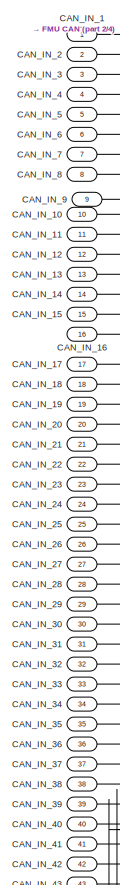
[diagram: root canvas - part 1/4, top left region]
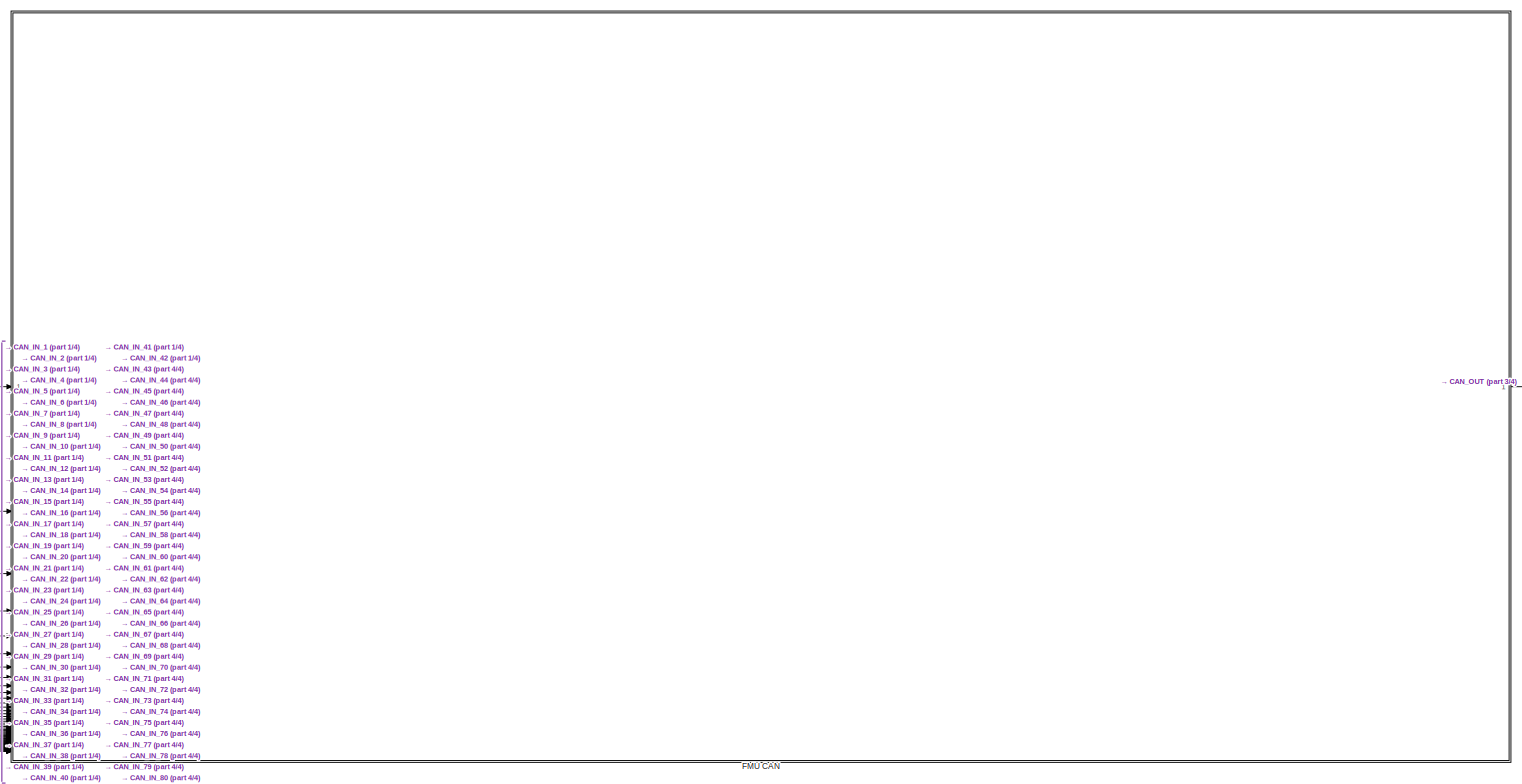
[diagram: root canvas - part 2/4, top center region]
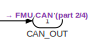
[diagram: root canvas - part 3/4, top right region]
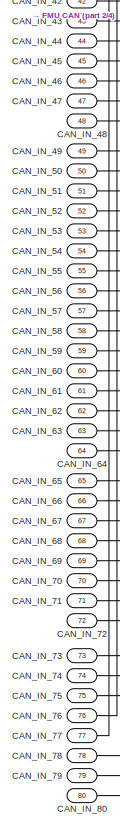
[diagram: root canvas - part 4/4, bottom left region]
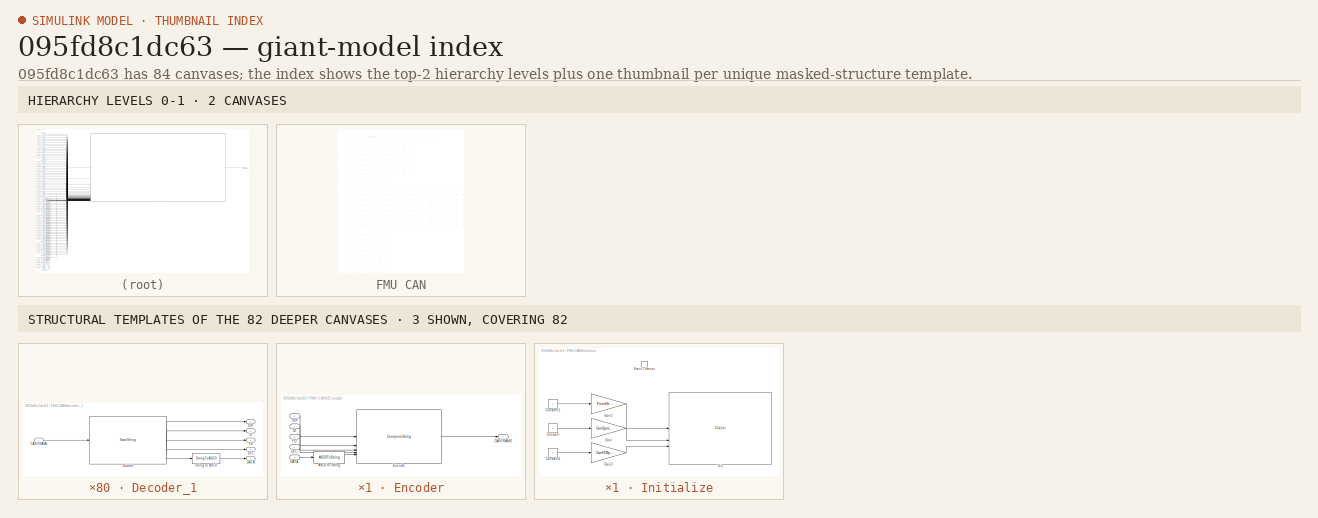
[diagram: thumbnail index - top-2 hierarchy levels (2 canvases) + 3 structural-template representatives of the remaining 82 canvases]
MODEL slx_095fd8c1dc63
KIND model
CONFIG AbsTol = auto
CONFIG EnableMultiTasking = off
CONFIG FixedStep = 0.00001
CONFIG MaxStep = auto
CONFIG MinStep = auto
CONFIG RelTol = 1e-3
CONFIG SampleTimeConstraint = Unconstrained
CONFIG SolverName = FixedStepDiscrete
CONFIG StartTime = 0.0
CONFIG StopTime = 2
BLOCK [Inport] CAN_IN_1
BLOCK [Inport] CAN_IN_10
  Port = 10
BLOCK [Inport] CAN_IN_11
  Port = 11
BLOCK [Inport] CAN_IN_12
  Port = 12
BLOCK [Inport] CAN_IN_13
  Port = 13
BLOCK [Inport] CAN_IN_14
  Port = 14
BLOCK [Inport] CAN_IN_15
  Port = 15
BLOCK [Inport] CAN_IN_16
  Port = 16
BLOCK [Inport] CAN_IN_17
  Port = 17
BLOCK [Inport] CAN_IN_18
  Port = 18
BLOCK [Inport] CAN_IN_19
  Port = 19
BLOCK [Inport] CAN_IN_2
  Port = 2
BLOCK [Inport] CAN_IN_20
  Port = 20
BLOCK [Inport] CAN_IN_21
  Port = 21
BLOCK [Inport] CAN_IN_22
  Port = 22
BLOCK [Inport] CAN_IN_23
  Port = 23
BLOCK [Inport] CAN_IN_24
  Port = 24
BLOCK [Inport] CAN_IN_25
  Port = 25
BLOCK [Inport] CAN_IN_26
  Port = 26
BLOCK [Inport] CAN_IN_27
  Port = 27
BLOCK [Inport] CAN_IN_28
  Port = 28
BLOCK [Inport] CAN_IN_29
  Port = 29
BLOCK [Inport] CAN_IN_3
  Port = 3
BLOCK [Inport] CAN_IN_30
  Port = 30
BLOCK [Inport] CAN_IN_31
  Port = 31
BLOCK [Inport] CAN_IN_32
  Port = 32
BLOCK [Inport] CAN_IN_33
  Port = 33
BLOCK [Inport] CAN_IN_34
  Port = 34
BLOCK [Inport] CAN_IN_35
  Port = 35
BLOCK [Inport] CAN_IN_36
  Port = 36
BLOCK [Inport] CAN_IN_37
  Port = 37
BLOCK [Inport] CAN_IN_38
  Port = 38
BLOCK [Inport] CAN_IN_39
  Port = 39
BLOCK [Inport] CAN_IN_4
  Port = 4
BLOCK [Inport] CAN_IN_40
  Port = 40
BLOCK [Inport] CAN_IN_41
  Port = 41
BLOCK [Inport] CAN_IN_42
  Port = 42
BLOCK [Inport] CAN_IN_43
  Port = 43
BLOCK [Inport] CAN_IN_44
  Port = 44
BLOCK [Inport] CAN_IN_45
  Port = 45
BLOCK [Inport] CAN_IN_46
  Port = 46
BLOCK [Inport] CAN_IN_47
  Port = 47
BLOCK [Inport] CAN_IN_48
  Port = 48
BLOCK [Inport] CAN_IN_49
  Port = 49
BLOCK [Inport] CAN_IN_5
  Port = 5
BLOCK [Inport] CAN_IN_50
  Port = 50
BLOCK [Inport] CAN_IN_51
  Port = 51
BLOCK [Inport] CAN_IN_52
  Port = 52
BLOCK [Inport] CAN_IN_53
  Port = 53
BLOCK [Inport] CAN_IN_54
  Port = 54
BLOCK [Inport] CAN_IN_55
  Port = 55
BLOCK [Inport] CAN_IN_56
  Port = 56
BLOCK [Inport] CAN_IN_57
  Port = 57
BLOCK [Inport] CAN_IN_58
  Port = 58
BLOCK [Inport] CAN_IN_59
  Port = 59
BLOCK [Inport] CAN_IN_6
  Port = 6
BLOCK [Inport] CAN_IN_60
  Port = 60
BLOCK [Inport] CAN_IN_61
  Port = 61
BLOCK [Inport] CAN_IN_62
  Port = 62
BLOCK [Inport] CAN_IN_63
  Port = 63
BLOCK [Inport] CAN_IN_64
  Port = 64
BLOCK [Inport] CAN_IN_65
  Port = 65
BLOCK [Inport] CAN_IN_66
  Port = 66
BLOCK [Inport] CAN_IN_67
  Port = 67
BLOCK [Inport] CAN_IN_68
  Port = 68
BLOCK [Inport] CAN_IN_69
  Port = 69
BLOCK [Inport] CAN_IN_7
  Port = 7
BLOCK [Inport] CAN_IN_70
  Port = 70
BLOCK [Inport] CAN_IN_71
  Port = 71
BLOCK [Inport] CAN_IN_72
  Port = 72
BLOCK [Inport] CAN_IN_73
  Port = 73
BLOCK [Inport] CAN_IN_74
  Port = 74
BLOCK [Inport] CAN_IN_75
  Port = 75
BLOCK [Inport] CAN_IN_76
  Port = 76
BLOCK [Inport] CAN_IN_77
  Port = 77
BLOCK [Inport] CAN_IN_78
  Port = 78
BLOCK [Inport] CAN_IN_79
  Port = 79
BLOCK [Inport] CAN_IN_8
  Port = 8
BLOCK [Inport] CAN_IN_80
  Port = 80
BLOCK [Inport] CAN_IN_9
  Port = 9
BLOCK [Outport] CAN_OUT
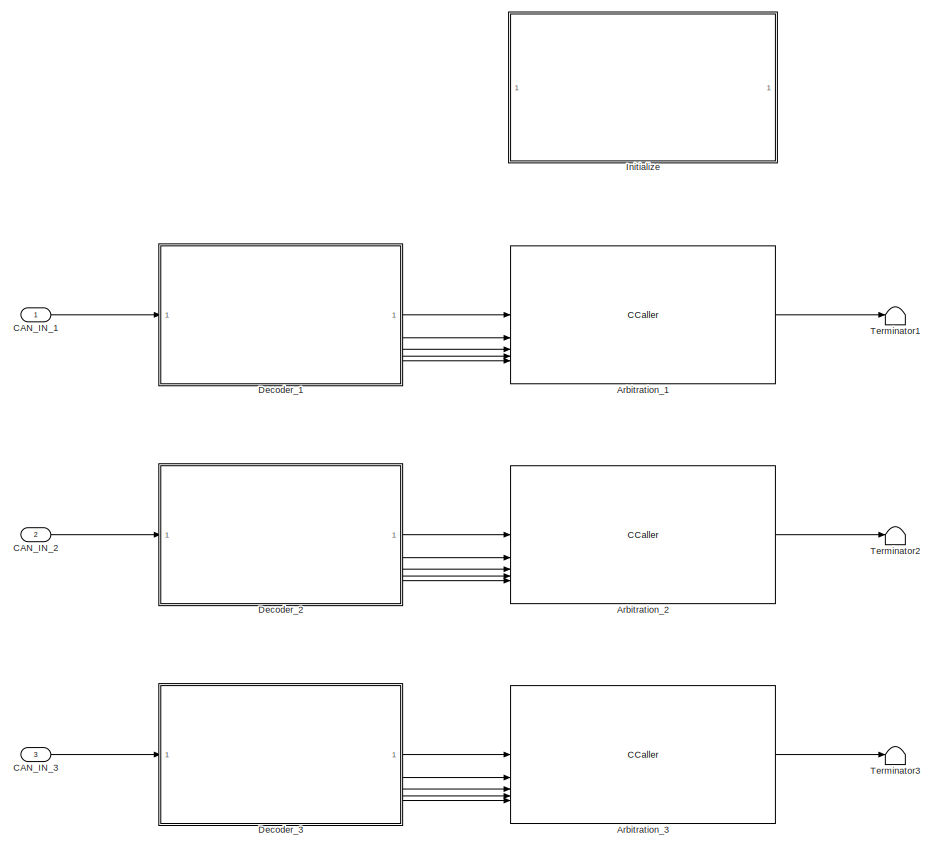
[diagram: FMU CAN - part 1/20, top center region]
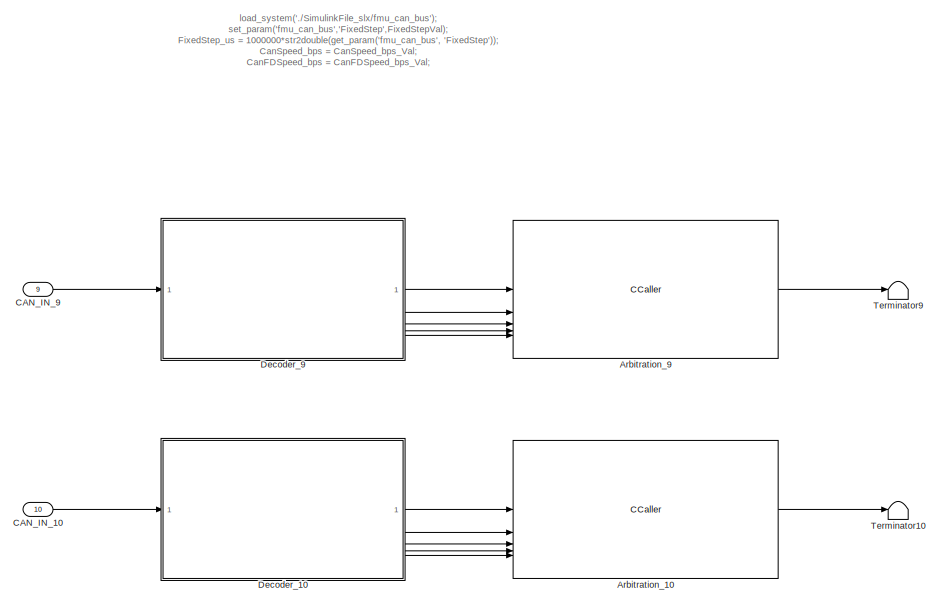
[diagram: FMU CAN - part 2/20, top left region]
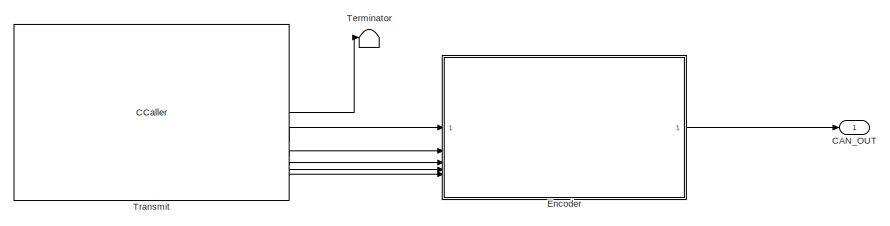
[diagram: FMU CAN - part 3/20, top right region]
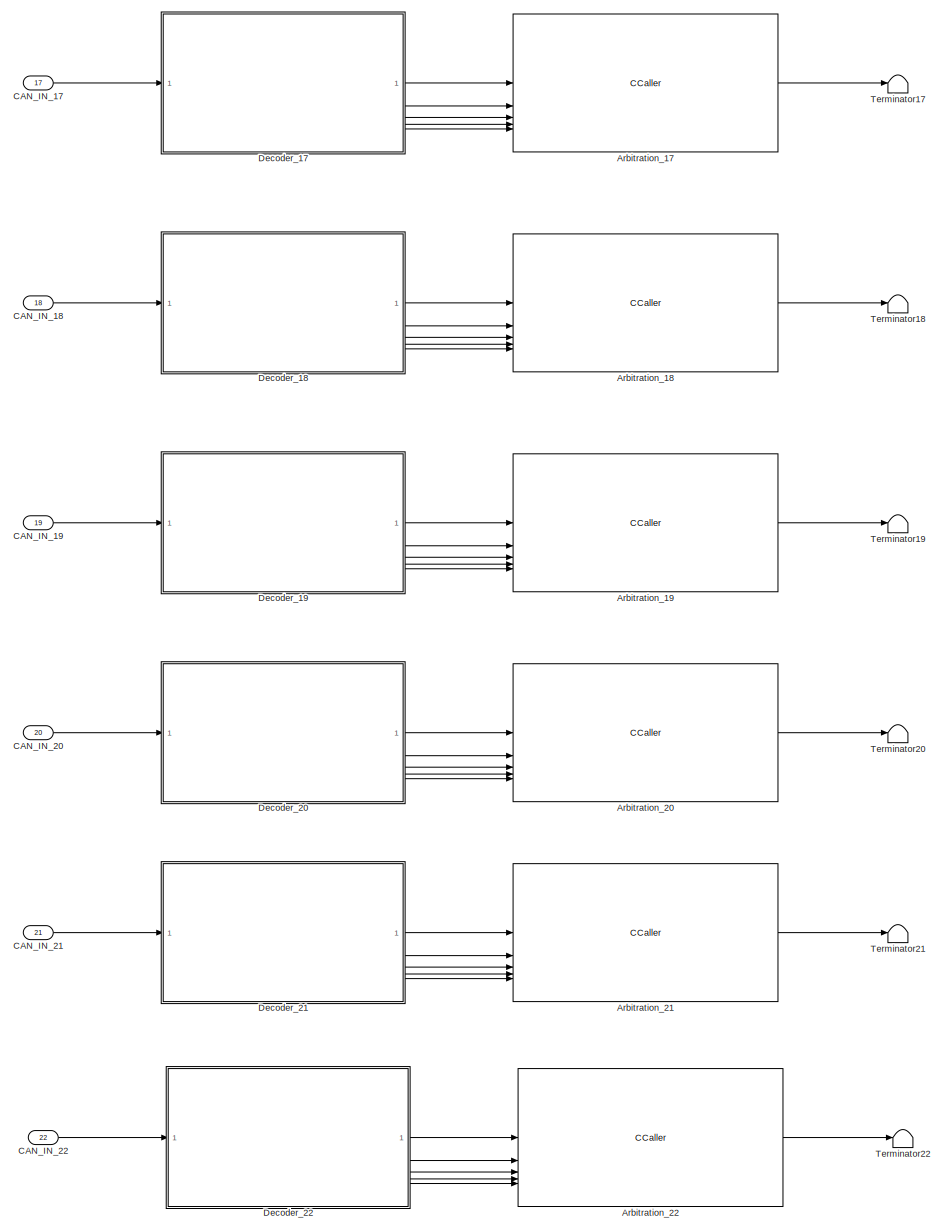
[diagram: FMU CAN - part 4/20, top left region]
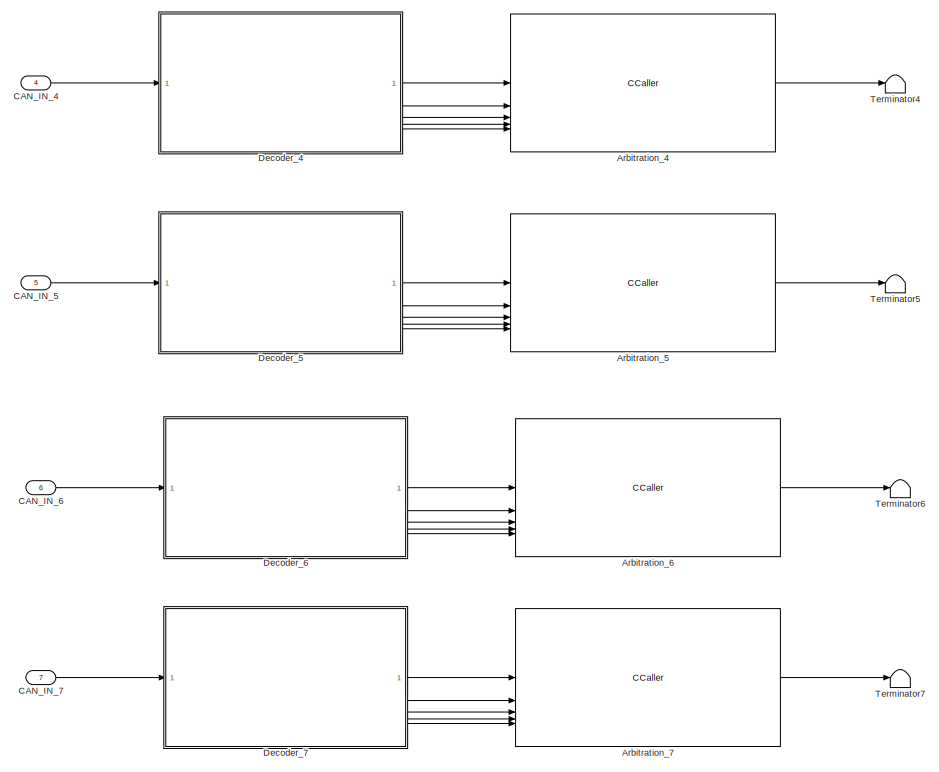
[diagram: FMU CAN - part 5/20, top center region]
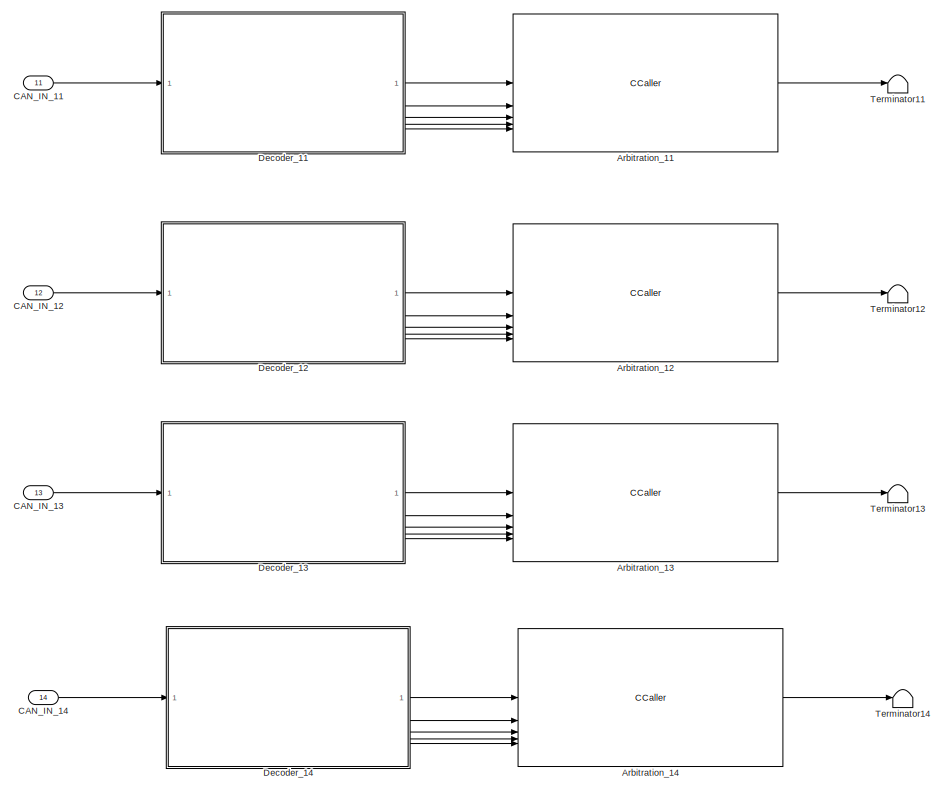
[diagram: FMU CAN - part 6/20, top left region]
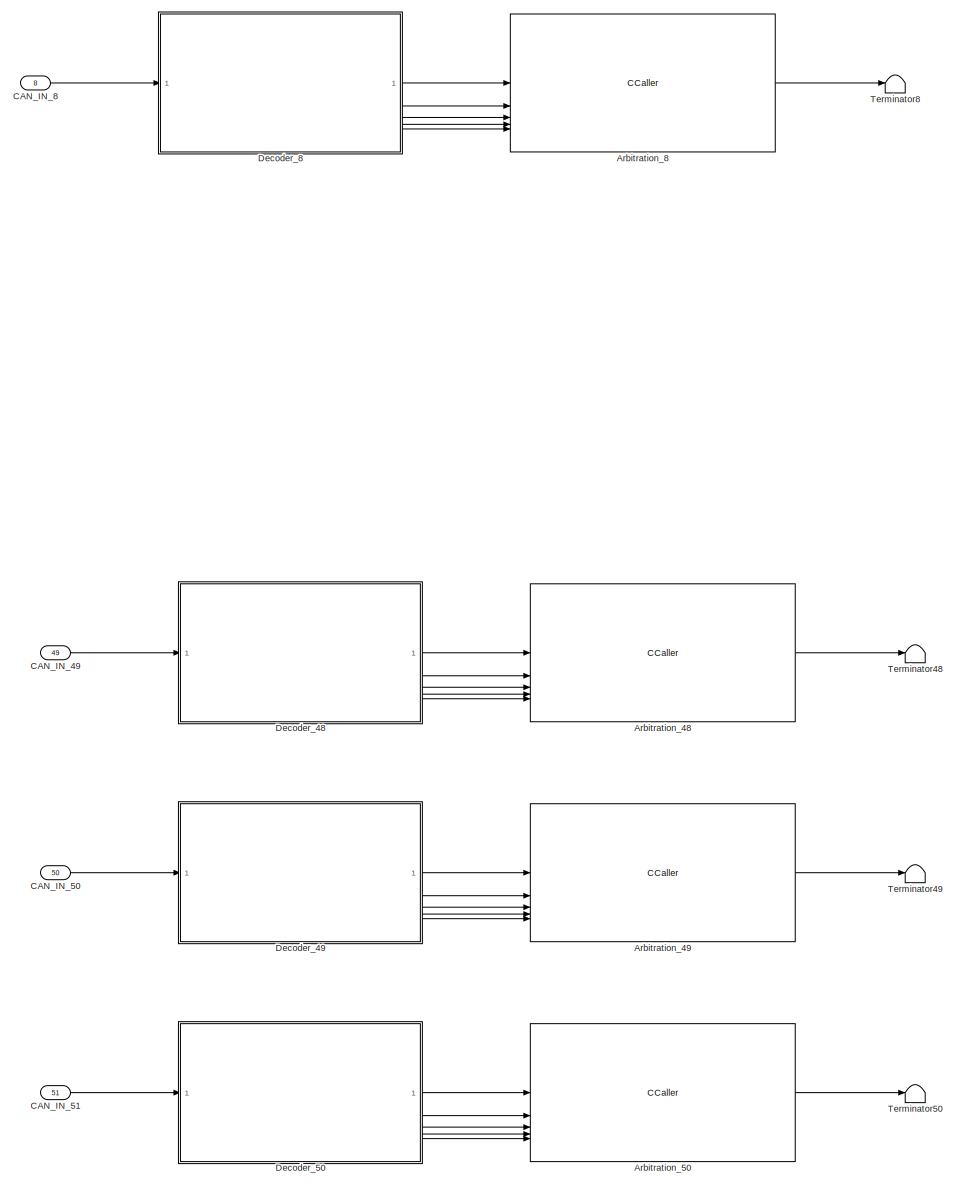
[diagram: FMU CAN - part 7/20, central region]
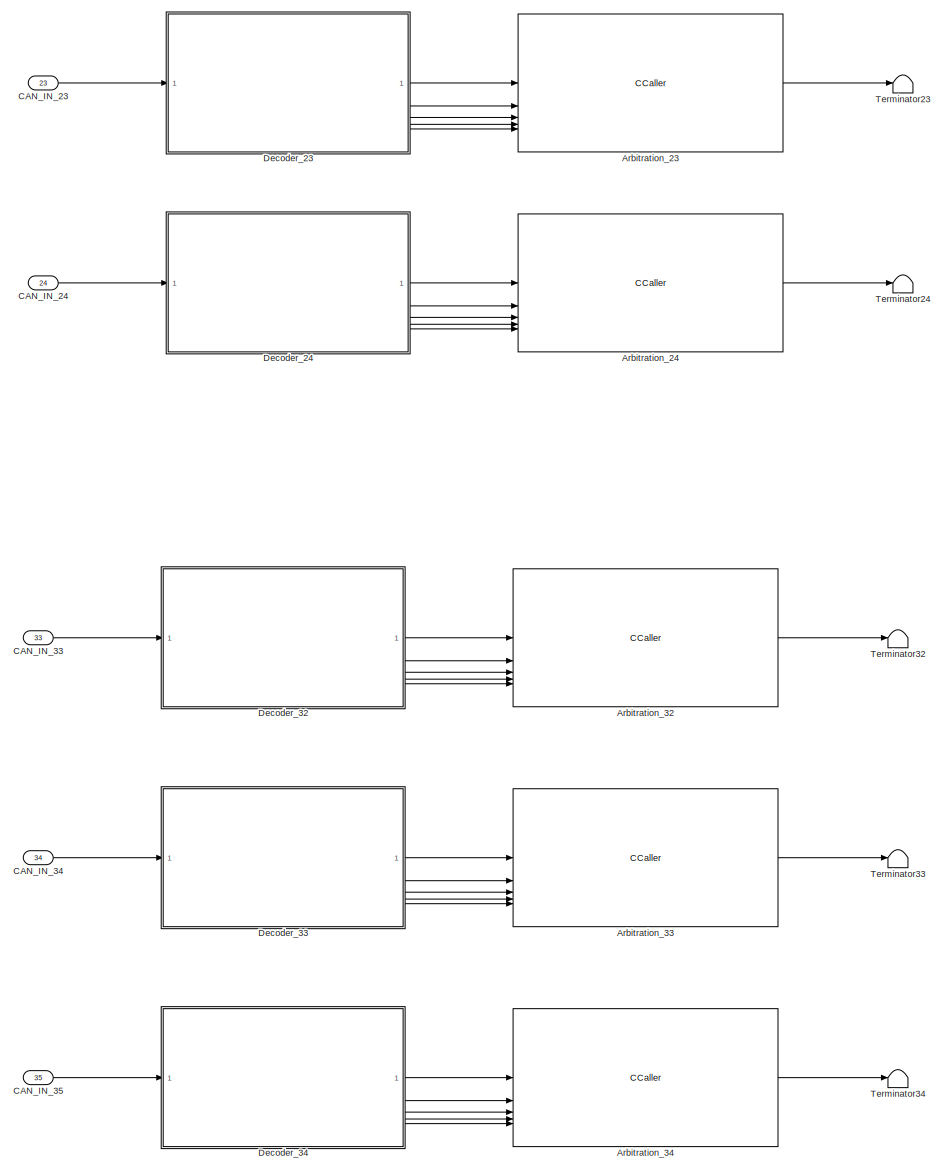
[diagram: FMU CAN - part 8/20, middle left region]
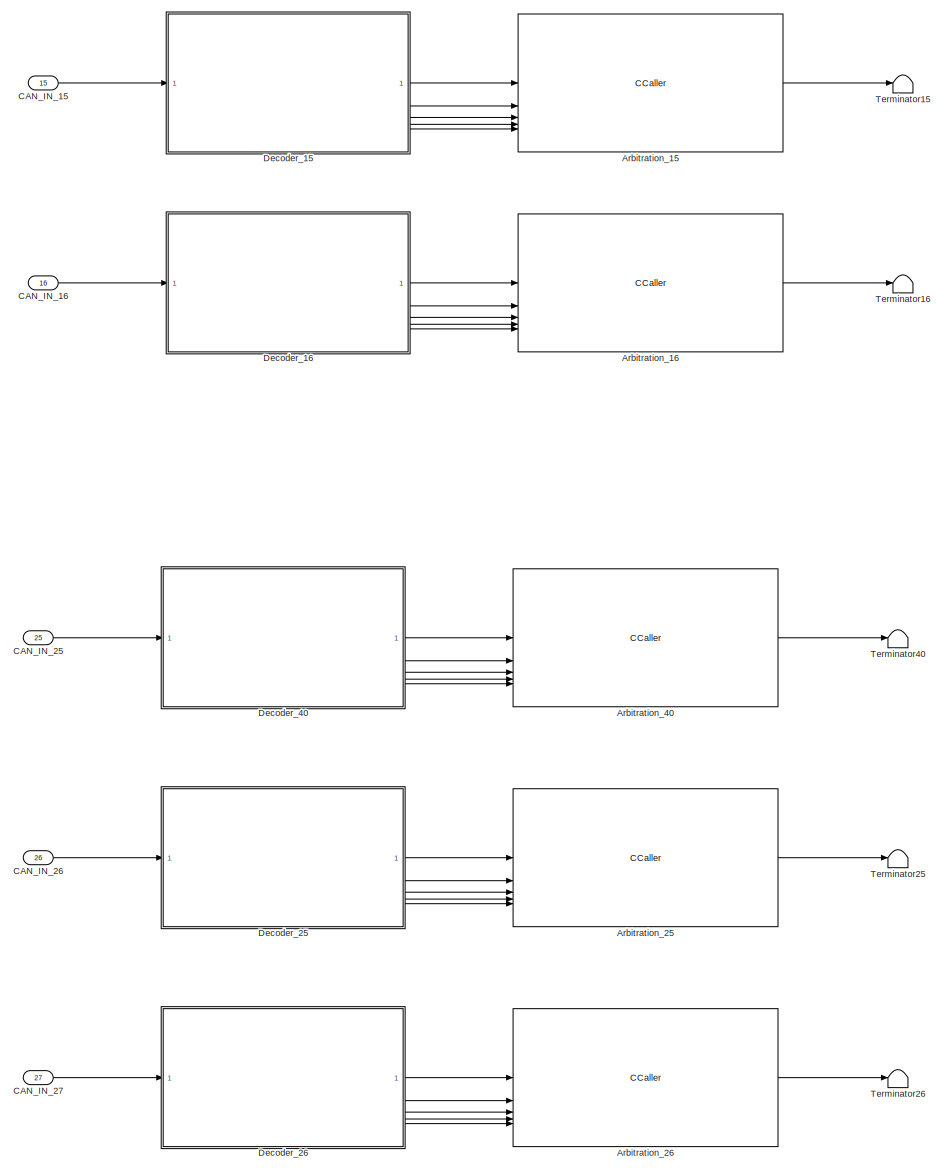
[diagram: FMU CAN - part 9/20, middle left region]
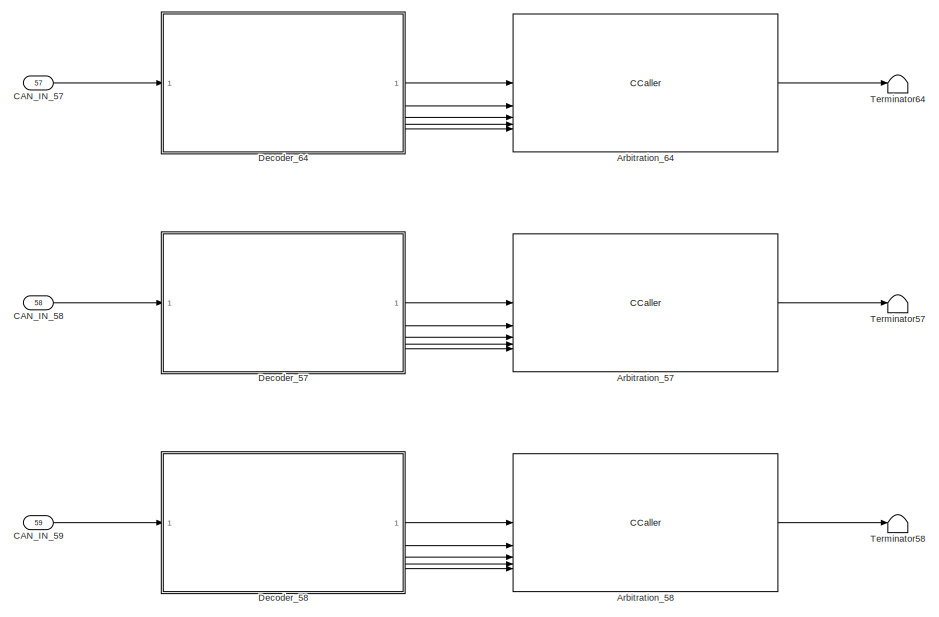
[diagram: FMU CAN - part 10/20, middle right region]
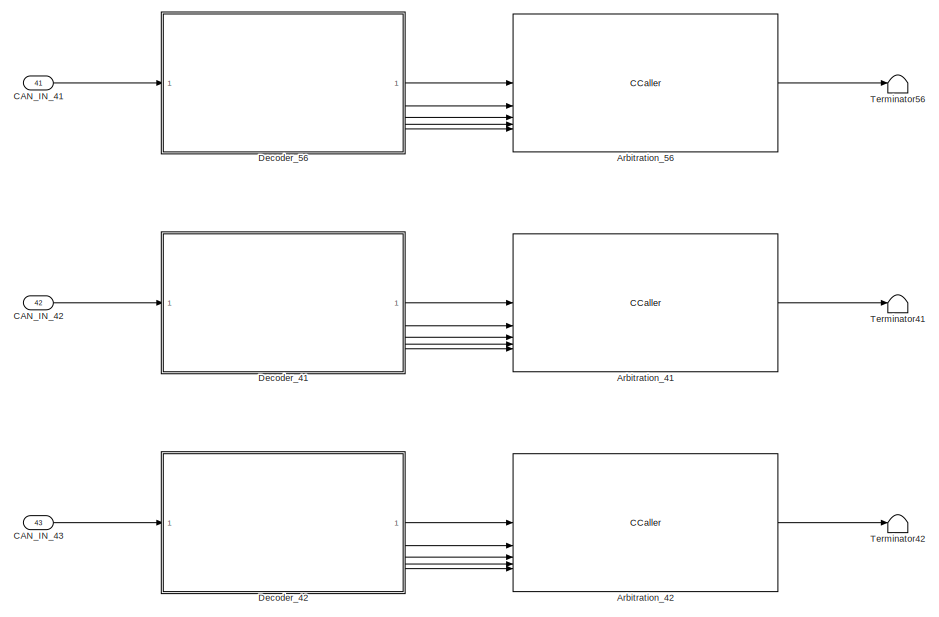
[diagram: FMU CAN - part 11/20, middle right region]
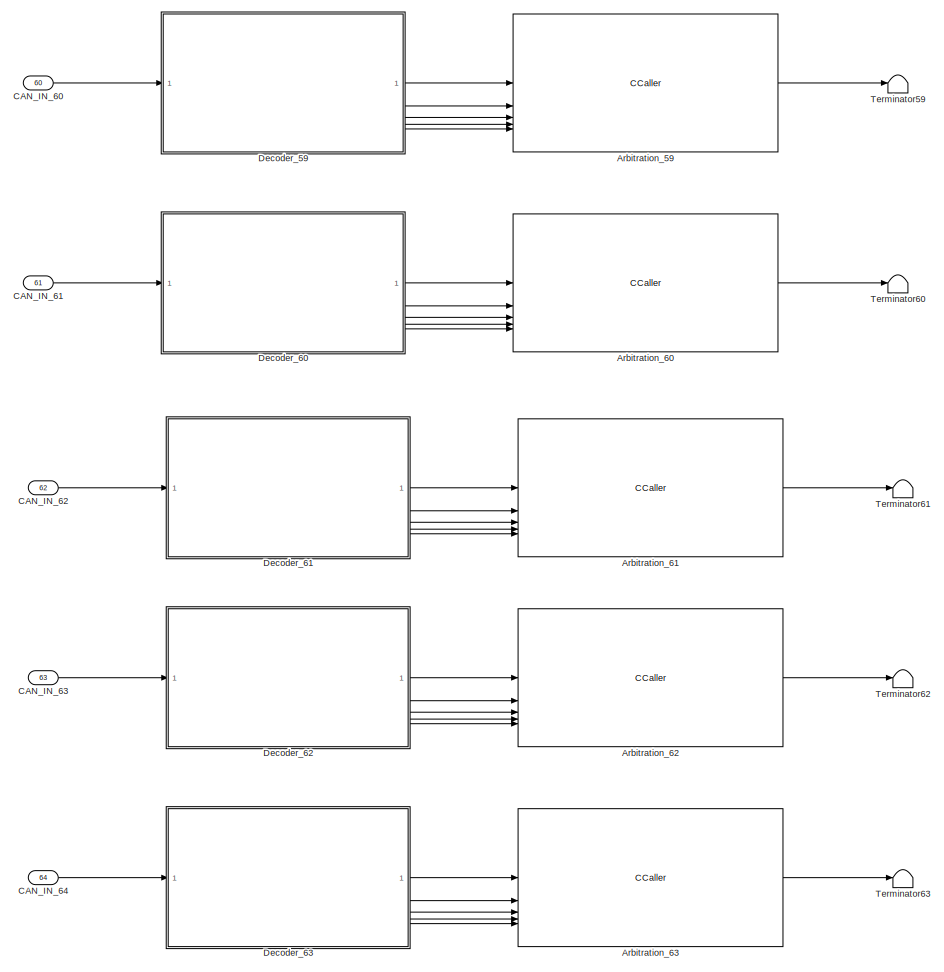
[diagram: FMU CAN - part 12/20, middle right region]
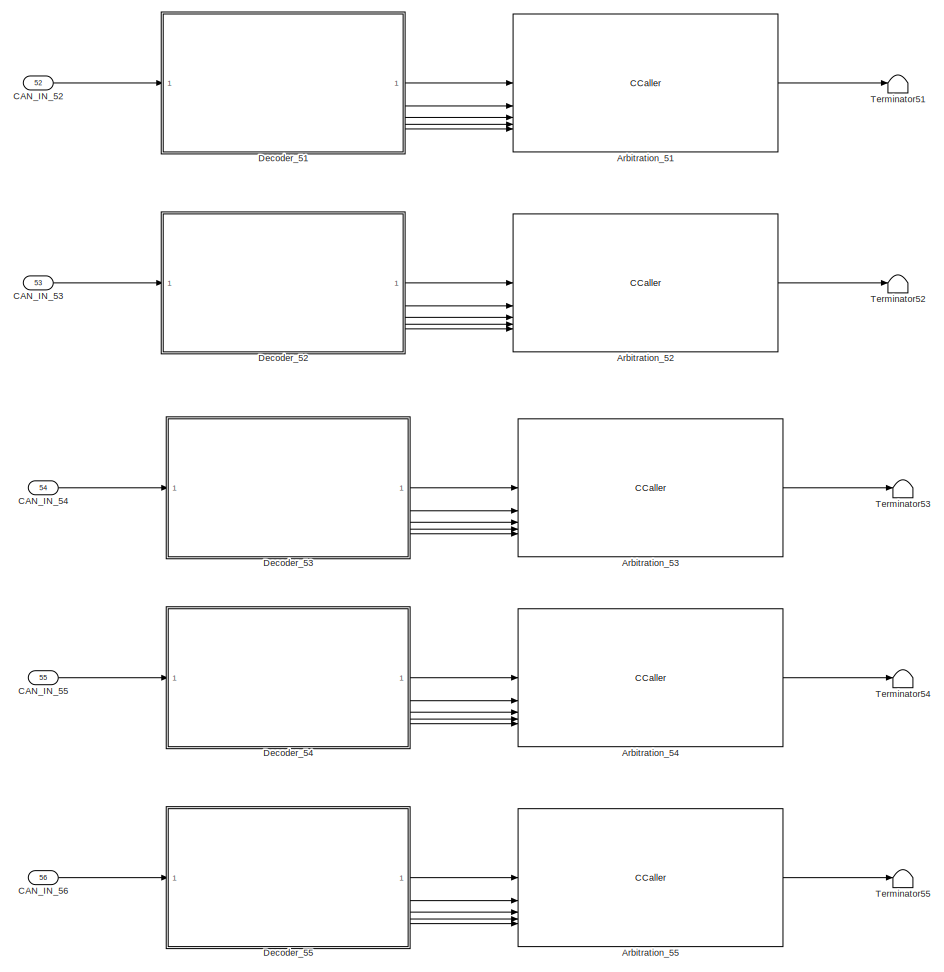
[diagram: FMU CAN - part 13/20, central region]
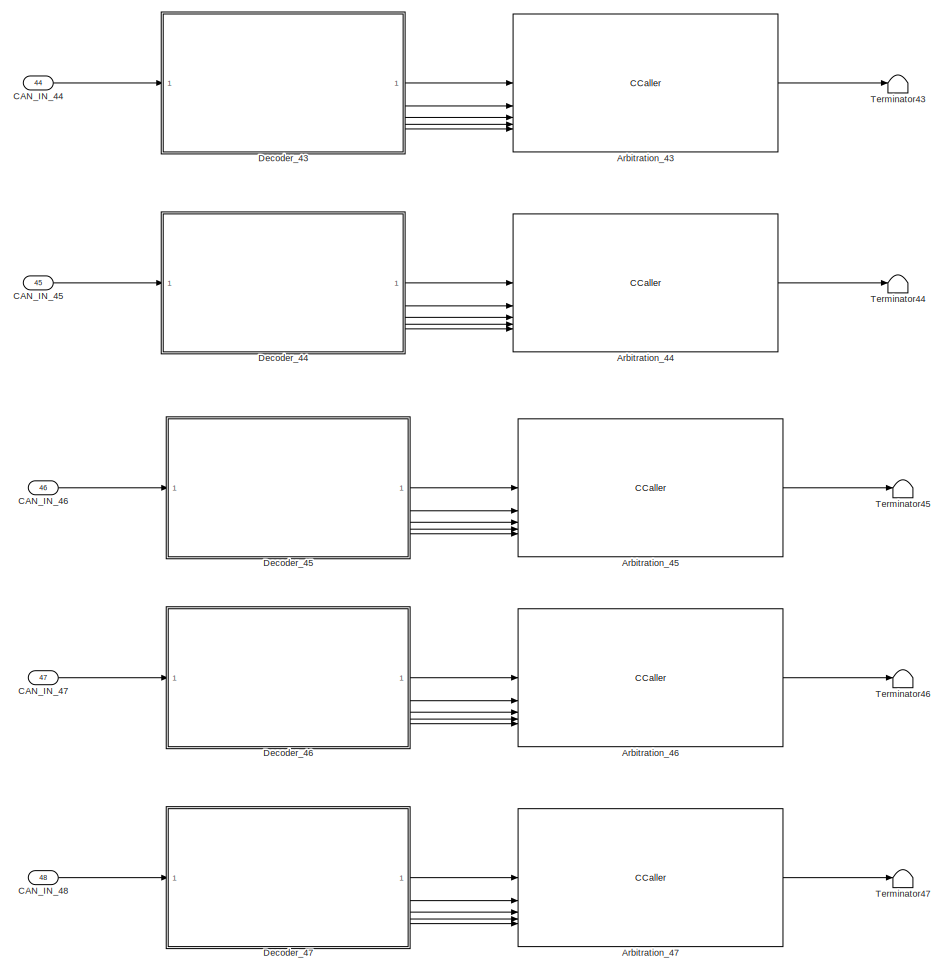
[diagram: FMU CAN - part 14/20, middle right region]
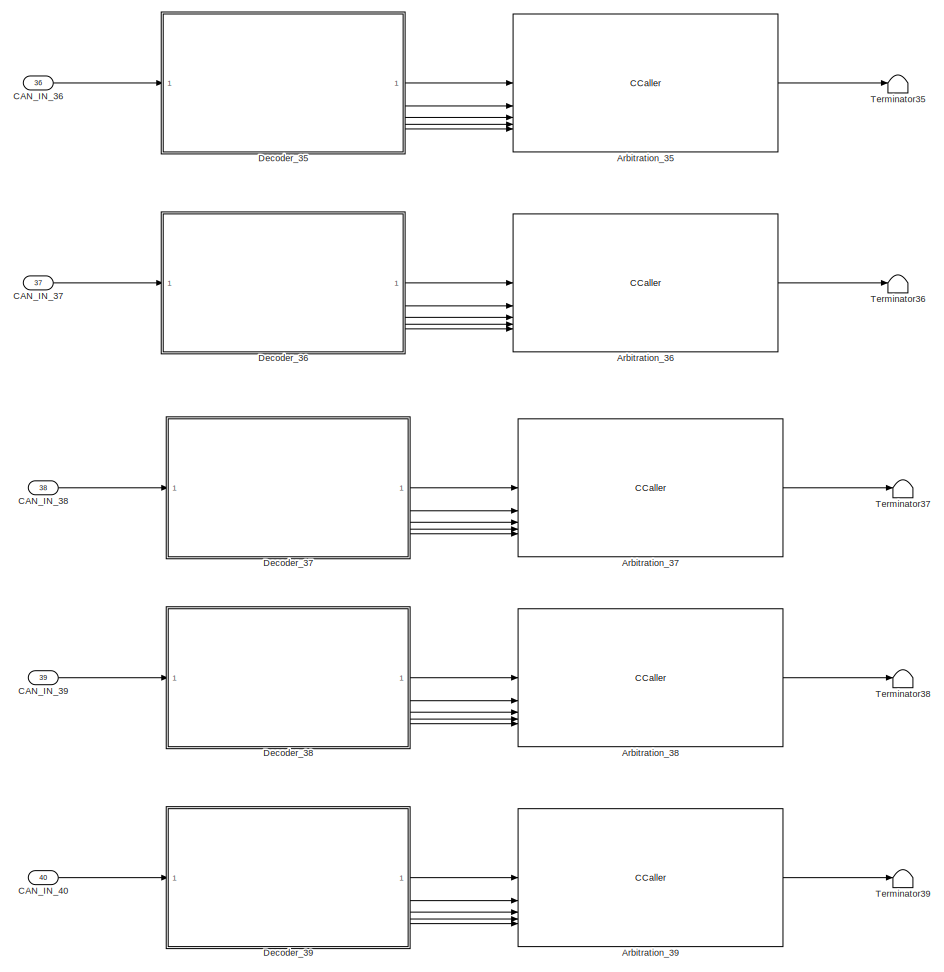
[diagram: FMU CAN - part 15/20, middle left region]
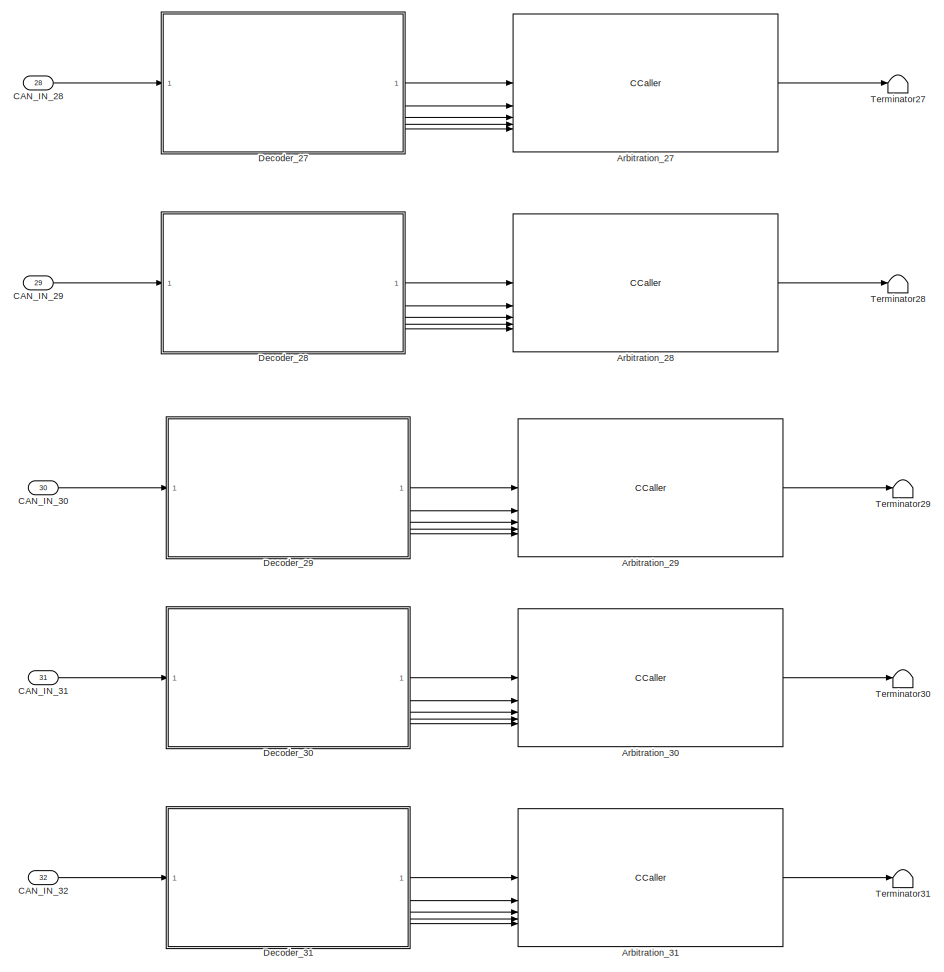
[diagram: FMU CAN - part 16/20, middle left region]
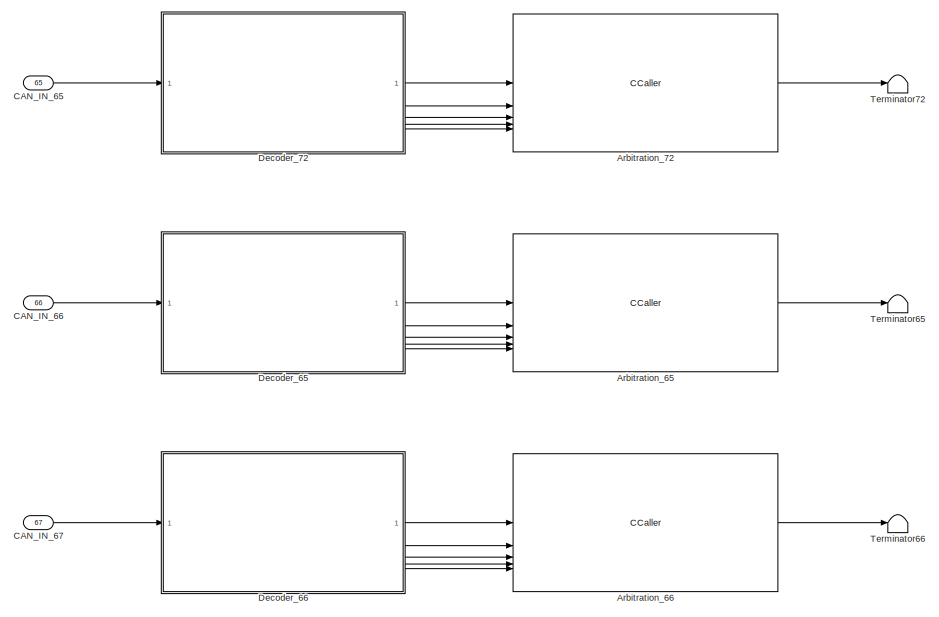
[diagram: FMU CAN - part 17/20, bottom left region]
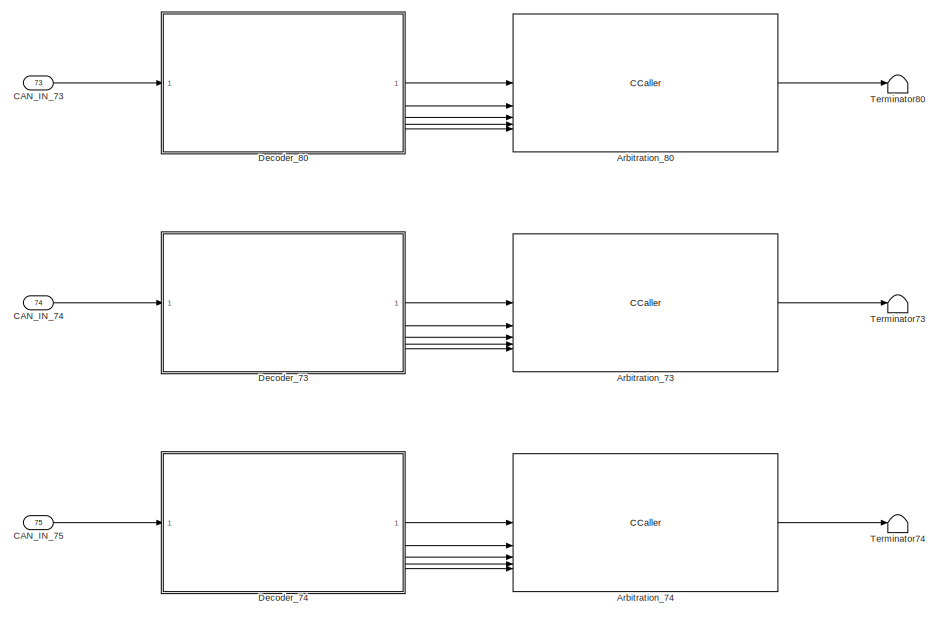
[diagram: FMU CAN - part 18/20, bottom left region]
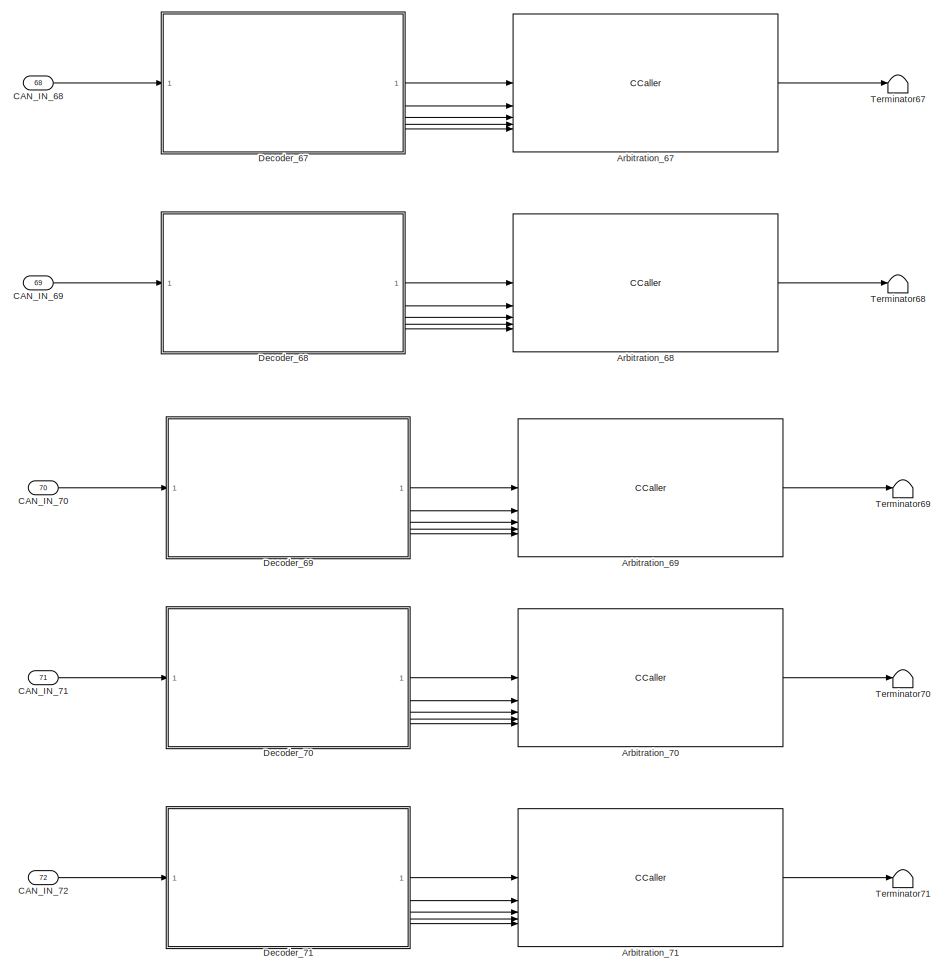
[diagram: FMU CAN - part 19/20, bottom left region]
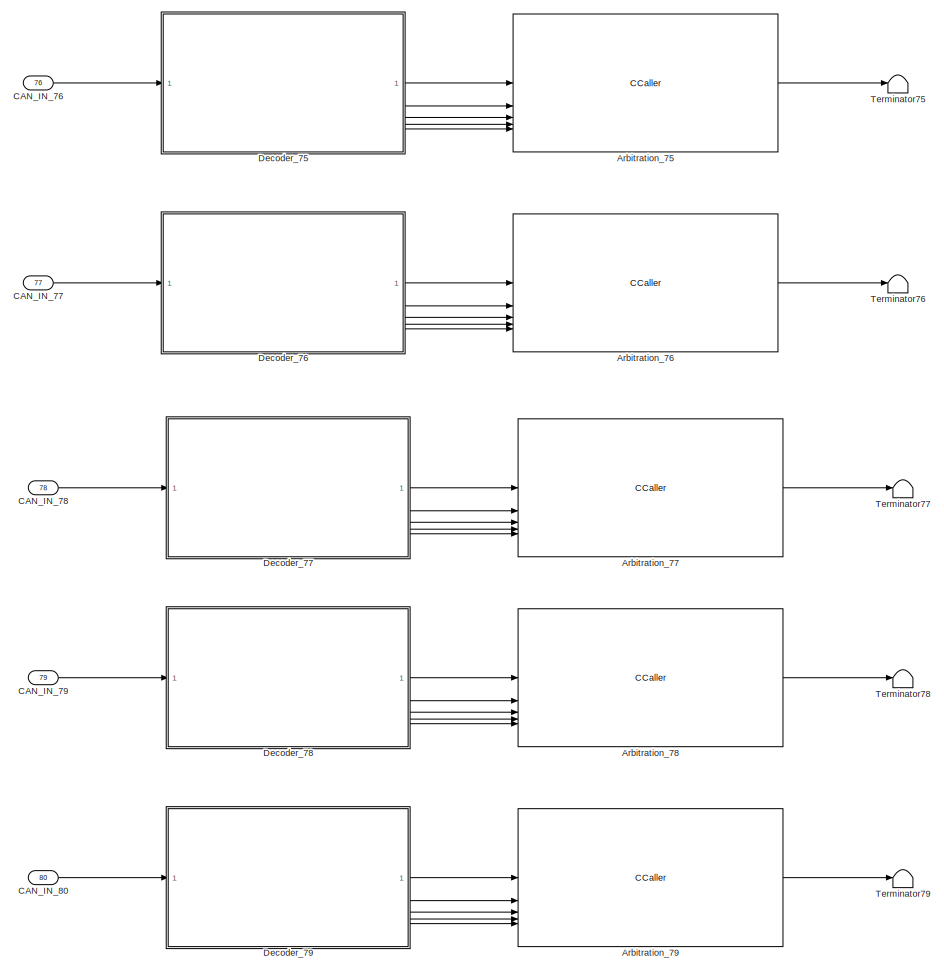
[diagram: FMU CAN - part 20/20, bottom left region]
BLOCK [SubSystem] FMU CAN
BLOCK [CCaller] FMU CAN/Arbitration_1
  FunctionName = fmu_can_arbitration
  PortSpecificationStruct = %)30     .    . H   8    (     @         %    "     8    !     0         %  0 "0    $    _    07)G3F%M90  4&]R=$YA;64 4V-O<&4     26YD97@     5'EP90      4VEZ90      27-';&]B86P   X    P    !@    @    $          4    (     0    ,    !         !   P!O=70 #@   #     &    "     0         !0    @    !     P    $         $  # &]U=  .    .     8    (    !          %    "     $    &     0         0    !@...<+3101ch>  <repeated x81 — deduplicated; at blocks: Arbitration_1, Arbitration_10, Arbitration_11, Arbitration_12, Arbitration_13, Arbitration_14, Arbitration_15, Arbitration_16, Arbitration_17, Arbitration_18, Arbitration_19, Arbitration_2, Arbitration_20, Arbitration_21, Arbitration_22, Arbitration_23, +65 more>
  Priority = 1
BLOCK [CCaller] FMU CAN/Arbitration_10
  FunctionName = fmu_can_arbitration
  Priority = 1
BLOCK [CCaller] FMU CAN/Arbitration_11
  FunctionName = fmu_can_arbitration
  Priority = 1
BLOCK [CCaller] FMU CAN/Arbitration_12
  FunctionName = fmu_can_arbitration
  Priority = 1
BLOCK [CCaller] FMU CAN/Arbitration_13
  FunctionName = fmu_can_arbitration
  Priority = 1
BLOCK [CCaller] FMU CAN/Arbitration_14
  FunctionName = fmu_can_arbitration
  Priority = 1
BLOCK [CCaller] FMU CAN/Arbitration_15
  FunctionName = fmu_can_arbitration
  Priority = 1
BLOCK [CCaller] FMU CAN/Arbitration_16
  FunctionName = fmu_can_arbitration
  Priority = 1
BLOCK [CCaller] FMU CAN/Arbitration_17
  FunctionName = fmu_can_arbitration
  Priority = 1
BLOCK [CCaller] FMU CAN/Arbitration_18
  FunctionName = fmu_can_arbitration
  Priority = 1
BLOCK [CCaller] FMU CAN/Arbitration_19
  FunctionName = fmu_can_arbitration
  Priority = 1
BLOCK [CCaller] FMU CAN/Arbitration_2
  FunctionName = fmu_can_arbitration
  Priority = 1
BLOCK [CCaller] FMU CAN/Arbitration_20
  FunctionName = fmu_can_arbitration
  Priority = 1
BLOCK [CCaller] FMU CAN/Arbitration_21
  FunctionName = fmu_can_arbitration
  Priority = 1
BLOCK [CCaller] FMU CAN/Arbitration_22
  FunctionName = fmu_can_arbitration
  Priority = 1
BLOCK [CCaller] FMU CAN/Arbitration_23
  FunctionName = fmu_can_arbitration
  Priority = 1
BLOCK [CCaller] FMU CAN/Arbitration_24
  FunctionName = fmu_can_arbitration
  Priority = 1
BLOCK [CCaller] FMU CAN/Arbitration_25
  FunctionName = fmu_can_arbitration
  Priority = 1
BLOCK [CCaller] FMU CAN/Arbitration_26
  FunctionName = fmu_can_arbitration
  Priority = 1
BLOCK [CCaller] FMU CAN/Arbitration_27
  FunctionName = fmu_can_arbitration
  Priority = 1
BLOCK [CCaller] FMU CAN/Arbitration_28
  FunctionName = fmu_can_arbitration
  Priority = 1
BLOCK [CCaller] FMU CAN/Arbitration_29
  FunctionName = fmu_can_arbitration
  Priority = 1
BLOCK [CCaller] FMU CAN/Arbitration_3
  FunctionName = fmu_can_arbitration
  Priority = 1
BLOCK [CCaller] FMU CAN/Arbitration_30
  FunctionName = fmu_can_arbitration
  Priority = 1
BLOCK [CCaller] FMU CAN/Arbitration_31
  FunctionName = fmu_can_arbitration
  Priority = 1
BLOCK [CCaller] FMU CAN/Arbitration_32
  FunctionName = fmu_can_arbitration
  Priority = 1
BLOCK [CCaller] FMU CAN/Arbitration_33
  FunctionName = fmu_can_arbitration
  Priority = 1
BLOCK [CCaller] FMU CAN/Arbitration_34
  FunctionName = fmu_can_arbitration
  Priority = 1
BLOCK [CCaller] FMU CAN/Arbitration_35
  FunctionName = fmu_can_arbitration
  Priority = 1
BLOCK [CCaller] FMU CAN/Arbitration_36
  FunctionName = fmu_can_arbitration
  Priority = 1
BLOCK [CCaller] FMU CAN/Arbitration_37
  FunctionName = fmu_can_arbitration
  Priority = 1
BLOCK [CCaller] FMU CAN/Arbitration_38
  FunctionName = fmu_can_arbitration
  Priority = 1
BLOCK [CCaller] FMU CAN/Arbitration_39
  FunctionName = fmu_can_arbitration
  Priority = 1
BLOCK [CCaller] FMU CAN/Arbitration_4
  FunctionName = fmu_can_arbitration
  Priority = 1
BLOCK [CCaller] FMU CAN/Arbitration_40
  FunctionName = fmu_can_arbitration
  Priority = 1
BLOCK [CCaller] FMU CAN/Arbitration_41
  FunctionName = fmu_can_arbitration
  Priority = 1
BLOCK [CCaller] FMU CAN/Arbitration_42
  FunctionName = fmu_can_arbitration
  Priority = 1
BLOCK [CCaller] FMU CAN/Arbitration_43
  FunctionName = fmu_can_arbitration
  Priority = 1
BLOCK [CCaller] FMU CAN/Arbitration_44
  FunctionName = fmu_can_arbitration
  Priority = 1
BLOCK [CCaller] FMU CAN/Arbitration_45
  FunctionName = fmu_can_arbitration
  Priority = 1
BLOCK [CCaller] FMU CAN/Arbitration_46
  FunctionName = fmu_can_arbitration
  Priority = 1
BLOCK [CCaller] FMU CAN/Arbitration_47
  FunctionName = fmu_can_arbitration
  Priority = 1
BLOCK [CCaller] FMU CAN/Arbitration_48
  FunctionName = fmu_can_arbitration
  Priority = 1
BLOCK [CCaller] FMU CAN/Arbitration_49
  FunctionName = fmu_can_arbitration
  Priority = 1
BLOCK [CCaller] FMU CAN/Arbitration_5
  FunctionName = fmu_can_arbitration
  Priority = 1
BLOCK [CCaller] FMU CAN/Arbitration_50
  FunctionName = fmu_can_arbitration
  Priority = 1
BLOCK [CCaller] FMU CAN/Arbitration_51
  FunctionName = fmu_can_arbitration
  Priority = 1
BLOCK [CCaller] FMU CAN/Arbitration_52
  FunctionName = fmu_can_arbitration
  Priority = 1
BLOCK [CCaller] FMU CAN/Arbitration_53
  FunctionName = fmu_can_arbitration
  Priority = 1
BLOCK [CCaller] FMU CAN/Arbitration_54
  FunctionName = fmu_can_arbitration
  Priority = 1
BLOCK [CCaller] FMU CAN/Arbitration_55
  FunctionName = fmu_can_arbitration
  Priority = 1
BLOCK [CCaller] FMU CAN/Arbitration_56
  FunctionName = fmu_can_arbitration
  Priority = 1
BLOCK [CCaller] FMU CAN/Arbitration_57
  FunctionName = fmu_can_arbitration
  Priority = 1
BLOCK [CCaller] FMU CAN/Arbitration_58
  FunctionName = fmu_can_arbitration
  Priority = 1
BLOCK [CCaller] FMU CAN/Arbitration_59
  FunctionName = fmu_can_arbitration
  Priority = 1
BLOCK [CCaller] FMU CAN/Arbitration_6
  FunctionName = fmu_can_arbitration
  Priority = 1
BLOCK [CCaller] FMU CAN/Arbitration_60
  FunctionName = fmu_can_arbitration
  Priority = 1
BLOCK [CCaller] FMU CAN/Arbitration_61
  FunctionName = fmu_can_arbitration
  Priority = 1
BLOCK [CCaller] FMU CAN/Arbitration_62
  FunctionName = fmu_can_arbitration
  Priority = 1
BLOCK [CCaller] FMU CAN/Arbitration_63
  FunctionName = fmu_can_arbitration
  Priority = 1
BLOCK [CCaller] FMU CAN/Arbitration_64
  FunctionName = fmu_can_arbitration
  Priority = 1
BLOCK [CCaller] FMU CAN/Arbitration_65
  FunctionName = fmu_can_arbitration
  Priority = 1
BLOCK [CCaller] FMU CAN/Arbitration_66
  FunctionName = fmu_can_arbitration
  Priority = 1
BLOCK [CCaller] FMU CAN/Arbitration_67
  FunctionName = fmu_can_arbitration
  Priority = 1
BLOCK [CCaller] FMU CAN/Arbitration_68
  FunctionName = fmu_can_arbitration
  Priority = 1
BLOCK [CCaller] FMU CAN/Arbitration_69
  FunctionName = fmu_can_arbitration
  Priority = 1
BLOCK [CCaller] FMU CAN/Arbitration_7
  FunctionName = fmu_can_arbitration
  Priority = 1
BLOCK [CCaller] FMU CAN/Arbitration_70
  FunctionName = fmu_can_arbitration
  Priority = 1
BLOCK [CCaller] FMU CAN/Arbitration_71
  FunctionName = fmu_can_arbitration
  Priority = 1
BLOCK [CCaller] FMU CAN/Arbitration_72
  FunctionName = fmu_can_arbitration
  Priority = 1
BLOCK [CCaller] FMU CAN/Arbitration_73
  FunctionName = fmu_can_arbitration
  Priority = 1
BLOCK [CCaller] FMU CAN/Arbitration_74
  FunctionName = fmu_can_arbitration
  Priority = 1
BLOCK [CCaller] FMU CAN/Arbitration_75
  FunctionName = fmu_can_arbitration
  Priority = 1
BLOCK [CCaller] FMU CAN/Arbitration_76
  FunctionName = fmu_can_arbitration
  Priority = 1
BLOCK [CCaller] FMU CAN/Arbitration_77
  FunctionName = fmu_can_arbitration
  Priority = 1
BLOCK [CCaller] FMU CAN/Arbitration_78
  FunctionName = fmu_can_arbitration
  Priority = 1
BLOCK [CCaller] FMU CAN/Arbitration_79
  FunctionName = fmu_can_arbitration
  Priority = 1
BLOCK [CCaller] FMU CAN/Arbitration_8
  FunctionName = fmu_can_arbitration
  Priority = 1
BLOCK [CCaller] FMU CAN/Arbitration_80
  FunctionName = fmu_can_arbitration
  Priority = 1
BLOCK [CCaller] FMU CAN/Arbitration_9
  FunctionName = fmu_can_arbitration
  Priority = 1
BLOCK [Inport] FMU CAN/CAN_IN_1
BLOCK [Inport] FMU CAN/CAN_IN_10
  Port = 10
BLOCK [Inport] FMU CAN/CAN_IN_11
  Port = 11
BLOCK [Inport] FMU CAN/CAN_IN_12
  Port = 12
BLOCK [Inport] FMU CAN/CAN_IN_13
  Port = 13
BLOCK [Inport] FMU CAN/CAN_IN_14
  Port = 14
BLOCK [Inport] FMU CAN/CAN_IN_15
  Port = 15
BLOCK [Inport] FMU CAN/CAN_IN_16
  Port = 16
BLOCK [Inport] FMU CAN/CAN_IN_17
  Port = 17
BLOCK [Inport] FMU CAN/CAN_IN_18
  Port = 18
BLOCK [Inport] FMU CAN/CAN_IN_19
  Port = 19
BLOCK [Inport] FMU CAN/CAN_IN_2
  Port = 2
BLOCK [Inport] FMU CAN/CAN_IN_20
  Port = 20
BLOCK [Inport] FMU CAN/CAN_IN_21
  Port = 21
BLOCK [Inport] FMU CAN/CAN_IN_22
  Port = 22
BLOCK [Inport] FMU CAN/CAN_IN_23
  Port = 23
BLOCK [Inport] FMU CAN/CAN_IN_24
  Port = 24
BLOCK [Inport] FMU CAN/CAN_IN_25
  Port = 25
BLOCK [Inport] FMU CAN/CAN_IN_26
  Port = 26
BLOCK [Inport] FMU CAN/CAN_IN_27
  Port = 27
BLOCK [Inport] FMU CAN/CAN_IN_28
  Port = 28
BLOCK [Inport] FMU CAN/CAN_IN_29
  Port = 29
BLOCK [Inport] FMU CAN/CAN_IN_3
  Port = 3
BLOCK [Inport] FMU CAN/CAN_IN_30
  Port = 30
BLOCK [Inport] FMU CAN/CAN_IN_31
  Port = 31
BLOCK [Inport] FMU CAN/CAN_IN_32
  Port = 32
BLOCK [Inport] FMU CAN/CAN_IN_33
  Port = 33
BLOCK [Inport] FMU CAN/CAN_IN_34
  Port = 34
BLOCK [Inport] FMU CAN/CAN_IN_35
  Port = 35
BLOCK [Inport] FMU CAN/CAN_IN_36
  Port = 36
BLOCK [Inport] FMU CAN/CAN_IN_37
  Port = 37
BLOCK [Inport] FMU CAN/CAN_IN_38
  Port = 38
BLOCK [Inport] FMU CAN/CAN_IN_39
  Port = 39
BLOCK [Inport] FMU CAN/CAN_IN_4
  Port = 4
BLOCK [Inport] FMU CAN/CAN_IN_40
  Port = 40
BLOCK [Inport] FMU CAN/CAN_IN_41
  Port = 41
BLOCK [Inport] FMU CAN/CAN_IN_42
  Port = 42
BLOCK [Inport] FMU CAN/CAN_IN_43
  Port = 43
BLOCK [Inport] FMU CAN/CAN_IN_44
  Port = 44
BLOCK [Inport] FMU CAN/CAN_IN_45
  Port = 45
BLOCK [Inport] FMU CAN/CAN_IN_46
  Port = 46
BLOCK [Inport] FMU CAN/CAN_IN_47
  Port = 47
BLOCK [Inport] FMU CAN/CAN_IN_48
  Port = 48
BLOCK [Inport] FMU CAN/CAN_IN_49
  Port = 49
BLOCK [Inport] FMU CAN/CAN_IN_5
  Port = 5
BLOCK [Inport] FMU CAN/CAN_IN_50
  Port = 50
BLOCK [Inport] FMU CAN/CAN_IN_51
  Port = 51
BLOCK [Inport] FMU CAN/CAN_IN_52
  Port = 52
BLOCK [Inport] FMU CAN/CAN_IN_53
  Port = 53
BLOCK [Inport] FMU CAN/CAN_IN_54
  Port = 54
BLOCK [Inport] FMU CAN/CAN_IN_55
  Port = 55
BLOCK [Inport] FMU CAN/CAN_IN_56
  Port = 56
BLOCK [Inport] FMU CAN/CAN_IN_57
  Port = 57
BLOCK [Inport] FMU CAN/CAN_IN_58
  Port = 58
BLOCK [Inport] FMU CAN/CAN_IN_59
  Port = 59
BLOCK [Inport] FMU CAN/CAN_IN_6
  Port = 6
BLOCK [Inport] FMU CAN/CAN_IN_60
  Port = 60
BLOCK [Inport] FMU CAN/CAN_IN_61
  Port = 61
BLOCK [Inport] FMU CAN/CAN_IN_62
  Port = 62
BLOCK [Inport] FMU CAN/CAN_IN_63
  Port = 63
BLOCK [Inport] FMU CAN/CAN_IN_64
  Port = 64
BLOCK [Inport] FMU CAN/CAN_IN_65
  Port = 65
BLOCK [Inport] FMU CAN/CAN_IN_66
  Port = 66
BLOCK [Inport] FMU CAN/CAN_IN_67
  Port = 67
BLOCK [Inport] FMU CAN/CAN_IN_68
  Port = 68
BLOCK [Inport] FMU CAN/CAN_IN_69
  Port = 69
BLOCK [Inport] FMU CAN/CAN_IN_7
  Port = 7
BLOCK [Inport] FMU CAN/CAN_IN_70
  Port = 70
BLOCK [Inport] FMU CAN/CAN_IN_71
  Port = 71
BLOCK [Inport] FMU CAN/CAN_IN_72
  Port = 72
BLOCK [Inport] FMU CAN/CAN_IN_73
  Port = 73
BLOCK [Inport] FMU CAN/CAN_IN_74
  Port = 74
BLOCK [Inport] FMU CAN/CAN_IN_75
  Port = 75
BLOCK [Inport] FMU CAN/CAN_IN_76
  Port = 76
BLOCK [Inport] FMU CAN/CAN_IN_77
  Port = 77
BLOCK [Inport] FMU CAN/CAN_IN_78
  Port = 78
BLOCK [Inport] FMU CAN/CAN_IN_79
  Port = 79
BLOCK [Inport] FMU CAN/CAN_IN_8
  Port = 8
BLOCK [Inport] FMU CAN/CAN_IN_80
  Port = 80
BLOCK [Inport] FMU CAN/CAN_IN_9
  Port = 9
BLOCK [Outport] FMU CAN/CAN_OUT
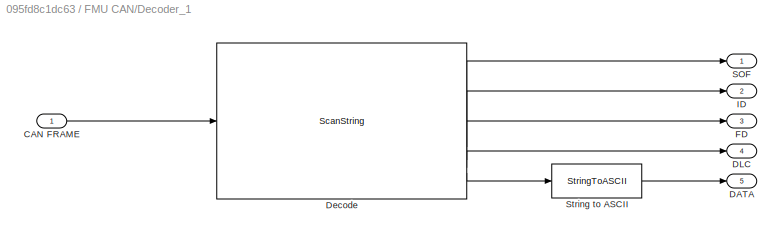
BLOCK [SubSystem] FMU CAN/Decoder_1
BLOCK [Inport] FMU CAN/Decoder_1/CAN FRAME
BLOCK [Outport] FMU CAN/Decoder_1/DATA
  Port = 5
BLOCK [Outport] FMU CAN/Decoder_1/DLC
  Port = 4
BLOCK [ScanString] FMU CAN/Decoder_1/Decode
  Format = "%d-%d-%d-%d-%s"
BLOCK [Outport] FMU CAN/Decoder_1/FD
  Port = 3
BLOCK [Outport] FMU CAN/Decoder_1/ID
  Port = 2
BLOCK [Outport] FMU CAN/Decoder_1/SOF
BLOCK [StringToASCII] FMU CAN/Decoder_1/String to ASCII
  OutputVectorSize = 200
BLOCK [SubSystem] FMU CAN/Decoder_10
BLOCK [Inport] FMU CAN/Decoder_10/CAN FRAME
BLOCK [Outport] FMU CAN/Decoder_10/DATA
  Port = 5
BLOCK [Outport] FMU CAN/Decoder_10/DLC
  Port = 4
BLOCK [ScanString] FMU CAN/Decoder_10/Decode
  Format = "%d-%d-%d-%d-%s"
BLOCK [Outport] FMU CAN/Decoder_10/FD
  Port = 3
BLOCK [Outport] FMU CAN/Decoder_10/ID
  Port = 2
BLOCK [Outport] FMU CAN/Decoder_10/SOF
BLOCK [StringToASCII] FMU CAN/Decoder_10/String to ASCII
  OutputVectorSize = 200
BLOCK [SubSystem] FMU CAN/Decoder_11
BLOCK [Inport] FMU CAN/Decoder_11/CAN FRAME
BLOCK [Outport] FMU CAN/Decoder_11/DATA
  Port = 5
BLOCK [Outport] FMU CAN/Decoder_11/DLC
  Port = 4
BLOCK [ScanString] FMU CAN/Decoder_11/Decode
  Format = "%d-%d-%d-%d-%s"
BLOCK [Outport] FMU CAN/Decoder_11/FD
  Port = 3
BLOCK [Outport] FMU CAN/Decoder_11/ID
  Port = 2
BLOCK [Outport] FMU CAN/Decoder_11/SOF
BLOCK [StringToASCII] FMU CAN/Decoder_11/String to ASCII
  OutputVectorSize = 200
BLOCK [SubSystem] FMU CAN/Decoder_12
BLOCK [Inport] FMU CAN/Decoder_12/CAN FRAME
BLOCK [Outport] FMU CAN/Decoder_12/DATA
  Port = 5
BLOCK [Outport] FMU CAN/Decoder_12/DLC
  Port = 4
BLOCK [ScanString] FMU CAN/Decoder_12/Decode
  Format = "%d-%d-%d-%d-%s"
BLOCK [Outport] FMU CAN/Decoder_12/FD
  Port = 3
BLOCK [Outport] FMU CAN/Decoder_12/ID
  Port = 2
BLOCK [Outport] FMU CAN/Decoder_12/SOF
BLOCK [StringToASCII] FMU CAN/Decoder_12/String to ASCII
  OutputVectorSize = 200
BLOCK [SubSystem] FMU CAN/Decoder_13
BLOCK [Inport] FMU CAN/Decoder_13/CAN FRAME
BLOCK [Outport] FMU CAN/Decoder_13/DATA
  Port = 5
BLOCK [Outport] FMU CAN/Decoder_13/DLC
  Port = 4
BLOCK [ScanString] FMU CAN/Decoder_13/Decode
  Format = "%d-%d-%d-%d-%s"
BLOCK [Outport] FMU CAN/Decoder_13/FD
  Port = 3
BLOCK [Outport] FMU CAN/Decoder_13/ID
  Port = 2
BLOCK [Outport] FMU CAN/Decoder_13/SOF
BLOCK [StringToASCII] FMU CAN/Decoder_13/String to ASCII
  OutputVectorSize = 200
BLOCK [SubSystem] FMU CAN/Decoder_14
BLOCK [Inport] FMU CAN/Decoder_14/CAN FRAME
BLOCK [Outport] FMU CAN/Decoder_14/DATA
  Port = 5
BLOCK [Outport] FMU CAN/Decoder_14/DLC
  Port = 4
BLOCK [ScanString] FMU CAN/Decoder_14/Decode
  Format = "%d-%d-%d-%d-%s"
BLOCK [Outport] FMU CAN/Decoder_14/FD
  Port = 3
BLOCK [Outport] FMU CAN/Decoder_14/ID
  Port = 2
BLOCK [Outport] FMU CAN/Decoder_14/SOF
BLOCK [StringToASCII] FMU CAN/Decoder_14/String to ASCII
  OutputVectorSize = 200
BLOCK [SubSystem] FMU CAN/Decoder_15
BLOCK [Inport] FMU CAN/Decoder_15/CAN FRAME
BLOCK [Outport] FMU CAN/Decoder_15/DATA
  Port = 5
BLOCK [Outport] FMU CAN/Decoder_15/DLC
  Port = 4
BLOCK [ScanString] FMU CAN/Decoder_15/Decode
  Format = "%d-%d-%d-%d-%s"
BLOCK [Outport] FMU CAN/Decoder_15/FD
  Port = 3
BLOCK [Outport] FMU CAN/Decoder_15/ID
  Port = 2
BLOCK [Outport] FMU CAN/Decoder_15/SOF
BLOCK [StringToASCII] FMU CAN/Decoder_15/String to ASCII
  OutputVectorSize = 200
BLOCK [SubSystem] FMU CAN/Decoder_16
BLOCK [Inport] FMU CAN/Decoder_16/CAN FRAME
BLOCK [Outport] FMU CAN/Decoder_16/DATA
  Port = 5
BLOCK [Outport] FMU CAN/Decoder_16/DLC
  Port = 4
BLOCK [ScanString] FMU CAN/Decoder_16/Decode
  Format = "%d-%d-%d-%d-%s"
BLOCK [Outport] FMU CAN/Decoder_16/FD
  Port = 3
BLOCK [Outport] FMU CAN/Decoder_16/ID
  Port = 2
BLOCK [Outport] FMU CAN/Decoder_16/SOF
BLOCK [StringToASCII] FMU CAN/Decoder_16/String to ASCII
  OutputVectorSize = 200
BLOCK [SubSystem] FMU CAN/Decoder_17
BLOCK [Inport] FMU CAN/Decoder_17/CAN FRAME
BLOCK [Outport] FMU CAN/Decoder_17/DATA
  Port = 5
BLOCK [Outport] FMU CAN/Decoder_17/DLC
  Port = 4
BLOCK [ScanString] FMU CAN/Decoder_17/Decode
  Format = "%d-%d-%d-%d-%s"
BLOCK [Outport] FMU CAN/Decoder_17/FD
  Port = 3
BLOCK [Outport] FMU CAN/Decoder_17/ID
  Port = 2
BLOCK [Outport] FMU CAN/Decoder_17/SOF
BLOCK [StringToASCII] FMU CAN/Decoder_17/String to ASCII
  OutputVectorSize = 200
BLOCK [SubSystem] FMU CAN/Decoder_18
BLOCK [Inport] FMU CAN/Decoder_18/CAN FRAME
BLOCK [Outport] FMU CAN/Decoder_18/DATA
  Port = 5
BLOCK [Outport] FMU CAN/Decoder_18/DLC
  Port = 4
BLOCK [ScanString] FMU CAN/Decoder_18/Decode
  Format = "%d-%d-%d-%d-%s"
BLOCK [Outport] FMU CAN/Decoder_18/FD
  Port = 3
BLOCK [Outport] FMU CAN/Decoder_18/ID
  Port = 2
BLOCK [Outport] FMU CAN/Decoder_18/SOF
BLOCK [StringToASCII] FMU CAN/Decoder_18/String to ASCII
  OutputVectorSize = 200
BLOCK [SubSystem] FMU CAN/Decoder_19
BLOCK [Inport] FMU CAN/Decoder_19/CAN FRAME
BLOCK [Outport] FMU CAN/Decoder_19/DATA
  Port = 5
BLOCK [Outport] FMU CAN/Decoder_19/DLC
  Port = 4
BLOCK [ScanString] FMU CAN/Decoder_19/Decode
  Format = "%d-%d-%d-%d-%s"
BLOCK [Outport] FMU CAN/Decoder_19/FD
  Port = 3
BLOCK [Outport] FMU CAN/Decoder_19/ID
  Port = 2
BLOCK [Outport] FMU CAN/Decoder_19/SOF
BLOCK [StringToASCII] FMU CAN/Decoder_19/String to ASCII
  OutputVectorSize = 200
BLOCK [SubSystem] FMU CAN/Decoder_2
BLOCK [Inport] FMU CAN/Decoder_2/CAN FRAME
BLOCK [Outport] FMU CAN/Decoder_2/DATA
  Port = 5
BLOCK [Outport] FMU CAN/Decoder_2/DLC
  Port = 4
BLOCK [ScanString] FMU CAN/Decoder_2/Decode
  Format = "%d-%d-%d-%d-%s"
BLOCK [Outport] FMU CAN/Decoder_2/FD
  Port = 3
BLOCK [Outport] FMU CAN/Decoder_2/ID
  Port = 2
BLOCK [Outport] FMU CAN/Decoder_2/SOF
BLOCK [StringToASCII] FMU CAN/Decoder_2/String to ASCII
  OutputVectorSize = 200
BLOCK [SubSystem] FMU CAN/Decoder_20
BLOCK [Inport] FMU CAN/Decoder_20/CAN FRAME
BLOCK [Outport] FMU CAN/Decoder_20/DATA
  Port = 5
BLOCK [Outport] FMU CAN/Decoder_20/DLC
  Port = 4
BLOCK [ScanString] FMU CAN/Decoder_20/Decode
  Format = "%d-%d-%d-%d-%s"
BLOCK [Outport] FMU CAN/Decoder_20/FD
  Port = 3
BLOCK [Outport] FMU CAN/Decoder_20/ID
  Port = 2
BLOCK [Outport] FMU CAN/Decoder_20/SOF
BLOCK [StringToASCII] FMU CAN/Decoder_20/String to ASCII
  OutputVectorSize = 200
BLOCK [SubSystem] FMU CAN/Decoder_21
BLOCK [Inport] FMU CAN/Decoder_21/CAN FRAME
BLOCK [Outport] FMU CAN/Decoder_21/DATA
  Port = 5
BLOCK [Outport] FMU CAN/Decoder_21/DLC
  Port = 4
BLOCK [ScanString] FMU CAN/Decoder_21/Decode
  Format = "%d-%d-%d-%d-%s"
BLOCK [Outport] FMU CAN/Decoder_21/FD
  Port = 3
BLOCK [Outport] FMU CAN/Decoder_21/ID
  Port = 2
BLOCK [Outport] FMU CAN/Decoder_21/SOF
BLOCK [StringToASCII] FMU CAN/Decoder_21/String to ASCII
  OutputVectorSize = 200
BLOCK [SubSystem] FMU CAN/Decoder_22
BLOCK [Inport] FMU CAN/Decoder_22/CAN FRAME
BLOCK [Outport] FMU CAN/Decoder_22/DATA
  Port = 5
BLOCK [Outport] FMU CAN/Decoder_22/DLC
  Port = 4
BLOCK [ScanString] FMU CAN/Decoder_22/Decode
  Format = "%d-%d-%d-%d-%s"
BLOCK [Outport] FMU CAN/Decoder_22/FD
  Port = 3
BLOCK [Outport] FMU CAN/Decoder_22/ID
  Port = 2
BLOCK [Outport] FMU CAN/Decoder_22/SOF
BLOCK [StringToASCII] FMU CAN/Decoder_22/String to ASCII
  OutputVectorSize = 200
BLOCK [SubSystem] FMU CAN/Decoder_23
BLOCK [Inport] FMU CAN/Decoder_23/CAN FRAME
BLOCK [Outport] FMU CAN/Decoder_23/DATA
  Port = 5
BLOCK [Outport] FMU CAN/Decoder_23/DLC
  Port = 4
BLOCK [ScanString] FMU CAN/Decoder_23/Decode
  Format = "%d-%d-%d-%d-%s"
BLOCK [Outport] FMU CAN/Decoder_23/FD
  Port = 3
BLOCK [Outport] FMU CAN/Decoder_23/ID
  Port = 2
BLOCK [Outport] FMU CAN/Decoder_23/SOF
BLOCK [StringToASCII] FMU CAN/Decoder_23/String to ASCII
  OutputVectorSize = 200
BLOCK [SubSystem] FMU CAN/Decoder_24
BLOCK [Inport] FMU CAN/Decoder_24/CAN FRAME
BLOCK [Outport] FMU CAN/Decoder_24/DATA
  Port = 5
BLOCK [Outport] FMU CAN/Decoder_24/DLC
  Port = 4
BLOCK [ScanString] FMU CAN/Decoder_24/Decode
  Format = "%d-%d-%d-%d-%s"
BLOCK [Outport] FMU CAN/Decoder_24/FD
  Port = 3
BLOCK [Outport] FMU CAN/Decoder_24/ID
  Port = 2
BLOCK [Outport] FMU CAN/Decoder_24/SOF
BLOCK [StringToASCII] FMU CAN/Decoder_24/String to ASCII
  OutputVectorSize = 200
BLOCK [SubSystem] FMU CAN/Decoder_25
BLOCK [Inport] FMU CAN/Decoder_25/CAN FRAME
BLOCK [Outport] FMU CAN/Decoder_25/DATA
  Port = 5
BLOCK [Outport] FMU CAN/Decoder_25/DLC
  Port = 4
BLOCK [ScanString] FMU CAN/Decoder_25/Decode
  Format = "%d-%d-%d-%d-%s"
BLOCK [Outport] FMU CAN/Decoder_25/FD
  Port = 3
BLOCK [Outport] FMU CAN/Decoder_25/ID
  Port = 2
BLOCK [Outport] FMU CAN/Decoder_25/SOF
BLOCK [StringToASCII] FMU CAN/Decoder_25/String to ASCII
  OutputVectorSize = 200
BLOCK [SubSystem] FMU CAN/Decoder_26
BLOCK [Inport] FMU CAN/Decoder_26/CAN FRAME
BLOCK [Outport] FMU CAN/Decoder_26/DATA
  Port = 5
BLOCK [Outport] FMU CAN/Decoder_26/DLC
  Port = 4
BLOCK [ScanString] FMU CAN/Decoder_26/Decode
  Format = "%d-%d-%d-%d-%s"
BLOCK [Outport] FMU CAN/Decoder_26/FD
  Port = 3
BLOCK [Outport] FMU CAN/Decoder_26/ID
  Port = 2
BLOCK [Outport] FMU CAN/Decoder_26/SOF
BLOCK [StringToASCII] FMU CAN/Decoder_26/String to ASCII
  OutputVectorSize = 200
BLOCK [SubSystem] FMU CAN/Decoder_27
BLOCK [Inport] FMU CAN/Decoder_27/CAN FRAME
BLOCK [Outport] FMU CAN/Decoder_27/DATA
  Port = 5
BLOCK [Outport] FMU CAN/Decoder_27/DLC
  Port = 4
BLOCK [ScanString] FMU CAN/Decoder_27/Decode
  Format = "%d-%d-%d-%d-%s"
BLOCK [Outport] FMU CAN/Decoder_27/FD
  Port = 3
BLOCK [Outport] FMU CAN/Decoder_27/ID
  Port = 2
BLOCK [Outport] FMU CAN/Decoder_27/SOF
BLOCK [StringToASCII] FMU CAN/Decoder_27/String to ASCII
  OutputVectorSize = 200
BLOCK [SubSystem] FMU CAN/Decoder_28
BLOCK [Inport] FMU CAN/Decoder_28/CAN FRAME
BLOCK [Outport] FMU CAN/Decoder_28/DATA
  Port = 5
BLOCK [Outport] FMU CAN/Decoder_28/DLC
  Port = 4
BLOCK [ScanString] FMU CAN/Decoder_28/Decode
  Format = "%d-%d-%d-%d-%s"
BLOCK [Outport] FMU CAN/Decoder_28/FD
  Port = 3
BLOCK [Outport] FMU CAN/Decoder_28/ID
  Port = 2
BLOCK [Outport] FMU CAN/Decoder_28/SOF
BLOCK [StringToASCII] FMU CAN/Decoder_28/String to ASCII
  OutputVectorSize = 200
BLOCK [SubSystem] FMU CAN/Decoder_29
BLOCK [Inport] FMU CAN/Decoder_29/CAN FRAME
BLOCK [Outport] FMU CAN/Decoder_29/DATA
  Port = 5
BLOCK [Outport] FMU CAN/Decoder_29/DLC
  Port = 4
BLOCK [ScanString] FMU CAN/Decoder_29/Decode
  Format = "%d-%d-%d-%d-%s"
BLOCK [Outport] FMU CAN/Decoder_29/FD
  Port = 3
BLOCK [Outport] FMU CAN/Decoder_29/ID
  Port = 2
BLOCK [Outport] FMU CAN/Decoder_29/SOF
BLOCK [StringToASCII] FMU CAN/Decoder_29/String to ASCII
  OutputVectorSize = 200
BLOCK [SubSystem] FMU CAN/Decoder_3
BLOCK [Inport] FMU CAN/Decoder_3/CAN FRAME
BLOCK [Outport] FMU CAN/Decoder_3/DATA
  Port = 5
BLOCK [Outport] FMU CAN/Decoder_3/DLC
  Port = 4
BLOCK [ScanString] FMU CAN/Decoder_3/Decode
  Format = "%d-%d-%d-%d-%s"
BLOCK [Outport] FMU CAN/Decoder_3/FD
  Port = 3
BLOCK [Outport] FMU CAN/Decoder_3/ID
  Port = 2
BLOCK [Outport] FMU CAN/Decoder_3/SOF
BLOCK [StringToASCII] FMU CAN/Decoder_3/String to ASCII
  OutputVectorSize = 200
BLOCK [SubSystem] FMU CAN/Decoder_30
BLOCK [Inport] FMU CAN/Decoder_30/CAN FRAME
BLOCK [Outport] FMU CAN/Decoder_30/DATA
  Port = 5
BLOCK [Outport] FMU CAN/Decoder_30/DLC
  Port = 4
BLOCK [ScanString] FMU CAN/Decoder_30/Decode
  Format = "%d-%d-%d-%d-%s"
BLOCK [Outport] FMU CAN/Decoder_30/FD
  Port = 3
BLOCK [Outport] FMU CAN/Decoder_30/ID
  Port = 2
BLOCK [Outport] FMU CAN/Decoder_30/SOF
BLOCK [StringToASCII] FMU CAN/Decoder_30/String to ASCII
  OutputVectorSize = 200
BLOCK [SubSystem] FMU CAN/Decoder_31
BLOCK [Inport] FMU CAN/Decoder_31/CAN FRAME
BLOCK [Outport] FMU CAN/Decoder_31/DATA
  Port = 5
BLOCK [Outport] FMU CAN/Decoder_31/DLC
  Port = 4
BLOCK [ScanString] FMU CAN/Decoder_31/Decode
  Format = "%d-%d-%d-%d-%s"
BLOCK [Outport] FMU CAN/Decoder_31/FD
  Port = 3
BLOCK [Outport] FMU CAN/Decoder_31/ID
  Port = 2
BLOCK [Outport] FMU CAN/Decoder_31/SOF
BLOCK [StringToASCII] FMU CAN/Decoder_31/String to ASCII
  OutputVectorSize = 200
BLOCK [SubSystem] FMU CAN/Decoder_32
BLOCK [Inport] FMU CAN/Decoder_32/CAN FRAME
BLOCK [Outport] FMU CAN/Decoder_32/DATA
  Port = 5
BLOCK [Outport] FMU CAN/Decoder_32/DLC
  Port = 4
BLOCK [ScanString] FMU CAN/Decoder_32/Decode
  Format = "%d-%d-%d-%d-%s"
BLOCK [Outport] FMU CAN/Decoder_32/FD
  Port = 3
BLOCK [Outport] FMU CAN/Decoder_32/ID
  Port = 2
BLOCK [Outport] FMU CAN/Decoder_32/SOF
BLOCK [StringToASCII] FMU CAN/Decoder_32/String to ASCII
  OutputVectorSize = 200
BLOCK [SubSystem] FMU CAN/Decoder_33
BLOCK [Inport] FMU CAN/Decoder_33/CAN FRAME
BLOCK [Outport] FMU CAN/Decoder_33/DATA
  Port = 5
BLOCK [Outport] FMU CAN/Decoder_33/DLC
  Port = 4
BLOCK [ScanString] FMU CAN/Decoder_33/Decode
  Format = "%d-%d-%d-%d-%s"
BLOCK [Outport] FMU CAN/Decoder_33/FD
  Port = 3
BLOCK [Outport] FMU CAN/Decoder_33/ID
  Port = 2
BLOCK [Outport] FMU CAN/Decoder_33/SOF
BLOCK [StringToASCII] FMU CAN/Decoder_33/String to ASCII
  OutputVectorSize = 200
BLOCK [SubSystem] FMU CAN/Decoder_34
BLOCK [Inport] FMU CAN/Decoder_34/CAN FRAME
BLOCK [Outport] FMU CAN/Decoder_34/DATA
  Port = 5
BLOCK [Outport] FMU CAN/Decoder_34/DLC
  Port = 4
BLOCK [ScanString] FMU CAN/Decoder_34/Decode
  Format = "%d-%d-%d-%d-%s"
BLOCK [Outport] FMU CAN/Decoder_34/FD
  Port = 3
BLOCK [Outport] FMU CAN/Decoder_34/ID
  Port = 2
BLOCK [Outport] FMU CAN/Decoder_34/SOF
BLOCK [StringToASCII] FMU CAN/Decoder_34/String to ASCII
  OutputVectorSize = 200
BLOCK [SubSystem] FMU CAN/Decoder_35
BLOCK [Inport] FMU CAN/Decoder_35/CAN FRAME
BLOCK [Outport] FMU CAN/Decoder_35/DATA
  Port = 5
BLOCK [Outport] FMU CAN/Decoder_35/DLC
  Port = 4
BLOCK [ScanString] FMU CAN/Decoder_35/Decode
  Format = "%d-%d-%d-%d-%s"
BLOCK [Outport] FMU CAN/Decoder_35/FD
  Port = 3
BLOCK [Outport] FMU CAN/Decoder_35/ID
  Port = 2
BLOCK [Outport] FMU CAN/Decoder_35/SOF
BLOCK [StringToASCII] FMU CAN/Decoder_35/String to ASCII
  OutputVectorSize = 200
BLOCK [SubSystem] FMU CAN/Decoder_36
BLOCK [Inport] FMU CAN/Decoder_36/CAN FRAME
BLOCK [Outport] FMU CAN/Decoder_36/DATA
  Port = 5
BLOCK [Outport] FMU CAN/Decoder_36/DLC
  Port = 4
BLOCK [ScanString] FMU CAN/Decoder_36/Decode
  Format = "%d-%d-%d-%d-%s"
BLOCK [Outport] FMU CAN/Decoder_36/FD
  Port = 3
BLOCK [Outport] FMU CAN/Decoder_36/ID
  Port = 2
BLOCK [Outport] FMU CAN/Decoder_36/SOF
BLOCK [StringToASCII] FMU CAN/Decoder_36/String to ASCII
  OutputVectorSize = 200
BLOCK [SubSystem] FMU CAN/Decoder_37
BLOCK [Inport] FMU CAN/Decoder_37/CAN FRAME
BLOCK [Outport] FMU CAN/Decoder_37/DATA
  Port = 5
BLOCK [Outport] FMU CAN/Decoder_37/DLC
  Port = 4
BLOCK [ScanString] FMU CAN/Decoder_37/Decode
  Format = "%d-%d-%d-%d-%s"
BLOCK [Outport] FMU CAN/Decoder_37/FD
  Port = 3
BLOCK [Outport] FMU CAN/Decoder_37/ID
  Port = 2
BLOCK [Outport] FMU CAN/Decoder_37/SOF
BLOCK [StringToASCII] FMU CAN/Decoder_37/String to ASCII
  OutputVectorSize = 200
BLOCK [SubSystem] FMU CAN/Decoder_38
BLOCK [Inport] FMU CAN/Decoder_38/CAN FRAME
BLOCK [Outport] FMU CAN/Decoder_38/DATA
  Port = 5
BLOCK [Outport] FMU CAN/Decoder_38/DLC
  Port = 4
BLOCK [ScanString] FMU CAN/Decoder_38/Decode
  Format = "%d-%d-%d-%d-%s"
BLOCK [Outport] FMU CAN/Decoder_38/FD
  Port = 3
BLOCK [Outport] FMU CAN/Decoder_38/ID
  Port = 2
BLOCK [Outport] FMU CAN/Decoder_38/SOF
BLOCK [StringToASCII] FMU CAN/Decoder_38/String to ASCII
  OutputVectorSize = 200
BLOCK [SubSystem] FMU CAN/Decoder_39
BLOCK [Inport] FMU CAN/Decoder_39/CAN FRAME
BLOCK [Outport] FMU CAN/Decoder_39/DATA
  Port = 5
BLOCK [Outport] FMU CAN/Decoder_39/DLC
  Port = 4
BLOCK [ScanString] FMU CAN/Decoder_39/Decode
  Format = "%d-%d-%d-%d-%s"
BLOCK [Outport] FMU CAN/Decoder_39/FD
  Port = 3
BLOCK [Outport] FMU CAN/Decoder_39/ID
  Port = 2
BLOCK [Outport] FMU CAN/Decoder_39/SOF
BLOCK [StringToASCII] FMU CAN/Decoder_39/String to ASCII
  OutputVectorSize = 200
BLOCK [SubSystem] FMU CAN/Decoder_4
BLOCK [Inport] FMU CAN/Decoder_4/CAN FRAME
BLOCK [Outport] FMU CAN/Decoder_4/DATA
  Port = 5
BLOCK [Outport] FMU CAN/Decoder_4/DLC
  Port = 4
BLOCK [ScanString] FMU CAN/Decoder_4/Decode
  Format = "%d-%d-%d-%d-%s"
BLOCK [Outport] FMU CAN/Decoder_4/FD
  Port = 3
BLOCK [Outport] FMU CAN/Decoder_4/ID
  Port = 2
BLOCK [Outport] FMU CAN/Decoder_4/SOF
BLOCK [StringToASCII] FMU CAN/Decoder_4/String to ASCII
  OutputVectorSize = 200
BLOCK [SubSystem] FMU CAN/Decoder_40
BLOCK [Inport] FMU CAN/Decoder_40/CAN FRAME
BLOCK [Outport] FMU CAN/Decoder_40/DATA
  Port = 5
BLOCK [Outport] FMU CAN/Decoder_40/DLC
  Port = 4
BLOCK [ScanString] FMU CAN/Decoder_40/Decode
  Format = "%d-%d-%d-%d-%s"
BLOCK [Outport] FMU CAN/Decoder_40/FD
  Port = 3
BLOCK [Outport] FMU CAN/Decoder_40/ID
  Port = 2
BLOCK [Outport] FMU CAN/Decoder_40/SOF
BLOCK [StringToASCII] FMU CAN/Decoder_40/String to ASCII
  OutputVectorSize = 200
BLOCK [SubSystem] FMU CAN/Decoder_41
BLOCK [Inport] FMU CAN/Decoder_41/CAN FRAME
BLOCK [Outport] FMU CAN/Decoder_41/DATA
  Port = 5
BLOCK [Outport] FMU CAN/Decoder_41/DLC
  Port = 4
BLOCK [ScanString] FMU CAN/Decoder_41/Decode
  Format = "%d-%d-%d-%d-%s"
BLOCK [Outport] FMU CAN/Decoder_41/FD
  Port = 3
BLOCK [Outport] FMU CAN/Decoder_41/ID
  Port = 2
BLOCK [Outport] FMU CAN/Decoder_41/SOF
BLOCK [StringToASCII] FMU CAN/Decoder_41/String to ASCII
  OutputVectorSize = 200
BLOCK [SubSystem] FMU CAN/Decoder_42
BLOCK [Inport] FMU CAN/Decoder_42/CAN FRAME
BLOCK [Outport] FMU CAN/Decoder_42/DATA
  Port = 5
BLOCK [Outport] FMU CAN/Decoder_42/DLC
  Port = 4
BLOCK [ScanString] FMU CAN/Decoder_42/Decode
  Format = "%d-%d-%d-%d-%s"
BLOCK [Outport] FMU CAN/Decoder_42/FD
  Port = 3
BLOCK [Outport] FMU CAN/Decoder_42/ID
  Port = 2
BLOCK [Outport] FMU CAN/Decoder_42/SOF
BLOCK [StringToASCII] FMU CAN/Decoder_42/String to ASCII
  OutputVectorSize = 200
BLOCK [SubSystem] FMU CAN/Decoder_43
BLOCK [Inport] FMU CAN/Decoder_43/CAN FRAME
BLOCK [Outport] FMU CAN/Decoder_43/DATA
  Port = 5
BLOCK [Outport] FMU CAN/Decoder_43/DLC
  Port = 4
BLOCK [ScanString] FMU CAN/Decoder_43/Decode
  Format = "%d-%d-%d-%d-%s"
BLOCK [Outport] FMU CAN/Decoder_43/FD
  Port = 3
BLOCK [Outport] FMU CAN/Decoder_43/ID
  Port = 2
BLOCK [Outport] FMU CAN/Decoder_43/SOF
BLOCK [StringToASCII] FMU CAN/Decoder_43/String to ASCII
  OutputVectorSize = 200
BLOCK [SubSystem] FMU CAN/Decoder_44
BLOCK [Inport] FMU CAN/Decoder_44/CAN FRAME
BLOCK [Outport] FMU CAN/Decoder_44/DATA
  Port = 5
BLOCK [Outport] FMU CAN/Decoder_44/DLC
  Port = 4
BLOCK [ScanString] FMU CAN/Decoder_44/Decode
  Format = "%d-%d-%d-%d-%s"
BLOCK [Outport] FMU CAN/Decoder_44/FD
  Port = 3
BLOCK [Outport] FMU CAN/Decoder_44/ID
  Port = 2
BLOCK [Outport] FMU CAN/Decoder_44/SOF
BLOCK [StringToASCII] FMU CAN/Decoder_44/String to ASCII
  OutputVectorSize = 200
BLOCK [SubSystem] FMU CAN/Decoder_45
BLOCK [Inport] FMU CAN/Decoder_45/CAN FRAME
BLOCK [Outport] FMU CAN/Decoder_45/DATA
  Port = 5
BLOCK [Outport] FMU CAN/Decoder_45/DLC
  Port = 4
BLOCK [ScanString] FMU CAN/Decoder_45/Decode
  Format = "%d-%d-%d-%d-%s"
BLOCK [Outport] FMU CAN/Decoder_45/FD
  Port = 3
BLOCK [Outport] FMU CAN/Decoder_45/ID
  Port = 2
BLOCK [Outport] FMU CAN/Decoder_45/SOF
BLOCK [StringToASCII] FMU CAN/Decoder_45/String to ASCII
  OutputVectorSize = 200
BLOCK [SubSystem] FMU CAN/Decoder_46
BLOCK [Inport] FMU CAN/Decoder_46/CAN FRAME
BLOCK [Outport] FMU CAN/Decoder_46/DATA
  Port = 5
BLOCK [Outport] FMU CAN/Decoder_46/DLC
  Port = 4
BLOCK [ScanString] FMU CAN/Decoder_46/Decode
  Format = "%d-%d-%d-%d-%s"
BLOCK [Outport] FMU CAN/Decoder_46/FD
  Port = 3
BLOCK [Outport] FMU CAN/Decoder_46/ID
  Port = 2
BLOCK [Outport] FMU CAN/Decoder_46/SOF
BLOCK [StringToASCII] FMU CAN/Decoder_46/String to ASCII
  OutputVectorSize = 200
BLOCK [SubSystem] FMU CAN/Decoder_47
BLOCK [Inport] FMU CAN/Decoder_47/CAN FRAME
BLOCK [Outport] FMU CAN/Decoder_47/DATA
  Port = 5
BLOCK [Outport] FMU CAN/Decoder_47/DLC
  Port = 4
BLOCK [ScanString] FMU CAN/Decoder_47/Decode
  Format = "%d-%d-%d-%d-%s"
BLOCK [Outport] FMU CAN/Decoder_47/FD
  Port = 3
BLOCK [Outport] FMU CAN/Decoder_47/ID
  Port = 2
BLOCK [Outport] FMU CAN/Decoder_47/SOF
BLOCK [StringToASCII] FMU CAN/Decoder_47/String to ASCII
  OutputVectorSize = 200
BLOCK [SubSystem] FMU CAN/Decoder_48
BLOCK [Inport] FMU CAN/Decoder_48/CAN FRAME
BLOCK [Outport] FMU CAN/Decoder_48/DATA
  Port = 5
BLOCK [Outport] FMU CAN/Decoder_48/DLC
  Port = 4
BLOCK [ScanString] FMU CAN/Decoder_48/Decode
  Format = "%d-%d-%d-%d-%s"
BLOCK [Outport] FMU CAN/Decoder_48/FD
  Port = 3
BLOCK [Outport] FMU CAN/Decoder_48/ID
  Port = 2
BLOCK [Outport] FMU CAN/Decoder_48/SOF
BLOCK [StringToASCII] FMU CAN/Decoder_48/String to ASCII
  OutputVectorSize = 200
BLOCK [SubSystem] FMU CAN/Decoder_49
BLOCK [Inport] FMU CAN/Decoder_49/CAN FRAME
BLOCK [Outport] FMU CAN/Decoder_49/DATA
  Port = 5
BLOCK [Outport] FMU CAN/Decoder_49/DLC
  Port = 4
BLOCK [ScanString] FMU CAN/Decoder_49/Decode
  Format = "%d-%d-%d-%d-%s"
BLOCK [Outport] FMU CAN/Decoder_49/FD
  Port = 3
BLOCK [Outport] FMU CAN/Decoder_49/ID
  Port = 2
BLOCK [Outport] FMU CAN/Decoder_49/SOF
BLOCK [StringToASCII] FMU CAN/Decoder_49/String to ASCII
  OutputVectorSize = 200
BLOCK [SubSystem] FMU CAN/Decoder_5
BLOCK [Inport] FMU CAN/Decoder_5/CAN FRAME
BLOCK [Outport] FMU CAN/Decoder_5/DATA
  Port = 5
BLOCK [Outport] FMU CAN/Decoder_5/DLC
  Port = 4
BLOCK [ScanString] FMU CAN/Decoder_5/Decode
  Format = "%d-%d-%d-%d-%s"
BLOCK [Outport] FMU CAN/Decoder_5/FD
  Port = 3
BLOCK [Outport] FMU CAN/Decoder_5/ID
  Port = 2
BLOCK [Outport] FMU CAN/Decoder_5/SOF
BLOCK [StringToASCII] FMU CAN/Decoder_5/String to ASCII
  OutputVectorSize = 200
BLOCK [SubSystem] FMU CAN/Decoder_50
BLOCK [Inport] FMU CAN/Decoder_50/CAN FRAME
BLOCK [Outport] FMU CAN/Decoder_50/DATA
  Port = 5
BLOCK [Outport] FMU CAN/Decoder_50/DLC
  Port = 4
BLOCK [ScanString] FMU CAN/Decoder_50/Decode
  Format = "%d-%d-%d-%d-%s"
BLOCK [Outport] FMU CAN/Decoder_50/FD
  Port = 3
BLOCK [Outport] FMU CAN/Decoder_50/ID
  Port = 2
BLOCK [Outport] FMU CAN/Decoder_50/SOF
BLOCK [StringToASCII] FMU CAN/Decoder_50/String to ASCII
  OutputVectorSize = 200
BLOCK [SubSystem] FMU CAN/Decoder_51
BLOCK [Inport] FMU CAN/Decoder_51/CAN FRAME
BLOCK [Outport] FMU CAN/Decoder_51/DATA
  Port = 5
BLOCK [Outport] FMU CAN/Decoder_51/DLC
  Port = 4
BLOCK [ScanString] FMU CAN/Decoder_51/Decode
  Format = "%d-%d-%d-%d-%s"
BLOCK [Outport] FMU CAN/Decoder_51/FD
  Port = 3
BLOCK [Outport] FMU CAN/Decoder_51/ID
  Port = 2
BLOCK [Outport] FMU CAN/Decoder_51/SOF
BLOCK [StringToASCII] FMU CAN/Decoder_51/String to ASCII
  OutputVectorSize = 200
BLOCK [SubSystem] FMU CAN/Decoder_52
BLOCK [Inport] FMU CAN/Decoder_52/CAN FRAME
BLOCK [Outport] FMU CAN/Decoder_52/DATA
  Port = 5
BLOCK [Outport] FMU CAN/Decoder_52/DLC
  Port = 4
BLOCK [ScanString] FMU CAN/Decoder_52/Decode
  Format = "%d-%d-%d-%d-%s"
BLOCK [Outport] FMU CAN/Decoder_52/FD
  Port = 3
BLOCK [Outport] FMU CAN/Decoder_52/ID
  Port = 2
BLOCK [Outport] FMU CAN/Decoder_52/SOF
BLOCK [StringToASCII] FMU CAN/Decoder_52/String to ASCII
  OutputVectorSize = 200
BLOCK [SubSystem] FMU CAN/Decoder_53
BLOCK [Inport] FMU CAN/Decoder_53/CAN FRAME
BLOCK [Outport] FMU CAN/Decoder_53/DATA
  Port = 5
BLOCK [Outport] FMU CAN/Decoder_53/DLC
  Port = 4
BLOCK [ScanString] FMU CAN/Decoder_53/Decode
  Format = "%d-%d-%d-%d-%s"
BLOCK [Outport] FMU CAN/Decoder_53/FD
  Port = 3
BLOCK [Outport] FMU CAN/Decoder_53/ID
  Port = 2
BLOCK [Outport] FMU CAN/Decoder_53/SOF
BLOCK [StringToASCII] FMU CAN/Decoder_53/String to ASCII
  OutputVectorSize = 200
BLOCK [SubSystem] FMU CAN/Decoder_54
BLOCK [Inport] FMU CAN/Decoder_54/CAN FRAME
BLOCK [Outport] FMU CAN/Decoder_54/DATA
  Port = 5
BLOCK [Outport] FMU CAN/Decoder_54/DLC
  Port = 4
BLOCK [ScanString] FMU CAN/Decoder_54/Decode
  Format = "%d-%d-%d-%d-%s"
BLOCK [Outport] FMU CAN/Decoder_54/FD
  Port = 3
BLOCK [Outport] FMU CAN/Decoder_54/ID
  Port = 2
BLOCK [Outport] FMU CAN/Decoder_54/SOF
BLOCK [StringToASCII] FMU CAN/Decoder_54/String to ASCII
  OutputVectorSize = 200
BLOCK [SubSystem] FMU CAN/Decoder_55
BLOCK [Inport] FMU CAN/Decoder_55/CAN FRAME
BLOCK [Outport] FMU CAN/Decoder_55/DATA
  Port = 5
BLOCK [Outport] FMU CAN/Decoder_55/DLC
  Port = 4
BLOCK [ScanString] FMU CAN/Decoder_55/Decode
  Format = "%d-%d-%d-%d-%s"
BLOCK [Outport] FMU CAN/Decoder_55/FD
  Port = 3
BLOCK [Outport] FMU CAN/Decoder_55/ID
  Port = 2
BLOCK [Outport] FMU CAN/Decoder_55/SOF
BLOCK [StringToASCII] FMU CAN/Decoder_55/String to ASCII
  OutputVectorSize = 200
BLOCK [SubSystem] FMU CAN/Decoder_56
BLOCK [Inport] FMU CAN/Decoder_56/CAN FRAME
BLOCK [Outport] FMU CAN/Decoder_56/DATA
  Port = 5
BLOCK [Outport] FMU CAN/Decoder_56/DLC
  Port = 4
BLOCK [ScanString] FMU CAN/Decoder_56/Decode
  Format = "%d-%d-%d-%d-%s"
BLOCK [Outport] FMU CAN/Decoder_56/FD
  Port = 3
BLOCK [Outport] FMU CAN/Decoder_56/ID
  Port = 2
BLOCK [Outport] FMU CAN/Decoder_56/SOF
BLOCK [StringToASCII] FMU CAN/Decoder_56/String to ASCII
  OutputVectorSize = 200
BLOCK [SubSystem] FMU CAN/Decoder_57
BLOCK [Inport] FMU CAN/Decoder_57/CAN FRAME
BLOCK [Outport] FMU CAN/Decoder_57/DATA
  Port = 5
BLOCK [Outport] FMU CAN/Decoder_57/DLC
  Port = 4
BLOCK [ScanString] FMU CAN/Decoder_57/Decode
  Format = "%d-%d-%d-%d-%s"
BLOCK [Outport] FMU CAN/Decoder_57/FD
  Port = 3
BLOCK [Outport] FMU CAN/Decoder_57/ID
  Port = 2
BLOCK [Outport] FMU CAN/Decoder_57/SOF
BLOCK [StringToASCII] FMU CAN/Decoder_57/String to ASCII
  OutputVectorSize = 200
BLOCK [SubSystem] FMU CAN/Decoder_58
BLOCK [Inport] FMU CAN/Decoder_58/CAN FRAME
BLOCK [Outport] FMU CAN/Decoder_58/DATA
  Port = 5
BLOCK [Outport] FMU CAN/Decoder_58/DLC
  Port = 4
BLOCK [ScanString] FMU CAN/Decoder_58/Decode
  Format = "%d-%d-%d-%d-%s"
BLOCK [Outport] FMU CAN/Decoder_58/FD
  Port = 3
BLOCK [Outport] FMU CAN/Decoder_58/ID
  Port = 2
BLOCK [Outport] FMU CAN/Decoder_58/SOF
BLOCK [StringToASCII] FMU CAN/Decoder_58/String to ASCII
  OutputVectorSize = 200
BLOCK [SubSystem] FMU CAN/Decoder_59
BLOCK [Inport] FMU CAN/Decoder_59/CAN FRAME
BLOCK [Outport] FMU CAN/Decoder_59/DATA
  Port = 5
BLOCK [Outport] FMU CAN/Decoder_59/DLC
  Port = 4
BLOCK [ScanString] FMU CAN/Decoder_59/Decode
  Format = "%d-%d-%d-%d-%s"
BLOCK [Outport] FMU CAN/Decoder_59/FD
  Port = 3
BLOCK [Outport] FMU CAN/Decoder_59/ID
  Port = 2
BLOCK [Outport] FMU CAN/Decoder_59/SOF
BLOCK [StringToASCII] FMU CAN/Decoder_59/String to ASCII
  OutputVectorSize = 200
BLOCK [SubSystem] FMU CAN/Decoder_6
BLOCK [Inport] FMU CAN/Decoder_6/CAN FRAME
BLOCK [Outport] FMU CAN/Decoder_6/DATA
  Port = 5
BLOCK [Outport] FMU CAN/Decoder_6/DLC
  Port = 4
BLOCK [ScanString] FMU CAN/Decoder_6/Decode
  Format = "%d-%d-%d-%d-%s"
BLOCK [Outport] FMU CAN/Decoder_6/FD
  Port = 3
BLOCK [Outport] FMU CAN/Decoder_6/ID
  Port = 2
BLOCK [Outport] FMU CAN/Decoder_6/SOF
BLOCK [StringToASCII] FMU CAN/Decoder_6/String to ASCII
  OutputVectorSize = 200
BLOCK [SubSystem] FMU CAN/Decoder_60
BLOCK [Inport] FMU CAN/Decoder_60/CAN FRAME
BLOCK [Outport] FMU CAN/Decoder_60/DATA
  Port = 5
BLOCK [Outport] FMU CAN/Decoder_60/DLC
  Port = 4
BLOCK [ScanString] FMU CAN/Decoder_60/Decode
  Format = "%d-%d-%d-%d-%s"
BLOCK [Outport] FMU CAN/Decoder_60/FD
  Port = 3
BLOCK [Outport] FMU CAN/Decoder_60/ID
  Port = 2
BLOCK [Outport] FMU CAN/Decoder_60/SOF
BLOCK [StringToASCII] FMU CAN/Decoder_60/String to ASCII
  OutputVectorSize = 200
BLOCK [SubSystem] FMU CAN/Decoder_61
BLOCK [Inport] FMU CAN/Decoder_61/CAN FRAME
BLOCK [Outport] FMU CAN/Decoder_61/DATA
  Port = 5
BLOCK [Outport] FMU CAN/Decoder_61/DLC
  Port = 4
BLOCK [ScanString] FMU CAN/Decoder_61/Decode
  Format = "%d-%d-%d-%d-%s"
BLOCK [Outport] FMU CAN/Decoder_61/FD
  Port = 3
BLOCK [Outport] FMU CAN/Decoder_61/ID
  Port = 2
BLOCK [Outport] FMU CAN/Decoder_61/SOF
BLOCK [StringToASCII] FMU CAN/Decoder_61/String to ASCII
  OutputVectorSize = 200
BLOCK [SubSystem] FMU CAN/Decoder_62
BLOCK [Inport] FMU CAN/Decoder_62/CAN FRAME
BLOCK [Outport] FMU CAN/Decoder_62/DATA
  Port = 5
BLOCK [Outport] FMU CAN/Decoder_62/DLC
  Port = 4
BLOCK [ScanString] FMU CAN/Decoder_62/Decode
  Format = "%d-%d-%d-%d-%s"
BLOCK [Outport] FMU CAN/Decoder_62/FD
  Port = 3
BLOCK [Outport] FMU CAN/Decoder_62/ID
  Port = 2
BLOCK [Outport] FMU CAN/Decoder_62/SOF
BLOCK [StringToASCII] FMU CAN/Decoder_62/String to ASCII
  OutputVectorSize = 200
BLOCK [SubSystem] FMU CAN/Decoder_63
BLOCK [Inport] FMU CAN/Decoder_63/CAN FRAME
BLOCK [Outport] FMU CAN/Decoder_63/DATA
  Port = 5
BLOCK [Outport] FMU CAN/Decoder_63/DLC
  Port = 4
BLOCK [ScanString] FMU CAN/Decoder_63/Decode
  Format = "%d-%d-%d-%d-%s"
BLOCK [Outport] FMU CAN/Decoder_63/FD
  Port = 3
BLOCK [Outport] FMU CAN/Decoder_63/ID
  Port = 2
BLOCK [Outport] FMU CAN/Decoder_63/SOF
BLOCK [StringToASCII] FMU CAN/Decoder_63/String to ASCII
  OutputVectorSize = 200
BLOCK [SubSystem] FMU CAN/Decoder_64
BLOCK [Inport] FMU CAN/Decoder_64/CAN FRAME
BLOCK [Outport] FMU CAN/Decoder_64/DATA
  Port = 5
BLOCK [Outport] FMU CAN/Decoder_64/DLC
  Port = 4
BLOCK [ScanString] FMU CAN/Decoder_64/Decode
  Format = "%d-%d-%d-%d-%s"
BLOCK [Outport] FMU CAN/Decoder_64/FD
  Port = 3
BLOCK [Outport] FMU CAN/Decoder_64/ID
  Port = 2
BLOCK [Outport] FMU CAN/Decoder_64/SOF
BLOCK [StringToASCII] FMU CAN/Decoder_64/String to ASCII
  OutputVectorSize = 200
BLOCK [SubSystem] FMU CAN/Decoder_65
BLOCK [Inport] FMU CAN/Decoder_65/CAN FRAME
BLOCK [Outport] FMU CAN/Decoder_65/DATA
  Port = 5
BLOCK [Outport] FMU CAN/Decoder_65/DLC
  Port = 4
BLOCK [ScanString] FMU CAN/Decoder_65/Decode
  Format = "%d-%d-%d-%d-%s"
BLOCK [Outport] FMU CAN/Decoder_65/FD
  Port = 3
BLOCK [Outport] FMU CAN/Decoder_65/ID
  Port = 2
BLOCK [Outport] FMU CAN/Decoder_65/SOF
BLOCK [StringToASCII] FMU CAN/Decoder_65/String to ASCII
  OutputVectorSize = 200
BLOCK [SubSystem] FMU CAN/Decoder_66
BLOCK [Inport] FMU CAN/Decoder_66/CAN FRAME
BLOCK [Outport] FMU CAN/Decoder_66/DATA
  Port = 5
BLOCK [Outport] FMU CAN/Decoder_66/DLC
  Port = 4
BLOCK [ScanString] FMU CAN/Decoder_66/Decode
  Format = "%d-%d-%d-%d-%s"
BLOCK [Outport] FMU CAN/Decoder_66/FD
  Port = 3
BLOCK [Outport] FMU CAN/Decoder_66/ID
  Port = 2
BLOCK [Outport] FMU CAN/Decoder_66/SOF
BLOCK [StringToASCII] FMU CAN/Decoder_66/String to ASCII
  OutputVectorSize = 200
BLOCK [SubSystem] FMU CAN/Decoder_67
BLOCK [Inport] FMU CAN/Decoder_67/CAN FRAME
BLOCK [Outport] FMU CAN/Decoder_67/DATA
  Port = 5
BLOCK [Outport] FMU CAN/Decoder_67/DLC
  Port = 4
BLOCK [ScanString] FMU CAN/Decoder_67/Decode
  Format = "%d-%d-%d-%d-%s"
BLOCK [Outport] FMU CAN/Decoder_67/FD
  Port = 3
BLOCK [Outport] FMU CAN/Decoder_67/ID
  Port = 2
BLOCK [Outport] FMU CAN/Decoder_67/SOF
BLOCK [StringToASCII] FMU CAN/Decoder_67/String to ASCII
  OutputVectorSize = 200
BLOCK [SubSystem] FMU CAN/Decoder_68
BLOCK [Inport] FMU CAN/Decoder_68/CAN FRAME
BLOCK [Outport] FMU CAN/Decoder_68/DATA
  Port = 5
BLOCK [Outport] FMU CAN/Decoder_68/DLC
  Port = 4
BLOCK [ScanString] FMU CAN/Decoder_68/Decode
  Format = "%d-%d-%d-%d-%s"
BLOCK [Outport] FMU CAN/Decoder_68/FD
  Port = 3
BLOCK [Outport] FMU CAN/Decoder_68/ID
  Port = 2
BLOCK [Outport] FMU CAN/Decoder_68/SOF
BLOCK [StringToASCII] FMU CAN/Decoder_68/String to ASCII
  OutputVectorSize = 200
BLOCK [SubSystem] FMU CAN/Decoder_69
BLOCK [Inport] FMU CAN/Decoder_69/CAN FRAME
BLOCK [Outport] FMU CAN/Decoder_69/DATA
  Port = 5
BLOCK [Outport] FMU CAN/Decoder_69/DLC
  Port = 4
BLOCK [ScanString] FMU CAN/Decoder_69/Decode
  Format = "%d-%d-%d-%d-%s"
BLOCK [Outport] FMU CAN/Decoder_69/FD
  Port = 3
BLOCK [Outport] FMU CAN/Decoder_69/ID
  Port = 2
BLOCK [Outport] FMU CAN/Decoder_69/SOF
BLOCK [StringToASCII] FMU CAN/Decoder_69/String to ASCII
  OutputVectorSize = 200
BLOCK [SubSystem] FMU CAN/Decoder_7
BLOCK [Inport] FMU CAN/Decoder_7/CAN FRAME
BLOCK [Outport] FMU CAN/Decoder_7/DATA
  Port = 5
BLOCK [Outport] FMU CAN/Decoder_7/DLC
  Port = 4
BLOCK [ScanString] FMU CAN/Decoder_7/Decode
  Format = "%d-%d-%d-%d-%s"
BLOCK [Outport] FMU CAN/Decoder_7/FD
  Port = 3
BLOCK [Outport] FMU CAN/Decoder_7/ID
  Port = 2
BLOCK [Outport] FMU CAN/Decoder_7/SOF
BLOCK [StringToASCII] FMU CAN/Decoder_7/String to ASCII
  OutputVectorSize = 200
BLOCK [SubSystem] FMU CAN/Decoder_70
BLOCK [Inport] FMU CAN/Decoder_70/CAN FRAME
BLOCK [Outport] FMU CAN/Decoder_70/DATA
  Port = 5
BLOCK [Outport] FMU CAN/Decoder_70/DLC
  Port = 4
BLOCK [ScanString] FMU CAN/Decoder_70/Decode
  Format = "%d-%d-%d-%d-%s"
BLOCK [Outport] FMU CAN/Decoder_70/FD
  Port = 3
BLOCK [Outport] FMU CAN/Decoder_70/ID
  Port = 2
BLOCK [Outport] FMU CAN/Decoder_70/SOF
BLOCK [StringToASCII] FMU CAN/Decoder_70/String to ASCII
  OutputVectorSize = 200
BLOCK [SubSystem] FMU CAN/Decoder_71
BLOCK [Inport] FMU CAN/Decoder_71/CAN FRAME
BLOCK [Outport] FMU CAN/Decoder_71/DATA
  Port = 5
BLOCK [Outport] FMU CAN/Decoder_71/DLC
  Port = 4
BLOCK [ScanString] FMU CAN/Decoder_71/Decode
  Format = "%d-%d-%d-%d-%s"
BLOCK [Outport] FMU CAN/Decoder_71/FD
  Port = 3
BLOCK [Outport] FMU CAN/Decoder_71/ID
  Port = 2
BLOCK [Outport] FMU CAN/Decoder_71/SOF
BLOCK [StringToASCII] FMU CAN/Decoder_71/String to ASCII
  OutputVectorSize = 200
BLOCK [SubSystem] FMU CAN/Decoder_72
BLOCK [Inport] FMU CAN/Decoder_72/CAN FRAME
BLOCK [Outport] FMU CAN/Decoder_72/DATA
  Port = 5
BLOCK [Outport] FMU CAN/Decoder_72/DLC
  Port = 4
BLOCK [ScanString] FMU CAN/Decoder_72/Decode
  Format = "%d-%d-%d-%d-%s"
BLOCK [Outport] FMU CAN/Decoder_72/FD
  Port = 3
BLOCK [Outport] FMU CAN/Decoder_72/ID
  Port = 2
BLOCK [Outport] FMU CAN/Decoder_72/SOF
BLOCK [StringToASCII] FMU CAN/Decoder_72/String to ASCII
  OutputVectorSize = 200
BLOCK [SubSystem] FMU CAN/Decoder_73
BLOCK [Inport] FMU CAN/Decoder_73/CAN FRAME
BLOCK [Outport] FMU CAN/Decoder_73/DATA
  Port = 5
BLOCK [Outport] FMU CAN/Decoder_73/DLC
  Port = 4
BLOCK [ScanString] FMU CAN/Decoder_73/Decode
  Format = "%d-%d-%d-%d-%s"
BLOCK [Outport] FMU CAN/Decoder_73/FD
  Port = 3
BLOCK [Outport] FMU CAN/Decoder_73/ID
  Port = 2
BLOCK [Outport] FMU CAN/Decoder_73/SOF
BLOCK [StringToASCII] FMU CAN/Decoder_73/String to ASCII
  OutputVectorSize = 200
BLOCK [SubSystem] FMU CAN/Decoder_74
BLOCK [Inport] FMU CAN/Decoder_74/CAN FRAME
BLOCK [Outport] FMU CAN/Decoder_74/DATA
  Port = 5
BLOCK [Outport] FMU CAN/Decoder_74/DLC
  Port = 4
BLOCK [ScanString] FMU CAN/Decoder_74/Decode
  Format = "%d-%d-%d-%d-%s"
BLOCK [Outport] FMU CAN/Decoder_74/FD
  Port = 3
BLOCK [Outport] FMU CAN/Decoder_74/ID
  Port = 2
BLOCK [Outport] FMU CAN/Decoder_74/SOF
BLOCK [StringToASCII] FMU CAN/Decoder_74/String to ASCII
  OutputVectorSize = 200
BLOCK [SubSystem] FMU CAN/Decoder_75
BLOCK [Inport] FMU CAN/Decoder_75/CAN FRAME
BLOCK [Outport] FMU CAN/Decoder_75/DATA
  Port = 5
BLOCK [Outport] FMU CAN/Decoder_75/DLC
  Port = 4
BLOCK [ScanString] FMU CAN/Decoder_75/Decode
  Format = "%d-%d-%d-%d-%s"
BLOCK [Outport] FMU CAN/Decoder_75/FD
  Port = 3
BLOCK [Outport] FMU CAN/Decoder_75/ID
  Port = 2
BLOCK [Outport] FMU CAN/Decoder_75/SOF
BLOCK [StringToASCII] FMU CAN/Decoder_75/String to ASCII
  OutputVectorSize = 200
BLOCK [SubSystem] FMU CAN/Decoder_76
BLOCK [Inport] FMU CAN/Decoder_76/CAN FRAME
BLOCK [Outport] FMU CAN/Decoder_76/DATA
  Port = 5
BLOCK [Outport] FMU CAN/Decoder_76/DLC
  Port = 4
BLOCK [ScanString] FMU CAN/Decoder_76/Decode
  Format = "%d-%d-%d-%d-%s"
BLOCK [Outport] FMU CAN/Decoder_76/FD
  Port = 3
BLOCK [Outport] FMU CAN/Decoder_76/ID
  Port = 2
BLOCK [Outport] FMU CAN/Decoder_76/SOF
BLOCK [StringToASCII] FMU CAN/Decoder_76/String to ASCII
  OutputVectorSize = 200
BLOCK [SubSystem] FMU CAN/Decoder_77
BLOCK [Inport] FMU CAN/Decoder_77/CAN FRAME
BLOCK [Outport] FMU CAN/Decoder_77/DATA
  Port = 5
BLOCK [Outport] FMU CAN/Decoder_77/DLC
  Port = 4
BLOCK [ScanString] FMU CAN/Decoder_77/Decode
  Format = "%d-%d-%d-%d-%s"
BLOCK [Outport] FMU CAN/Decoder_77/FD
  Port = 3
BLOCK [Outport] FMU CAN/Decoder_77/ID
  Port = 2
BLOCK [Outport] FMU CAN/Decoder_77/SOF
BLOCK [StringToASCII] FMU CAN/Decoder_77/String to ASCII
  OutputVectorSize = 200
BLOCK [SubSystem] FMU CAN/Decoder_78
BLOCK [Inport] FMU CAN/Decoder_78/CAN FRAME
BLOCK [Outport] FMU CAN/Decoder_78/DATA
  Port = 5
BLOCK [Outport] FMU CAN/Decoder_78/DLC
  Port = 4
BLOCK [ScanString] FMU CAN/Decoder_78/Decode
  Format = "%d-%d-%d-%d-%s"
BLOCK [Outport] FMU CAN/Decoder_78/FD
  Port = 3
BLOCK [Outport] FMU CAN/Decoder_78/ID
  Port = 2
BLOCK [Outport] FMU CAN/Decoder_78/SOF
BLOCK [StringToASCII] FMU CAN/Decoder_78/String to ASCII
  OutputVectorSize = 200
BLOCK [SubSystem] FMU CAN/Decoder_79
BLOCK [Inport] FMU CAN/Decoder_79/CAN FRAME
BLOCK [Outport] FMU CAN/Decoder_79/DATA
  Port = 5
BLOCK [Outport] FMU CAN/Decoder_79/DLC
  Port = 4
BLOCK [ScanString] FMU CAN/Decoder_79/Decode
  Format = "%d-%d-%d-%d-%s"
BLOCK [Outport] FMU CAN/Decoder_79/FD
  Port = 3
BLOCK [Outport] FMU CAN/Decoder_79/ID
  Port = 2
BLOCK [Outport] FMU CAN/Decoder_79/SOF
BLOCK [StringToASCII] FMU CAN/Decoder_79/String to ASCII
  OutputVectorSize = 200
BLOCK [SubSystem] FMU CAN/Decoder_8
BLOCK [Inport] FMU CAN/Decoder_8/CAN FRAME
BLOCK [Outport] FMU CAN/Decoder_8/DATA
  Port = 5
BLOCK [Outport] FMU CAN/Decoder_8/DLC
  Port = 4
BLOCK [ScanString] FMU CAN/Decoder_8/Decode
  Format = "%d-%d-%d-%d-%s"
BLOCK [Outport] FMU CAN/Decoder_8/FD
  Port = 3
BLOCK [Outport] FMU CAN/Decoder_8/ID
  Port = 2
BLOCK [Outport] FMU CAN/Decoder_8/SOF
BLOCK [StringToASCII] FMU CAN/Decoder_8/String to ASCII
  OutputVectorSize = 200
BLOCK [SubSystem] FMU CAN/Decoder_80
BLOCK [Inport] FMU CAN/Decoder_80/CAN FRAME
BLOCK [Outport] FMU CAN/Decoder_80/DATA
  Port = 5
BLOCK [Outport] FMU CAN/Decoder_80/DLC
  Port = 4
BLOCK [ScanString] FMU CAN/Decoder_80/Decode
  Format = "%d-%d-%d-%d-%s"
BLOCK [Outport] FMU CAN/Decoder_80/FD
  Port = 3
BLOCK [Outport] FMU CAN/Decoder_80/ID
  Port = 2
BLOCK [Outport] FMU CAN/Decoder_80/SOF
BLOCK [StringToASCII] FMU CAN/Decoder_80/String to ASCII
  OutputVectorSize = 200
BLOCK [SubSystem] FMU CAN/Decoder_9
BLOCK [Inport] FMU CAN/Decoder_9/CAN FRAME
BLOCK [Outport] FMU CAN/Decoder_9/DATA
  Port = 5
BLOCK [Outport] FMU CAN/Decoder_9/DLC
  Port = 4
BLOCK [ScanString] FMU CAN/Decoder_9/Decode
  Format = "%d-%d-%d-%d-%s"
BLOCK [Outport] FMU CAN/Decoder_9/FD
  Port = 3
BLOCK [Outport] FMU CAN/Decoder_9/ID
  Port = 2
BLOCK [Outport] FMU CAN/Decoder_9/SOF
BLOCK [StringToASCII] FMU CAN/Decoder_9/String to ASCII
  OutputVectorSize = 200
BLOCK [SubSystem] FMU CAN/Encoder
BLOCK [ASCIIToString] FMU CAN/Encoder/ASCII to String
BLOCK [Outport] FMU CAN/Encoder/CAN FRAME
BLOCK [Inport] FMU CAN/Encoder/DATA
  Port = 5
BLOCK [Inport] FMU CAN/Encoder/DLC
  Port = 4
BLOCK [ComposeString] FMU CAN/Encoder/Encode
  Format = "%d-%d-%d-%d-%s"
BLOCK [Inport] FMU CAN/Encoder/FD
  Port = 3
BLOCK [Inport] FMU CAN/Encoder/ID
  Port = 2
BLOCK [Inport] FMU CAN/Encoder/SOF
BLOCK [SubSystem] FMU CAN/Initialize
  TreatAsAtomicUnit = on
BLOCK [Constant] FMU CAN/Initialize/Constant
  OutDataTypeStr = int32
BLOCK [Constant] FMU CAN/Initialize/Constant1
  OutDataTypeStr = int32
BLOCK [Constant] FMU CAN/Initialize/Constant2
  OutDataTypeStr = int32
BLOCK [EventListener] FMU CAN/Initialize/Event Listener
  DisableCoverage = on
  EventName = reset
BLOCK [Gain] FMU CAN/Initialize/Gain
  Gain = CanSpeed_bps
  OutDataTypeStr = int32
  ParamDataTypeStr = int32
BLOCK [Gain] FMU CAN/Initialize/Gain1
  Gain = FixedStep_us
  OutDataTypeStr = int32
  ParamDataTypeStr = int32
BLOCK [Gain] FMU CAN/Initialize/Gain2
  Gain = CanFDSpeed_bps
  OutDataTypeStr = int32
  ParamDataTypeStr = int32
BLOCK [CCaller] FMU CAN/Initialize/Init
  FunctionName = fmu_can_init
  PortSpecificationStruct = %)30     .    N 4   8    (     @         %    "     ,    !     0         %  0 "0    $    _    07)G3F%M90  4&]R=$YA;64 4V-O<&4     26YD97@     5'EP90      4VEZ90      27-';&]B86P   X   !     !@    @    $          4    (     0    P    !         !     ,    9FEX961S=&5P7W5S      X   !     !@    @    $          4    (     0    P    !         !     ,    9FEX961S=&5P7W5S      X    X    !@    @    $      ...<+1565ch>
BLOCK [Terminator] FMU CAN/Terminator
BLOCK [Terminator] FMU CAN/Terminator1
BLOCK [Terminator] FMU CAN/Terminator10
BLOCK [Terminator] FMU CAN/Terminator11
BLOCK [Terminator] FMU CAN/Terminator12
BLOCK [Terminator] FMU CAN/Terminator13
BLOCK [Terminator] FMU CAN/Terminator14
BLOCK [Terminator] FMU CAN/Terminator15
BLOCK [Terminator] FMU CAN/Terminator16
BLOCK [Terminator] FMU CAN/Terminator17
BLOCK [Terminator] FMU CAN/Terminator18
BLOCK [Terminator] FMU CAN/Terminator19
BLOCK [Terminator] FMU CAN/Terminator2
BLOCK [Terminator] FMU CAN/Terminator20
BLOCK [Terminator] FMU CAN/Terminator21
BLOCK [Terminator] FMU CAN/Terminator22
BLOCK [Terminator] FMU CAN/Terminator23
BLOCK [Terminator] FMU CAN/Terminator24
BLOCK [Terminator] FMU CAN/Terminator25
BLOCK [Terminator] FMU CAN/Terminator26
BLOCK [Terminator] FMU CAN/Terminator27
BLOCK [Terminator] FMU CAN/Terminator28
BLOCK [Terminator] FMU CAN/Terminator29
BLOCK [Terminator] FMU CAN/Terminator3
BLOCK [Terminator] FMU CAN/Terminator30
BLOCK [Terminator] FMU CAN/Terminator31
BLOCK [Terminator] FMU CAN/Terminator32
BLOCK [Terminator] FMU CAN/Terminator33
BLOCK [Terminator] FMU CAN/Terminator34
BLOCK [Terminator] FMU CAN/Terminator35
BLOCK [Terminator] FMU CAN/Terminator36
BLOCK [Terminator] FMU CAN/Terminator37
BLOCK [Terminator] FMU CAN/Terminator38
BLOCK [Terminator] FMU CAN/Terminator39
BLOCK [Terminator] FMU CAN/Terminator4
BLOCK [Terminator] FMU CAN/Terminator40
BLOCK [Terminator] FMU CAN/Terminator41
BLOCK [Terminator] FMU CAN/Terminator42
BLOCK [Terminator] FMU CAN/Terminator43
BLOCK [Terminator] FMU CAN/Terminator44
BLOCK [Terminator] FMU CAN/Terminator45
BLOCK [Terminator] FMU CAN/Terminator46
BLOCK [Terminator] FMU CAN/Terminator47
BLOCK [Terminator] FMU CAN/Terminator48
BLOCK [Terminator] FMU CAN/Terminator49
BLOCK [Terminator] FMU CAN/Terminator5
BLOCK [Terminator] FMU CAN/Terminator50
BLOCK [Terminator] FMU CAN/Terminator51
BLOCK [Terminator] FMU CAN/Terminator52
BLOCK [Terminator] FMU CAN/Terminator53
BLOCK [Terminator] FMU CAN/Terminator54
BLOCK [Terminator] FMU CAN/Terminator55
BLOCK [Terminator] FMU CAN/Terminator56
BLOCK [Terminator] FMU CAN/Terminator57
BLOCK [Terminator] FMU CAN/Terminator58
BLOCK [Terminator] FMU CAN/Terminator59
BLOCK [Terminator] FMU CAN/Terminator6
BLOCK [Terminator] FMU CAN/Terminator60
BLOCK [Terminator] FMU CAN/Terminator61
BLOCK [Terminator] FMU CAN/Terminator62
BLOCK [Terminator] FMU CAN/Terminator63
BLOCK [Terminator] FMU CAN/Terminator64
BLOCK [Terminator] FMU CAN/Terminator65
BLOCK [Terminator] FMU CAN/Terminator66
BLOCK [Terminator] FMU CAN/Terminator67
BLOCK [Terminator] FMU CAN/Terminator68
BLOCK [Terminator] FMU CAN/Terminator69
BLOCK [Terminator] FMU CAN/Terminator7
BLOCK [Terminator] FMU CAN/Terminator70
BLOCK [Terminator] FMU CAN/Terminator71
BLOCK [Terminator] FMU CAN/Terminator72
BLOCK [Terminator] FMU CAN/Terminator73
BLOCK [Terminator] FMU CAN/Terminator74
BLOCK [Terminator] FMU CAN/Terminator75
BLOCK [Terminator] FMU CAN/Terminator76
BLOCK [Terminator] FMU CAN/Terminator77
BLOCK [Terminator] FMU CAN/Terminator78
BLOCK [Terminator] FMU CAN/Terminator79
BLOCK [Terminator] FMU CAN/Terminator8
BLOCK [Terminator] FMU CAN/Terminator80
BLOCK [Terminator] FMU CAN/Terminator9
BLOCK [CCaller] FMU CAN/Transmit
  FunctionName = fmu_can_transmit
  Priority = 2
ANNOTATION FMU CAN: load_system( './SimulinkFile_slx/fmu_can_bus' ); set_param( 'fmu_can_bus' , 'FixedStep' ,FixedStepVal); FixedStep_us = 1000000*str2double(get_param( 'fmu_can_bus' , 'FixedStep' )); CanSpeed_bps = CanSpeed_bps_Val; CanFDSpeed_bps = CanFDSpeed_bps_Val;
LINE CAN_IN_10:1 -> FMU CAN:10
LINE CAN_IN_11:1 -> FMU CAN:11
LINE CAN_IN_12:1 -> FMU CAN:12
LINE CAN_IN_13:1 -> FMU CAN:13
LINE CAN_IN_14:1 -> FMU CAN:14
LINE CAN_IN_15:1 -> FMU CAN:15
LINE CAN_IN_16:1 -> FMU CAN:16
LINE CAN_IN_17:1 -> FMU CAN:17
LINE CAN_IN_18:1 -> FMU CAN:18
LINE CAN_IN_19:1 -> FMU CAN:19
LINE CAN_IN_1:1 -> FMU CAN:1
LINE CAN_IN_20:1 -> FMU CAN:20
LINE CAN_IN_21:1 -> FMU CAN:21
LINE CAN_IN_22:1 -> FMU CAN:22
LINE CAN_IN_23:1 -> FMU CAN:23
LINE CAN_IN_24:1 -> FMU CAN:24
LINE CAN_IN_25:1 -> FMU CAN:25
LINE CAN_IN_26:1 -> FMU CAN:26
LINE CAN_IN_27:1 -> FMU CAN:27
LINE CAN_IN_28:1 -> FMU CAN:28
LINE CAN_IN_29:1 -> FMU CAN:29
LINE CAN_IN_2:1 -> FMU CAN:2
LINE CAN_IN_30:1 -> FMU CAN:30
LINE CAN_IN_31:1 -> FMU CAN:31
LINE CAN_IN_32:1 -> FMU CAN:32
LINE CAN_IN_33:1 -> FMU CAN:33
LINE CAN_IN_34:1 -> FMU CAN:34
LINE CAN_IN_35:1 -> FMU CAN:35
LINE CAN_IN_36:1 -> FMU CAN:36
LINE CAN_IN_37:1 -> FMU CAN:37
LINE CAN_IN_38:1 -> FMU CAN:38
LINE CAN_IN_39:1 -> FMU CAN:39
LINE CAN_IN_3:1 -> FMU CAN:3
LINE CAN_IN_40:1 -> FMU CAN:40
LINE CAN_IN_41:1 -> FMU CAN:41
LINE CAN_IN_42:1 -> FMU CAN:42
LINE CAN_IN_43:1 -> FMU CAN:43
LINE CAN_IN_44:1 -> FMU CAN:44
LINE CAN_IN_45:1 -> FMU CAN:45
LINE CAN_IN_46:1 -> FMU CAN:46
LINE CAN_IN_47:1 -> FMU CAN:47
LINE CAN_IN_48:1 -> FMU CAN:48
LINE CAN_IN_49:1 -> FMU CAN:49
LINE CAN_IN_4:1 -> FMU CAN:4
LINE CAN_IN_50:1 -> FMU CAN:50
LINE CAN_IN_51:1 -> FMU CAN:51
LINE CAN_IN_52:1 -> FMU CAN:52
LINE CAN_IN_53:1 -> FMU CAN:53
LINE CAN_IN_54:1 -> FMU CAN:54
LINE CAN_IN_55:1 -> FMU CAN:55
LINE CAN_IN_56:1 -> FMU CAN:56
LINE CAN_IN_57:1 -> FMU CAN:57
LINE CAN_IN_58:1 -> FMU CAN:58
LINE CAN_IN_59:1 -> FMU CAN:59
LINE CAN_IN_5:1 -> FMU CAN:5
LINE CAN_IN_60:1 -> FMU CAN:60
LINE CAN_IN_61:1 -> FMU CAN:61
LINE CAN_IN_62:1 -> FMU CAN:62
LINE CAN_IN_63:1 -> FMU CAN:63
LINE CAN_IN_64:1 -> FMU CAN:64
LINE CAN_IN_65:1 -> FMU CAN:65
LINE CAN_IN_66:1 -> FMU CAN:66
LINE CAN_IN_67:1 -> FMU CAN:67
LINE CAN_IN_68:1 -> FMU CAN:68
LINE CAN_IN_69:1 -> FMU CAN:69
LINE CAN_IN_6:1 -> FMU CAN:6
LINE CAN_IN_70:1 -> FMU CAN:70
LINE CAN_IN_71:1 -> FMU CAN:71
LINE CAN_IN_72:1 -> FMU CAN:72
LINE CAN_IN_73:1 -> FMU CAN:73
LINE CAN_IN_74:1 -> FMU CAN:74
LINE CAN_IN_75:1 -> FMU CAN:75
LINE CAN_IN_76:1 -> FMU CAN:76
LINE CAN_IN_77:1 -> FMU CAN:77
LINE CAN_IN_78:1 -> FMU CAN:78
LINE CAN_IN_79:1 -> FMU CAN:79
LINE CAN_IN_7:1 -> FMU CAN:7
LINE CAN_IN_80:1 -> FMU CAN:80
LINE CAN_IN_8:1 -> FMU CAN:8
LINE CAN_IN_9:1 -> FMU CAN:9
LINE FMU CAN/Arbitration_10:1 -> FMU CAN/Terminator10:1
LINE FMU CAN/Arbitration_11:1 -> FMU CAN/Terminator11:1
LINE FMU CAN/Arbitration_12:1 -> FMU CAN/Terminator12:1
LINE FMU CAN/Arbitration_13:1 -> FMU CAN/Terminator13:1
LINE FMU CAN/Arbitration_14:1 -> FMU CAN/Terminator14:1
LINE FMU CAN/Arbitration_15:1 -> FMU CAN/Terminator15:1
LINE FMU CAN/Arbitration_16:1 -> FMU CAN/Terminator16:1
LINE FMU CAN/Arbitration_17:1 -> FMU CAN/Terminator17:1
LINE FMU CAN/Arbitration_18:1 -> FMU CAN/Terminator18:1
LINE FMU CAN/Arbitration_19:1 -> FMU CAN/Terminator19:1
LINE FMU CAN/Arbitration_1:1 -> FMU CAN/Terminator1:1
LINE FMU CAN/Arbitration_20:1 -> FMU CAN/Terminator20:1
LINE FMU CAN/Arbitration_21:1 -> FMU CAN/Terminator21:1
LINE FMU CAN/Arbitration_22:1 -> FMU CAN/Terminator22:1
LINE FMU CAN/Arbitration_23:1 -> FMU CAN/Terminator23:1
LINE FMU CAN/Arbitration_24:1 -> FMU CAN/Terminator24:1
LINE FMU CAN/Arbitration_25:1 -> FMU CAN/Terminator25:1
LINE FMU CAN/Arbitration_26:1 -> FMU CAN/Terminator26:1
LINE FMU CAN/Arbitration_27:1 -> FMU CAN/Terminator27:1
LINE FMU CAN/Arbitration_28:1 -> FMU CAN/Terminator28:1
LINE FMU CAN/Arbitration_29:1 -> FMU CAN/Terminator29:1
LINE FMU CAN/Arbitration_2:1 -> FMU CAN/Terminator2:1
LINE FMU CAN/Arbitration_30:1 -> FMU CAN/Terminator30:1
LINE FMU CAN/Arbitration_31:1 -> FMU CAN/Terminator31:1
LINE FMU CAN/Arbitration_32:1 -> FMU CAN/Terminator32:1
LINE FMU CAN/Arbitration_33:1 -> FMU CAN/Terminator33:1
LINE FMU CAN/Arbitration_34:1 -> FMU CAN/Terminator34:1
LINE FMU CAN/Arbitration_35:1 -> FMU CAN/Terminator35:1
LINE FMU CAN/Arbitration_36:1 -> FMU CAN/Terminator36:1
LINE FMU CAN/Arbitration_37:1 -> FMU CAN/Terminator37:1
LINE FMU CAN/Arbitration_38:1 -> FMU CAN/Terminator38:1
LINE FMU CAN/Arbitration_39:1 -> FMU CAN/Terminator39:1
LINE FMU CAN/Arbitration_3:1 -> FMU CAN/Terminator3:1
LINE FMU CAN/Arbitration_40:1 -> FMU CAN/Terminator40:1
LINE FMU CAN/Arbitration_41:1 -> FMU CAN/Terminator41:1
LINE FMU CAN/Arbitration_42:1 -> FMU CAN/Terminator42:1
LINE FMU CAN/Arbitration_43:1 -> FMU CAN/Terminator43:1
LINE FMU CAN/Arbitration_44:1 -> FMU CAN/Terminator44:1
LINE FMU CAN/Arbitration_45:1 -> FMU CAN/Terminator45:1
LINE FMU CAN/Arbitration_46:1 -> FMU CAN/Terminator46:1
LINE FMU CAN/Arbitration_47:1 -> FMU CAN/Terminator47:1
LINE FMU CAN/Arbitration_48:1 -> FMU CAN/Terminator48:1
LINE FMU CAN/Arbitration_49:1 -> FMU CAN/Terminator49:1
LINE FMU CAN/Arbitration_4:1 -> FMU CAN/Terminator4:1
LINE FMU CAN/Arbitration_50:1 -> FMU CAN/Terminator50:1
LINE FMU CAN/Arbitration_51:1 -> FMU CAN/Terminator51:1
LINE FMU CAN/Arbitration_52:1 -> FMU CAN/Terminator52:1
LINE FMU CAN/Arbitration_53:1 -> FMU CAN/Terminator53:1
LINE FMU CAN/Arbitration_54:1 -> FMU CAN/Terminator54:1
LINE FMU CAN/Arbitration_55:1 -> FMU CAN/Terminator55:1
LINE FMU CAN/Arbitration_56:1 -> FMU CAN/Terminator56:1
LINE FMU CAN/Arbitration_57:1 -> FMU CAN/Terminator57:1
LINE FMU CAN/Arbitration_58:1 -> FMU CAN/Terminator58:1
LINE FMU CAN/Arbitration_59:1 -> FMU CAN/Terminator59:1
LINE FMU CAN/Arbitration_5:1 -> FMU CAN/Terminator5:1
LINE FMU CAN/Arbitration_60:1 -> FMU CAN/Terminator60:1
LINE FMU CAN/Arbitration_61:1 -> FMU CAN/Terminator61:1
LINE FMU CAN/Arbitration_62:1 -> FMU CAN/Terminator62:1
LINE FMU CAN/Arbitration_63:1 -> FMU CAN/Terminator63:1
LINE FMU CAN/Arbitration_64:1 -> FMU CAN/Terminator64:1
LINE FMU CAN/Arbitration_65:1 -> FMU CAN/Terminator65:1
LINE FMU CAN/Arbitration_66:1 -> FMU CAN/Terminator66:1
LINE FMU CAN/Arbitration_67:1 -> FMU CAN/Terminator67:1
LINE FMU CAN/Arbitration_68:1 -> FMU CAN/Terminator68:1
LINE FMU CAN/Arbitration_69:1 -> FMU CAN/Terminator69:1
LINE FMU CAN/Arbitration_6:1 -> FMU CAN/Terminator6:1
LINE FMU CAN/Arbitration_70:1 -> FMU CAN/Terminator70:1
LINE FMU CAN/Arbitration_71:1 -> FMU CAN/Terminator71:1
LINE FMU CAN/Arbitration_72:1 -> FMU CAN/Terminator72:1
LINE FMU CAN/Arbitration_73:1 -> FMU CAN/Terminator73:1
LINE FMU CAN/Arbitration_74:1 -> FMU CAN/Terminator74:1
LINE FMU CAN/Arbitration_75:1 -> FMU CAN/Terminator75:1
LINE FMU CAN/Arbitration_76:1 -> FMU CAN/Terminator76:1
LINE FMU CAN/Arbitration_77:1 -> FMU CAN/Terminator77:1
LINE FMU CAN/Arbitration_78:1 -> FMU CAN/Terminator78:1
LINE FMU CAN/Arbitration_79:1 -> FMU CAN/Terminator79:1
LINE FMU CAN/Arbitration_7:1 -> FMU CAN/Terminator7:1
LINE FMU CAN/Arbitration_80:1 -> FMU CAN/Terminator80:1
LINE FMU CAN/Arbitration_8:1 -> FMU CAN/Terminator8:1
LINE FMU CAN/Arbitration_9:1 -> FMU CAN/Terminator9:1
LINE FMU CAN/CAN_IN_10:1 -> FMU CAN/Decoder_10:1
LINE FMU CAN/CAN_IN_11:1 -> FMU CAN/Decoder_11:1
LINE FMU CAN/CAN_IN_12:1 -> FMU CAN/Decoder_12:1
LINE FMU CAN/CAN_IN_13:1 -> FMU CAN/Decoder_13:1
LINE FMU CAN/CAN_IN_14:1 -> FMU CAN/Decoder_14:1
LINE FMU CAN/CAN_IN_15:1 -> FMU CAN/Decoder_15:1
LINE FMU CAN/CAN_IN_16:1 -> FMU CAN/Decoder_16:1
LINE FMU CAN/CAN_IN_17:1 -> FMU CAN/Decoder_17:1
LINE FMU CAN/CAN_IN_18:1 -> FMU CAN/Decoder_18:1
LINE FMU CAN/CAN_IN_19:1 -> FMU CAN/Decoder_19:1
LINE FMU CAN/CAN_IN_1:1 -> FMU CAN/Decoder_1:1
LINE FMU CAN/CAN_IN_20:1 -> FMU CAN/Decoder_20:1
LINE FMU CAN/CAN_IN_21:1 -> FMU CAN/Decoder_21:1
LINE FMU CAN/CAN_IN_22:1 -> FMU CAN/Decoder_22:1
LINE FMU CAN/CAN_IN_23:1 -> FMU CAN/Decoder_23:1
LINE FMU CAN/CAN_IN_24:1 -> FMU CAN/Decoder_24:1
LINE FMU CAN/CAN_IN_25:1 -> FMU CAN/Decoder_40:1
LINE FMU CAN/CAN_IN_26:1 -> FMU CAN/Decoder_25:1
LINE FMU CAN/CAN_IN_27:1 -> FMU CAN/Decoder_26:1
LINE FMU CAN/CAN_IN_28:1 -> FMU CAN/Decoder_27:1
LINE FMU CAN/CAN_IN_29:1 -> FMU CAN/Decoder_28:1
LINE FMU CAN/CAN_IN_2:1 -> FMU CAN/Decoder_2:1
LINE FMU CAN/CAN_IN_30:1 -> FMU CAN/Decoder_29:1
LINE FMU CAN/CAN_IN_31:1 -> FMU CAN/Decoder_30:1
LINE FMU CAN/CAN_IN_32:1 -> FMU CAN/Decoder_31:1
LINE FMU CAN/CAN_IN_33:1 -> FMU CAN/Decoder_32:1
LINE FMU CAN/CAN_IN_34:1 -> FMU CAN/Decoder_33:1
LINE FMU CAN/CAN_IN_35:1 -> FMU CAN/Decoder_34:1
LINE FMU CAN/CAN_IN_36:1 -> FMU CAN/Decoder_35:1
LINE FMU CAN/CAN_IN_37:1 -> FMU CAN/Decoder_36:1
LINE FMU CAN/CAN_IN_38:1 -> FMU CAN/Decoder_37:1
LINE FMU CAN/CAN_IN_39:1 -> FMU CAN/Decoder_38:1
LINE FMU CAN/CAN_IN_3:1 -> FMU CAN/Decoder_3:1
LINE FMU CAN/CAN_IN_40:1 -> FMU CAN/Decoder_39:1
LINE FMU CAN/CAN_IN_41:1 -> FMU CAN/Decoder_56:1
LINE FMU CAN/CAN_IN_42:1 -> FMU CAN/Decoder_41:1
LINE FMU CAN/CAN_IN_43:1 -> FMU CAN/Decoder_42:1
LINE FMU CAN/CAN_IN_44:1 -> FMU CAN/Decoder_43:1
LINE FMU CAN/CAN_IN_45:1 -> FMU CAN/Decoder_44:1
LINE FMU CAN/CAN_IN_46:1 -> FMU CAN/Decoder_45:1
LINE FMU CAN/CAN_IN_47:1 -> FMU CAN/Decoder_46:1
LINE FMU CAN/CAN_IN_48:1 -> FMU CAN/Decoder_47:1
LINE FMU CAN/CAN_IN_49:1 -> FMU CAN/Decoder_48:1
LINE FMU CAN/CAN_IN_4:1 -> FMU CAN/Decoder_4:1
LINE FMU CAN/CAN_IN_50:1 -> FMU CAN/Decoder_49:1
LINE FMU CAN/CAN_IN_51:1 -> FMU CAN/Decoder_50:1
LINE FMU CAN/CAN_IN_52:1 -> FMU CAN/Decoder_51:1
LINE FMU CAN/CAN_IN_53:1 -> FMU CAN/Decoder_52:1
LINE FMU CAN/CAN_IN_54:1 -> FMU CAN/Decoder_53:1
LINE FMU CAN/CAN_IN_55:1 -> FMU CAN/Decoder_54:1
LINE FMU CAN/CAN_IN_56:1 -> FMU CAN/Decoder_55:1
LINE FMU CAN/CAN_IN_57:1 -> FMU CAN/Decoder_64:1
LINE FMU CAN/CAN_IN_58:1 -> FMU CAN/Decoder_57:1
LINE FMU CAN/CAN_IN_59:1 -> FMU CAN/Decoder_58:1
LINE FMU CAN/CAN_IN_5:1 -> FMU CAN/Decoder_5:1
LINE FMU CAN/CAN_IN_60:1 -> FMU CAN/Decoder_59:1
LINE FMU CAN/CAN_IN_61:1 -> FMU CAN/Decoder_60:1
LINE FMU CAN/CAN_IN_62:1 -> FMU CAN/Decoder_61:1
LINE FMU CAN/CAN_IN_63:1 -> FMU CAN/Decoder_62:1
LINE FMU CAN/CAN_IN_64:1 -> FMU CAN/Decoder_63:1
LINE FMU CAN/CAN_IN_65:1 -> FMU CAN/Decoder_72:1
LINE FMU CAN/CAN_IN_66:1 -> FMU CAN/Decoder_65:1
LINE FMU CAN/CAN_IN_67:1 -> FMU CAN/Decoder_66:1
LINE FMU CAN/CAN_IN_68:1 -> FMU CAN/Decoder_67:1
LINE FMU CAN/CAN_IN_69:1 -> FMU CAN/Decoder_68:1
LINE FMU CAN/CAN_IN_6:1 -> FMU CAN/Decoder_6:1
LINE FMU CAN/CAN_IN_70:1 -> FMU CAN/Decoder_69:1
LINE FMU CAN/CAN_IN_71:1 -> FMU CAN/Decoder_70:1
LINE FMU CAN/CAN_IN_72:1 -> FMU CAN/Decoder_71:1
LINE FMU CAN/CAN_IN_73:1 -> FMU CAN/Decoder_80:1
LINE FMU CAN/CAN_IN_74:1 -> FMU CAN/Decoder_73:1
LINE FMU CAN/CAN_IN_75:1 -> FMU CAN/Decoder_74:1
LINE FMU CAN/CAN_IN_76:1 -> FMU CAN/Decoder_75:1
LINE FMU CAN/CAN_IN_77:1 -> FMU CAN/Decoder_76:1
LINE FMU CAN/CAN_IN_78:1 -> FMU CAN/Decoder_77:1
LINE FMU CAN/CAN_IN_79:1 -> FMU CAN/Decoder_78:1
LINE FMU CAN/CAN_IN_7:1 -> FMU CAN/Decoder_7:1
LINE FMU CAN/CAN_IN_80:1 -> FMU CAN/Decoder_79:1
LINE FMU CAN/CAN_IN_8:1 -> FMU CAN/Decoder_8:1
LINE FMU CAN/CAN_IN_9:1 -> FMU CAN/Decoder_9:1
LINE FMU CAN/Decoder_1/CAN FRAME:1 -> FMU CAN/Decoder_1/Decode:1
LINE FMU CAN/Decoder_1/Decode:1 -> FMU CAN/Decoder_1/SOF:1
LINE FMU CAN/Decoder_1/Decode:2 -> FMU CAN/Decoder_1/ID:1
LINE FMU CAN/Decoder_1/Decode:3 -> FMU CAN/Decoder_1/FD:1
LINE FMU CAN/Decoder_1/Decode:4 -> FMU CAN/Decoder_1/DLC:1
LINE FMU CAN/Decoder_1/Decode:5 -> FMU CAN/Decoder_1/String to ASCII:1
LINE FMU CAN/Decoder_1/String to ASCII:1 -> FMU CAN/Decoder_1/DATA:1
LINE FMU CAN/Decoder_10/CAN FRAME:1 -> FMU CAN/Decoder_10/Decode:1
LINE FMU CAN/Decoder_10/Decode:1 -> FMU CAN/Decoder_10/SOF:1
LINE FMU CAN/Decoder_10/Decode:2 -> FMU CAN/Decoder_10/ID:1
LINE FMU CAN/Decoder_10/Decode:3 -> FMU CAN/Decoder_10/FD:1
LINE FMU CAN/Decoder_10/Decode:4 -> FMU CAN/Decoder_10/DLC:1
LINE FMU CAN/Decoder_10/Decode:5 -> FMU CAN/Decoder_10/String to ASCII:1
LINE FMU CAN/Decoder_10/String to ASCII:1 -> FMU CAN/Decoder_10/DATA:1
LINE FMU CAN/Decoder_10:1 -> FMU CAN/Arbitration_10:1
LINE FMU CAN/Decoder_10:2 -> FMU CAN/Arbitration_10:2
LINE FMU CAN/Decoder_10:3 -> FMU CAN/Arbitration_10:3
LINE FMU CAN/Decoder_10:4 -> FMU CAN/Arbitration_10:4
LINE FMU CAN/Decoder_10:5 -> FMU CAN/Arbitration_10:5
LINE FMU CAN/Decoder_11/CAN FRAME:1 -> FMU CAN/Decoder_11/Decode:1
LINE FMU CAN/Decoder_11/Decode:1 -> FMU CAN/Decoder_11/SOF:1
LINE FMU CAN/Decoder_11/Decode:2 -> FMU CAN/Decoder_11/ID:1
LINE FMU CAN/Decoder_11/Decode:3 -> FMU CAN/Decoder_11/FD:1
LINE FMU CAN/Decoder_11/Decode:4 -> FMU CAN/Decoder_11/DLC:1
LINE FMU CAN/Decoder_11/Decode:5 -> FMU CAN/Decoder_11/String to ASCII:1
LINE FMU CAN/Decoder_11/String to ASCII:1 -> FMU CAN/Decoder_11/DATA:1
LINE FMU CAN/Decoder_11:1 -> FMU CAN/Arbitration_11:1
LINE FMU CAN/Decoder_11:2 -> FMU CAN/Arbitration_11:2
LINE FMU CAN/Decoder_11:3 -> FMU CAN/Arbitration_11:3
LINE FMU CAN/Decoder_11:4 -> FMU CAN/Arbitration_11:4
LINE FMU CAN/Decoder_11:5 -> FMU CAN/Arbitration_11:5
LINE FMU CAN/Decoder_12/CAN FRAME:1 -> FMU CAN/Decoder_12/Decode:1
LINE FMU CAN/Decoder_12/Decode:1 -> FMU CAN/Decoder_12/SOF:1
LINE FMU CAN/Decoder_12/Decode:2 -> FMU CAN/Decoder_12/ID:1
LINE FMU CAN/Decoder_12/Decode:3 -> FMU CAN/Decoder_12/FD:1
LINE FMU CAN/Decoder_12/Decode:4 -> FMU CAN/Decoder_12/DLC:1
LINE FMU CAN/Decoder_12/Decode:5 -> FMU CAN/Decoder_12/String to ASCII:1
LINE FMU CAN/Decoder_12/String to ASCII:1 -> FMU CAN/Decoder_12/DATA:1
LINE FMU CAN/Decoder_12:1 -> FMU CAN/Arbitration_12:1
LINE FMU CAN/Decoder_12:2 -> FMU CAN/Arbitration_12:2
LINE FMU CAN/Decoder_12:3 -> FMU CAN/Arbitration_12:3
LINE FMU CAN/Decoder_12:4 -> FMU CAN/Arbitration_12:4
LINE FMU CAN/Decoder_12:5 -> FMU CAN/Arbitration_12:5
LINE FMU CAN/Decoder_13/CAN FRAME:1 -> FMU CAN/Decoder_13/Decode:1
LINE FMU CAN/Decoder_13/Decode:1 -> FMU CAN/Decoder_13/SOF:1
LINE FMU CAN/Decoder_13/Decode:2 -> FMU CAN/Decoder_13/ID:1
LINE FMU CAN/Decoder_13/Decode:3 -> FMU CAN/Decoder_13/FD:1
LINE FMU CAN/Decoder_13/Decode:4 -> FMU CAN/Decoder_13/DLC:1
LINE FMU CAN/Decoder_13/Decode:5 -> FMU CAN/Decoder_13/String to ASCII:1
LINE FMU CAN/Decoder_13/String to ASCII:1 -> FMU CAN/Decoder_13/DATA:1
LINE FMU CAN/Decoder_13:1 -> FMU CAN/Arbitration_13:1
LINE FMU CAN/Decoder_13:2 -> FMU CAN/Arbitration_13:2
LINE FMU CAN/Decoder_13:3 -> FMU CAN/Arbitration_13:3
LINE FMU CAN/Decoder_13:4 -> FMU CAN/Arbitration_13:4
LINE FMU CAN/Decoder_13:5 -> FMU CAN/Arbitration_13:5
LINE FMU CAN/Decoder_14/CAN FRAME:1 -> FMU CAN/Decoder_14/Decode:1
LINE FMU CAN/Decoder_14/Decode:1 -> FMU CAN/Decoder_14/SOF:1
LINE FMU CAN/Decoder_14/Decode:2 -> FMU CAN/Decoder_14/ID:1
LINE FMU CAN/Decoder_14/Decode:3 -> FMU CAN/Decoder_14/FD:1
LINE FMU CAN/Decoder_14/Decode:4 -> FMU CAN/Decoder_14/DLC:1
LINE FMU CAN/Decoder_14/Decode:5 -> FMU CAN/Decoder_14/String to ASCII:1
LINE FMU CAN/Decoder_14/String to ASCII:1 -> FMU CAN/Decoder_14/DATA:1
LINE FMU CAN/Decoder_14:1 -> FMU CAN/Arbitration_14:1
LINE FMU CAN/Decoder_14:2 -> FMU CAN/Arbitration_14:2
LINE FMU CAN/Decoder_14:3 -> FMU CAN/Arbitration_14:3
LINE FMU CAN/Decoder_14:4 -> FMU CAN/Arbitration_14:4
LINE FMU CAN/Decoder_14:5 -> FMU CAN/Arbitration_14:5
LINE FMU CAN/Decoder_15/CAN FRAME:1 -> FMU CAN/Decoder_15/Decode:1
LINE FMU CAN/Decoder_15/Decode:1 -> FMU CAN/Decoder_15/SOF:1
LINE FMU CAN/Decoder_15/Decode:2 -> FMU CAN/Decoder_15/ID:1
LINE FMU CAN/Decoder_15/Decode:3 -> FMU CAN/Decoder_15/FD:1
LINE FMU CAN/Decoder_15/Decode:4 -> FMU CAN/Decoder_15/DLC:1
LINE FMU CAN/Decoder_15/Decode:5 -> FMU CAN/Decoder_15/String to ASCII:1
LINE FMU CAN/Decoder_15/String to ASCII:1 -> FMU CAN/Decoder_15/DATA:1
LINE FMU CAN/Decoder_15:1 -> FMU CAN/Arbitration_15:1
LINE FMU CAN/Decoder_15:2 -> FMU CAN/Arbitration_15:2
LINE FMU CAN/Decoder_15:3 -> FMU CAN/Arbitration_15:3
LINE FMU CAN/Decoder_15:4 -> FMU CAN/Arbitration_15:4
LINE FMU CAN/Decoder_15:5 -> FMU CAN/Arbitration_15:5
LINE FMU CAN/Decoder_16/CAN FRAME:1 -> FMU CAN/Decoder_16/Decode:1
LINE FMU CAN/Decoder_16/Decode:1 -> FMU CAN/Decoder_16/SOF:1
LINE FMU CAN/Decoder_16/Decode:2 -> FMU CAN/Decoder_16/ID:1
LINE FMU CAN/Decoder_16/Decode:3 -> FMU CAN/Decoder_16/FD:1
LINE FMU CAN/Decoder_16/Decode:4 -> FMU CAN/Decoder_16/DLC:1
LINE FMU CAN/Decoder_16/Decode:5 -> FMU CAN/Decoder_16/String to ASCII:1
LINE FMU CAN/Decoder_16/String to ASCII:1 -> FMU CAN/Decoder_16/DATA:1
LINE FMU CAN/Decoder_16:1 -> FMU CAN/Arbitration_16:1
LINE FMU CAN/Decoder_16:2 -> FMU CAN/Arbitration_16:2
LINE FMU CAN/Decoder_16:3 -> FMU CAN/Arbitration_16:3
LINE FMU CAN/Decoder_16:4 -> FMU CAN/Arbitration_16:4
LINE FMU CAN/Decoder_16:5 -> FMU CAN/Arbitration_16:5
LINE FMU CAN/Decoder_17/CAN FRAME:1 -> FMU CAN/Decoder_17/Decode:1
LINE FMU CAN/Decoder_17/Decode:1 -> FMU CAN/Decoder_17/SOF:1
LINE FMU CAN/Decoder_17/Decode:2 -> FMU CAN/Decoder_17/ID:1
LINE FMU CAN/Decoder_17/Decode:3 -> FMU CAN/Decoder_17/FD:1
LINE FMU CAN/Decoder_17/Decode:4 -> FMU CAN/Decoder_17/DLC:1
LINE FMU CAN/Decoder_17/Decode:5 -> FMU CAN/Decoder_17/String to ASCII:1
LINE FMU CAN/Decoder_17/String to ASCII:1 -> FMU CAN/Decoder_17/DATA:1
LINE FMU CAN/Decoder_17:1 -> FMU CAN/Arbitration_17:1
LINE FMU CAN/Decoder_17:2 -> FMU CAN/Arbitration_17:2
LINE FMU CAN/Decoder_17:3 -> FMU CAN/Arbitration_17:3
LINE FMU CAN/Decoder_17:4 -> FMU CAN/Arbitration_17:4
LINE FMU CAN/Decoder_17:5 -> FMU CAN/Arbitration_17:5
LINE FMU CAN/Decoder_18/CAN FRAME:1 -> FMU CAN/Decoder_18/Decode:1
LINE FMU CAN/Decoder_18/Decode:1 -> FMU CAN/Decoder_18/SOF:1
LINE FMU CAN/Decoder_18/Decode:2 -> FMU CAN/Decoder_18/ID:1
LINE FMU CAN/Decoder_18/Decode:3 -> FMU CAN/Decoder_18/FD:1
LINE FMU CAN/Decoder_18/Decode:4 -> FMU CAN/Decoder_18/DLC:1
LINE FMU CAN/Decoder_18/Decode:5 -> FMU CAN/Decoder_18/String to ASCII:1
LINE FMU CAN/Decoder_18/String to ASCII:1 -> FMU CAN/Decoder_18/DATA:1
LINE FMU CAN/Decoder_18:1 -> FMU CAN/Arbitration_18:1
LINE FMU CAN/Decoder_18:2 -> FMU CAN/Arbitration_18:2
LINE FMU CAN/Decoder_18:3 -> FMU CAN/Arbitration_18:3
LINE FMU CAN/Decoder_18:4 -> FMU CAN/Arbitration_18:4
LINE FMU CAN/Decoder_18:5 -> FMU CAN/Arbitration_18:5
LINE FMU CAN/Decoder_19/CAN FRAME:1 -> FMU CAN/Decoder_19/Decode:1
LINE FMU CAN/Decoder_19/Decode:1 -> FMU CAN/Decoder_19/SOF:1
LINE FMU CAN/Decoder_19/Decode:2 -> FMU CAN/Decoder_19/ID:1
LINE FMU CAN/Decoder_19/Decode:3 -> FMU CAN/Decoder_19/FD:1
LINE FMU CAN/Decoder_19/Decode:4 -> FMU CAN/Decoder_19/DLC:1
LINE FMU CAN/Decoder_19/Decode:5 -> FMU CAN/Decoder_19/String to ASCII:1
LINE FMU CAN/Decoder_19/String to ASCII:1 -> FMU CAN/Decoder_19/DATA:1
LINE FMU CAN/Decoder_19:1 -> FMU CAN/Arbitration_19:1
LINE FMU CAN/Decoder_19:2 -> FMU CAN/Arbitration_19:2
LINE FMU CAN/Decoder_19:3 -> FMU CAN/Arbitration_19:3
LINE FMU CAN/Decoder_19:4 -> FMU CAN/Arbitration_19:4
LINE FMU CAN/Decoder_19:5 -> FMU CAN/Arbitration_19:5
LINE FMU CAN/Decoder_1:1 -> FMU CAN/Arbitration_1:1
LINE FMU CAN/Decoder_1:2 -> FMU CAN/Arbitration_1:2
LINE FMU CAN/Decoder_1:3 -> FMU CAN/Arbitration_1:3
LINE FMU CAN/Decoder_1:4 -> FMU CAN/Arbitration_1:4
LINE FMU CAN/Decoder_1:5 -> FMU CAN/Arbitration_1:5
LINE FMU CAN/Decoder_2/CAN FRAME:1 -> FMU CAN/Decoder_2/Decode:1
LINE FMU CAN/Decoder_2/Decode:1 -> FMU CAN/Decoder_2/SOF:1
LINE FMU CAN/Decoder_2/Decode:2 -> FMU CAN/Decoder_2/ID:1
LINE FMU CAN/Decoder_2/Decode:3 -> FMU CAN/Decoder_2/FD:1
LINE FMU CAN/Decoder_2/Decode:4 -> FMU CAN/Decoder_2/DLC:1
LINE FMU CAN/Decoder_2/Decode:5 -> FMU CAN/Decoder_2/String to ASCII:1
LINE FMU CAN/Decoder_2/String to ASCII:1 -> FMU CAN/Decoder_2/DATA:1
LINE FMU CAN/Decoder_20/CAN FRAME:1 -> FMU CAN/Decoder_20/Decode:1
LINE FMU CAN/Decoder_20/Decode:1 -> FMU CAN/Decoder_20/SOF:1
LINE FMU CAN/Decoder_20/Decode:2 -> FMU CAN/Decoder_20/ID:1
LINE FMU CAN/Decoder_20/Decode:3 -> FMU CAN/Decoder_20/FD:1
LINE FMU CAN/Decoder_20/Decode:4 -> FMU CAN/Decoder_20/DLC:1
LINE FMU CAN/Decoder_20/Decode:5 -> FMU CAN/Decoder_20/String to ASCII:1
LINE FMU CAN/Decoder_20/String to ASCII:1 -> FMU CAN/Decoder_20/DATA:1
LINE FMU CAN/Decoder_20:1 -> FMU CAN/Arbitration_20:1
LINE FMU CAN/Decoder_20:2 -> FMU CAN/Arbitration_20:2
LINE FMU CAN/Decoder_20:3 -> FMU CAN/Arbitration_20:3
LINE FMU CAN/Decoder_20:4 -> FMU CAN/Arbitration_20:4
LINE FMU CAN/Decoder_20:5 -> FMU CAN/Arbitration_20:5
LINE FMU CAN/Decoder_21/CAN FRAME:1 -> FMU CAN/Decoder_21/Decode:1
LINE FMU CAN/Decoder_21/Decode:1 -> FMU CAN/Decoder_21/SOF:1
LINE FMU CAN/Decoder_21/Decode:2 -> FMU CAN/Decoder_21/ID:1
LINE FMU CAN/Decoder_21/Decode:3 -> FMU CAN/Decoder_21/FD:1
LINE FMU CAN/Decoder_21/Decode:4 -> FMU CAN/Decoder_21/DLC:1
LINE FMU CAN/Decoder_21/Decode:5 -> FMU CAN/Decoder_21/String to ASCII:1
LINE FMU CAN/Decoder_21/String to ASCII:1 -> FMU CAN/Decoder_21/DATA:1
LINE FMU CAN/Decoder_21:1 -> FMU CAN/Arbitration_21:1
LINE FMU CAN/Decoder_21:2 -> FMU CAN/Arbitration_21:2
LINE FMU CAN/Decoder_21:3 -> FMU CAN/Arbitration_21:3
LINE FMU CAN/Decoder_21:4 -> FMU CAN/Arbitration_21:4
LINE FMU CAN/Decoder_21:5 -> FMU CAN/Arbitration_21:5
LINE FMU CAN/Decoder_22/CAN FRAME:1 -> FMU CAN/Decoder_22/Decode:1
LINE FMU CAN/Decoder_22/Decode:1 -> FMU CAN/Decoder_22/SOF:1
LINE FMU CAN/Decoder_22/Decode:2 -> FMU CAN/Decoder_22/ID:1
LINE FMU CAN/Decoder_22/Decode:3 -> FMU CAN/Decoder_22/FD:1
LINE FMU CAN/Decoder_22/Decode:4 -> FMU CAN/Decoder_22/DLC:1
LINE FMU CAN/Decoder_22/Decode:5 -> FMU CAN/Decoder_22/String to ASCII:1
LINE FMU CAN/Decoder_22/String to ASCII:1 -> FMU CAN/Decoder_22/DATA:1
LINE FMU CAN/Decoder_22:1 -> FMU CAN/Arbitration_22:1
LINE FMU CAN/Decoder_22:2 -> FMU CAN/Arbitration_22:2
LINE FMU CAN/Decoder_22:3 -> FMU CAN/Arbitration_22:3
LINE FMU CAN/Decoder_22:4 -> FMU CAN/Arbitration_22:4
LINE FMU CAN/Decoder_22:5 -> FMU CAN/Arbitration_22:5
LINE FMU CAN/Decoder_23/CAN FRAME:1 -> FMU CAN/Decoder_23/Decode:1
LINE FMU CAN/Decoder_23/Decode:1 -> FMU CAN/Decoder_23/SOF:1
LINE FMU CAN/Decoder_23/Decode:2 -> FMU CAN/Decoder_23/ID:1
LINE FMU CAN/Decoder_23/Decode:3 -> FMU CAN/Decoder_23/FD:1
LINE FMU CAN/Decoder_23/Decode:4 -> FMU CAN/Decoder_23/DLC:1
LINE FMU CAN/Decoder_23/Decode:5 -> FMU CAN/Decoder_23/String to ASCII:1
LINE FMU CAN/Decoder_23/String to ASCII:1 -> FMU CAN/Decoder_23/DATA:1
LINE FMU CAN/Decoder_23:1 -> FMU CAN/Arbitration_23:1
LINE FMU CAN/Decoder_23:2 -> FMU CAN/Arbitration_23:2
LINE FMU CAN/Decoder_23:3 -> FMU CAN/Arbitration_23:3
LINE FMU CAN/Decoder_23:4 -> FMU CAN/Arbitration_23:4
LINE FMU CAN/Decoder_23:5 -> FMU CAN/Arbitration_23:5
LINE FMU CAN/Decoder_24/CAN FRAME:1 -> FMU CAN/Decoder_24/Decode:1
LINE FMU CAN/Decoder_24/Decode:1 -> FMU CAN/Decoder_24/SOF:1
LINE FMU CAN/Decoder_24/Decode:2 -> FMU CAN/Decoder_24/ID:1
LINE FMU CAN/Decoder_24/Decode:3 -> FMU CAN/Decoder_24/FD:1
LINE FMU CAN/Decoder_24/Decode:4 -> FMU CAN/Decoder_24/DLC:1
LINE FMU CAN/Decoder_24/Decode:5 -> FMU CAN/Decoder_24/String to ASCII:1
LINE FMU CAN/Decoder_24/String to ASCII:1 -> FMU CAN/Decoder_24/DATA:1
LINE FMU CAN/Decoder_24:1 -> FMU CAN/Arbitration_24:1
LINE FMU CAN/Decoder_24:2 -> FMU CAN/Arbitration_24:2
LINE FMU CAN/Decoder_24:3 -> FMU CAN/Arbitration_24:3
LINE FMU CAN/Decoder_24:4 -> FMU CAN/Arbitration_24:4
LINE FMU CAN/Decoder_24:5 -> FMU CAN/Arbitration_24:5
LINE FMU CAN/Decoder_25/CAN FRAME:1 -> FMU CAN/Decoder_25/Decode:1
LINE FMU CAN/Decoder_25/Decode:1 -> FMU CAN/Decoder_25/SOF:1
LINE FMU CAN/Decoder_25/Decode:2 -> FMU CAN/Decoder_25/ID:1
LINE FMU CAN/Decoder_25/Decode:3 -> FMU CAN/Decoder_25/FD:1
LINE FMU CAN/Decoder_25/Decode:4 -> FMU CAN/Decoder_25/DLC:1
LINE FMU CAN/Decoder_25/Decode:5 -> FMU CAN/Decoder_25/String to ASCII:1
LINE FMU CAN/Decoder_25/String to ASCII:1 -> FMU CAN/Decoder_25/DATA:1
LINE FMU CAN/Decoder_25:1 -> FMU CAN/Arbitration_25:1
LINE FMU CAN/Decoder_25:2 -> FMU CAN/Arbitration_25:2
LINE FMU CAN/Decoder_25:3 -> FMU CAN/Arbitration_25:3
LINE FMU CAN/Decoder_25:4 -> FMU CAN/Arbitration_25:4
LINE FMU CAN/Decoder_25:5 -> FMU CAN/Arbitration_25:5
LINE FMU CAN/Decoder_26/CAN FRAME:1 -> FMU CAN/Decoder_26/Decode:1
LINE FMU CAN/Decoder_26/Decode:1 -> FMU CAN/Decoder_26/SOF:1
LINE FMU CAN/Decoder_26/Decode:2 -> FMU CAN/Decoder_26/ID:1
LINE FMU CAN/Decoder_26/Decode:3 -> FMU CAN/Decoder_26/FD:1
LINE FMU CAN/Decoder_26/Decode:4 -> FMU CAN/Decoder_26/DLC:1
LINE FMU CAN/Decoder_26/Decode:5 -> FMU CAN/Decoder_26/String to ASCII:1
LINE FMU CAN/Decoder_26/String to ASCII:1 -> FMU CAN/Decoder_26/DATA:1
LINE FMU CAN/Decoder_26:1 -> FMU CAN/Arbitration_26:1
LINE FMU CAN/Decoder_26:2 -> FMU CAN/Arbitration_26:2
LINE FMU CAN/Decoder_26:3 -> FMU CAN/Arbitration_26:3
LINE FMU CAN/Decoder_26:4 -> FMU CAN/Arbitration_26:4
LINE FMU CAN/Decoder_26:5 -> FMU CAN/Arbitration_26:5
LINE FMU CAN/Decoder_27/CAN FRAME:1 -> FMU CAN/Decoder_27/Decode:1
LINE FMU CAN/Decoder_27/Decode:1 -> FMU CAN/Decoder_27/SOF:1
LINE FMU CAN/Decoder_27/Decode:2 -> FMU CAN/Decoder_27/ID:1
LINE FMU CAN/Decoder_27/Decode:3 -> FMU CAN/Decoder_27/FD:1
LINE FMU CAN/Decoder_27/Decode:4 -> FMU CAN/Decoder_27/DLC:1
LINE FMU CAN/Decoder_27/Decode:5 -> FMU CAN/Decoder_27/String to ASCII:1
LINE FMU CAN/Decoder_27/String to ASCII:1 -> FMU CAN/Decoder_27/DATA:1
LINE FMU CAN/Decoder_27:1 -> FMU CAN/Arbitration_27:1
LINE FMU CAN/Decoder_27:2 -> FMU CAN/Arbitration_27:2
LINE FMU CAN/Decoder_27:3 -> FMU CAN/Arbitration_27:3
LINE FMU CAN/Decoder_27:4 -> FMU CAN/Arbitration_27:4
LINE FMU CAN/Decoder_27:5 -> FMU CAN/Arbitration_27:5
LINE FMU CAN/Decoder_28/CAN FRAME:1 -> FMU CAN/Decoder_28/Decode:1
LINE FMU CAN/Decoder_28/Decode:1 -> FMU CAN/Decoder_28/SOF:1
LINE FMU CAN/Decoder_28/Decode:2 -> FMU CAN/Decoder_28/ID:1
LINE FMU CAN/Decoder_28/Decode:3 -> FMU CAN/Decoder_28/FD:1
LINE FMU CAN/Decoder_28/Decode:4 -> FMU CAN/Decoder_28/DLC:1
LINE FMU CAN/Decoder_28/Decode:5 -> FMU CAN/Decoder_28/String to ASCII:1
LINE FMU CAN/Decoder_28/String to ASCII:1 -> FMU CAN/Decoder_28/DATA:1
LINE FMU CAN/Decoder_28:1 -> FMU CAN/Arbitration_28:1
LINE FMU CAN/Decoder_28:2 -> FMU CAN/Arbitration_28:2
LINE FMU CAN/Decoder_28:3 -> FMU CAN/Arbitration_28:3
LINE FMU CAN/Decoder_28:4 -> FMU CAN/Arbitration_28:4
LINE FMU CAN/Decoder_28:5 -> FMU CAN/Arbitration_28:5
LINE FMU CAN/Decoder_29/CAN FRAME:1 -> FMU CAN/Decoder_29/Decode:1
LINE FMU CAN/Decoder_29/Decode:1 -> FMU CAN/Decoder_29/SOF:1
LINE FMU CAN/Decoder_29/Decode:2 -> FMU CAN/Decoder_29/ID:1
LINE FMU CAN/Decoder_29/Decode:3 -> FMU CAN/Decoder_29/FD:1
LINE FMU CAN/Decoder_29/Decode:4 -> FMU CAN/Decoder_29/DLC:1
LINE FMU CAN/Decoder_29/Decode:5 -> FMU CAN/Decoder_29/String to ASCII:1
LINE FMU CAN/Decoder_29/String to ASCII:1 -> FMU CAN/Decoder_29/DATA:1
LINE FMU CAN/Decoder_29:1 -> FMU CAN/Arbitration_29:1
LINE FMU CAN/Decoder_29:2 -> FMU CAN/Arbitration_29:2
LINE FMU CAN/Decoder_29:3 -> FMU CAN/Arbitration_29:3
LINE FMU CAN/Decoder_29:4 -> FMU CAN/Arbitration_29:4
LINE FMU CAN/Decoder_29:5 -> FMU CAN/Arbitration_29:5
LINE FMU CAN/Decoder_2:1 -> FMU CAN/Arbitration_2:1
LINE FMU CAN/Decoder_2:2 -> FMU CAN/Arbitration_2:2
LINE FMU CAN/Decoder_2:3 -> FMU CAN/Arbitration_2:3
LINE FMU CAN/Decoder_2:4 -> FMU CAN/Arbitration_2:4
LINE FMU CAN/Decoder_2:5 -> FMU CAN/Arbitration_2:5
LINE FMU CAN/Decoder_3/CAN FRAME:1 -> FMU CAN/Decoder_3/Decode:1
LINE FMU CAN/Decoder_3/Decode:1 -> FMU CAN/Decoder_3/SOF:1
LINE FMU CAN/Decoder_3/Decode:2 -> FMU CAN/Decoder_3/ID:1
LINE FMU CAN/Decoder_3/Decode:3 -> FMU CAN/Decoder_3/FD:1
LINE FMU CAN/Decoder_3/Decode:4 -> FMU CAN/Decoder_3/DLC:1
LINE FMU CAN/Decoder_3/Decode:5 -> FMU CAN/Decoder_3/String to ASCII:1
LINE FMU CAN/Decoder_3/String to ASCII:1 -> FMU CAN/Decoder_3/DATA:1
LINE FMU CAN/Decoder_30/CAN FRAME:1 -> FMU CAN/Decoder_30/Decode:1
LINE FMU CAN/Decoder_30/Decode:1 -> FMU CAN/Decoder_30/SOF:1
LINE FMU CAN/Decoder_30/Decode:2 -> FMU CAN/Decoder_30/ID:1
LINE FMU CAN/Decoder_30/Decode:3 -> FMU CAN/Decoder_30/FD:1
LINE FMU CAN/Decoder_30/Decode:4 -> FMU CAN/Decoder_30/DLC:1
LINE FMU CAN/Decoder_30/Decode:5 -> FMU CAN/Decoder_30/String to ASCII:1
LINE FMU CAN/Decoder_30/String to ASCII:1 -> FMU CAN/Decoder_30/DATA:1
LINE FMU CAN/Decoder_30:1 -> FMU CAN/Arbitration_30:1
LINE FMU CAN/Decoder_30:2 -> FMU CAN/Arbitration_30:2
LINE FMU CAN/Decoder_30:3 -> FMU CAN/Arbitration_30:3
LINE FMU CAN/Decoder_30:4 -> FMU CAN/Arbitration_30:4
LINE FMU CAN/Decoder_30:5 -> FMU CAN/Arbitration_30:5
LINE FMU CAN/Decoder_31/CAN FRAME:1 -> FMU CAN/Decoder_31/Decode:1
LINE FMU CAN/Decoder_31/Decode:1 -> FMU CAN/Decoder_31/SOF:1
LINE FMU CAN/Decoder_31/Decode:2 -> FMU CAN/Decoder_31/ID:1
LINE FMU CAN/Decoder_31/Decode:3 -> FMU CAN/Decoder_31/FD:1
LINE FMU CAN/Decoder_31/Decode:4 -> FMU CAN/Decoder_31/DLC:1
LINE FMU CAN/Decoder_31/Decode:5 -> FMU CAN/Decoder_31/String to ASCII:1
LINE FMU CAN/Decoder_31/String to ASCII:1 -> FMU CAN/Decoder_31/DATA:1
LINE FMU CAN/Decoder_31:1 -> FMU CAN/Arbitration_31:1
LINE FMU CAN/Decoder_31:2 -> FMU CAN/Arbitration_31:2
LINE FMU CAN/Decoder_31:3 -> FMU CAN/Arbitration_31:3
LINE FMU CAN/Decoder_31:4 -> FMU CAN/Arbitration_31:4
LINE FMU CAN/Decoder_31:5 -> FMU CAN/Arbitration_31:5
LINE FMU CAN/Decoder_32/CAN FRAME:1 -> FMU CAN/Decoder_32/Decode:1
LINE FMU CAN/Decoder_32/Decode:1 -> FMU CAN/Decoder_32/SOF:1
LINE FMU CAN/Decoder_32/Decode:2 -> FMU CAN/Decoder_32/ID:1
LINE FMU CAN/Decoder_32/Decode:3 -> FMU CAN/Decoder_32/FD:1
LINE FMU CAN/Decoder_32/Decode:4 -> FMU CAN/Decoder_32/DLC:1
LINE FMU CAN/Decoder_32/Decode:5 -> FMU CAN/Decoder_32/String to ASCII:1
LINE FMU CAN/Decoder_32/String to ASCII:1 -> FMU CAN/Decoder_32/DATA:1
LINE FMU CAN/Decoder_32:1 -> FMU CAN/Arbitration_32:1
LINE FMU CAN/Decoder_32:2 -> FMU CAN/Arbitration_32:2
LINE FMU CAN/Decoder_32:3 -> FMU CAN/Arbitration_32:3
LINE FMU CAN/Decoder_32:4 -> FMU CAN/Arbitration_32:4
LINE FMU CAN/Decoder_32:5 -> FMU CAN/Arbitration_32:5
LINE FMU CAN/Decoder_33/CAN FRAME:1 -> FMU CAN/Decoder_33/Decode:1
LINE FMU CAN/Decoder_33/Decode:1 -> FMU CAN/Decoder_33/SOF:1
LINE FMU CAN/Decoder_33/Decode:2 -> FMU CAN/Decoder_33/ID:1
LINE FMU CAN/Decoder_33/Decode:3 -> FMU CAN/Decoder_33/FD:1
LINE FMU CAN/Decoder_33/Decode:4 -> FMU CAN/Decoder_33/DLC:1
LINE FMU CAN/Decoder_33/Decode:5 -> FMU CAN/Decoder_33/String to ASCII:1
LINE FMU CAN/Decoder_33/String to ASCII:1 -> FMU CAN/Decoder_33/DATA:1
LINE FMU CAN/Decoder_33:1 -> FMU CAN/Arbitration_33:1
LINE FMU CAN/Decoder_33:2 -> FMU CAN/Arbitration_33:2
LINE FMU CAN/Decoder_33:3 -> FMU CAN/Arbitration_33:3
LINE FMU CAN/Decoder_33:4 -> FMU CAN/Arbitration_33:4
LINE FMU CAN/Decoder_33:5 -> FMU CAN/Arbitration_33:5
LINE FMU CAN/Decoder_34/CAN FRAME:1 -> FMU CAN/Decoder_34/Decode:1
LINE FMU CAN/Decoder_34/Decode:1 -> FMU CAN/Decoder_34/SOF:1
LINE FMU CAN/Decoder_34/Decode:2 -> FMU CAN/Decoder_34/ID:1
LINE FMU CAN/Decoder_34/Decode:3 -> FMU CAN/Decoder_34/FD:1
LINE FMU CAN/Decoder_34/Decode:4 -> FMU CAN/Decoder_34/DLC:1
LINE FMU CAN/Decoder_34/Decode:5 -> FMU CAN/Decoder_34/String to ASCII:1
LINE FMU CAN/Decoder_34/String to ASCII:1 -> FMU CAN/Decoder_34/DATA:1
LINE FMU CAN/Decoder_34:1 -> FMU CAN/Arbitration_34:1
LINE FMU CAN/Decoder_34:2 -> FMU CAN/Arbitration_34:2
LINE FMU CAN/Decoder_34:3 -> FMU CAN/Arbitration_34:3
LINE FMU CAN/Decoder_34:4 -> FMU CAN/Arbitration_34:4
LINE FMU CAN/Decoder_34:5 -> FMU CAN/Arbitration_34:5
LINE FMU CAN/Decoder_35/CAN FRAME:1 -> FMU CAN/Decoder_35/Decode:1
LINE FMU CAN/Decoder_35/Decode:1 -> FMU CAN/Decoder_35/SOF:1
LINE FMU CAN/Decoder_35/Decode:2 -> FMU CAN/Decoder_35/ID:1
LINE FMU CAN/Decoder_35/Decode:3 -> FMU CAN/Decoder_35/FD:1
LINE FMU CAN/Decoder_35/Decode:4 -> FMU CAN/Decoder_35/DLC:1
LINE FMU CAN/Decoder_35/Decode:5 -> FMU CAN/Decoder_35/String to ASCII:1
LINE FMU CAN/Decoder_35/String to ASCII:1 -> FMU CAN/Decoder_35/DATA:1
LINE FMU CAN/Decoder_35:1 -> FMU CAN/Arbitration_35:1
LINE FMU CAN/Decoder_35:2 -> FMU CAN/Arbitration_35:2
LINE FMU CAN/Decoder_35:3 -> FMU CAN/Arbitration_35:3
LINE FMU CAN/Decoder_35:4 -> FMU CAN/Arbitration_35:4
LINE FMU CAN/Decoder_35:5 -> FMU CAN/Arbitration_35:5
LINE FMU CAN/Decoder_36/CAN FRAME:1 -> FMU CAN/Decoder_36/Decode:1
LINE FMU CAN/Decoder_36/Decode:1 -> FMU CAN/Decoder_36/SOF:1
LINE FMU CAN/Decoder_36/Decode:2 -> FMU CAN/Decoder_36/ID:1
LINE FMU CAN/Decoder_36/Decode:3 -> FMU CAN/Decoder_36/FD:1
LINE FMU CAN/Decoder_36/Decode:4 -> FMU CAN/Decoder_36/DLC:1
LINE FMU CAN/Decoder_36/Decode:5 -> FMU CAN/Decoder_36/String to ASCII:1
LINE FMU CAN/Decoder_36/String to ASCII:1 -> FMU CAN/Decoder_36/DATA:1
LINE FMU CAN/Decoder_36:1 -> FMU CAN/Arbitration_36:1
LINE FMU CAN/Decoder_36:2 -> FMU CAN/Arbitration_36:2
LINE FMU CAN/Decoder_36:3 -> FMU CAN/Arbitration_36:3
LINE FMU CAN/Decoder_36:4 -> FMU CAN/Arbitration_36:4
LINE FMU CAN/Decoder_36:5 -> FMU CAN/Arbitration_36:5
LINE FMU CAN/Decoder_37/CAN FRAME:1 -> FMU CAN/Decoder_37/Decode:1
LINE FMU CAN/Decoder_37/Decode:1 -> FMU CAN/Decoder_37/SOF:1
LINE FMU CAN/Decoder_37/Decode:2 -> FMU CAN/Decoder_37/ID:1
LINE FMU CAN/Decoder_37/Decode:3 -> FMU CAN/Decoder_37/FD:1
LINE FMU CAN/Decoder_37/Decode:4 -> FMU CAN/Decoder_37/DLC:1
LINE FMU CAN/Decoder_37/Decode:5 -> FMU CAN/Decoder_37/String to ASCII:1
LINE FMU CAN/Decoder_37/String to ASCII:1 -> FMU CAN/Decoder_37/DATA:1
LINE FMU CAN/Decoder_37:1 -> FMU CAN/Arbitration_37:1
LINE FMU CAN/Decoder_37:2 -> FMU CAN/Arbitration_37:2
LINE FMU CAN/Decoder_37:3 -> FMU CAN/Arbitration_37:3
LINE FMU CAN/Decoder_37:4 -> FMU CAN/Arbitration_37:4
LINE FMU CAN/Decoder_37:5 -> FMU CAN/Arbitration_37:5
LINE FMU CAN/Decoder_38/CAN FRAME:1 -> FMU CAN/Decoder_38/Decode:1
LINE FMU CAN/Decoder_38/Decode:1 -> FMU CAN/Decoder_38/SOF:1
LINE FMU CAN/Decoder_38/Decode:2 -> FMU CAN/Decoder_38/ID:1
LINE FMU CAN/Decoder_38/Decode:3 -> FMU CAN/Decoder_38/FD:1
LINE FMU CAN/Decoder_38/Decode:4 -> FMU CAN/Decoder_38/DLC:1
LINE FMU CAN/Decoder_38/Decode:5 -> FMU CAN/Decoder_38/String to ASCII:1
LINE FMU CAN/Decoder_38/String to ASCII:1 -> FMU CAN/Decoder_38/DATA:1
LINE FMU CAN/Decoder_38:1 -> FMU CAN/Arbitration_38:1
LINE FMU CAN/Decoder_38:2 -> FMU CAN/Arbitration_38:2
LINE FMU CAN/Decoder_38:3 -> FMU CAN/Arbitration_38:3
LINE FMU CAN/Decoder_38:4 -> FMU CAN/Arbitration_38:4
LINE FMU CAN/Decoder_38:5 -> FMU CAN/Arbitration_38:5
LINE FMU CAN/Decoder_39/CAN FRAME:1 -> FMU CAN/Decoder_39/Decode:1
LINE FMU CAN/Decoder_39/Decode:1 -> FMU CAN/Decoder_39/SOF:1
LINE FMU CAN/Decoder_39/Decode:2 -> FMU CAN/Decoder_39/ID:1
LINE FMU CAN/Decoder_39/Decode:3 -> FMU CAN/Decoder_39/FD:1
LINE FMU CAN/Decoder_39/Decode:4 -> FMU CAN/Decoder_39/DLC:1
LINE FMU CAN/Decoder_39/Decode:5 -> FMU CAN/Decoder_39/String to ASCII:1
LINE FMU CAN/Decoder_39/String to ASCII:1 -> FMU CAN/Decoder_39/DATA:1
LINE FMU CAN/Decoder_39:1 -> FMU CAN/Arbitration_39:1
LINE FMU CAN/Decoder_39:2 -> FMU CAN/Arbitration_39:2
LINE FMU CAN/Decoder_39:3 -> FMU CAN/Arbitration_39:3
LINE FMU CAN/Decoder_39:4 -> FMU CAN/Arbitration_39:4
LINE FMU CAN/Decoder_39:5 -> FMU CAN/Arbitration_39:5
LINE FMU CAN/Decoder_3:1 -> FMU CAN/Arbitration_3:1
LINE FMU CAN/Decoder_3:2 -> FMU CAN/Arbitration_3:2
LINE FMU CAN/Decoder_3:3 -> FMU CAN/Arbitration_3:3
LINE FMU CAN/Decoder_3:4 -> FMU CAN/Arbitration_3:4
LINE FMU CAN/Decoder_3:5 -> FMU CAN/Arbitration_3:5
LINE FMU CAN/Decoder_4/CAN FRAME:1 -> FMU CAN/Decoder_4/Decode:1
LINE FMU CAN/Decoder_4/Decode:1 -> FMU CAN/Decoder_4/SOF:1
LINE FMU CAN/Decoder_4/Decode:2 -> FMU CAN/Decoder_4/ID:1
LINE FMU CAN/Decoder_4/Decode:3 -> FMU CAN/Decoder_4/FD:1
LINE FMU CAN/Decoder_4/Decode:4 -> FMU CAN/Decoder_4/DLC:1
LINE FMU CAN/Decoder_4/Decode:5 -> FMU CAN/Decoder_4/String to ASCII:1
LINE FMU CAN/Decoder_4/String to ASCII:1 -> FMU CAN/Decoder_4/DATA:1
LINE FMU CAN/Decoder_40/CAN FRAME:1 -> FMU CAN/Decoder_40/Decode:1
LINE FMU CAN/Decoder_40/Decode:1 -> FMU CAN/Decoder_40/SOF:1
LINE FMU CAN/Decoder_40/Decode:2 -> FMU CAN/Decoder_40/ID:1
LINE FMU CAN/Decoder_40/Decode:3 -> FMU CAN/Decoder_40/FD:1
LINE FMU CAN/Decoder_40/Decode:4 -> FMU CAN/Decoder_40/DLC:1
LINE FMU CAN/Decoder_40/Decode:5 -> FMU CAN/Decoder_40/String to ASCII:1
LINE FMU CAN/Decoder_40/String to ASCII:1 -> FMU CAN/Decoder_40/DATA:1
LINE FMU CAN/Decoder_40:1 -> FMU CAN/Arbitration_40:1
LINE FMU CAN/Decoder_40:2 -> FMU CAN/Arbitration_40:2
LINE FMU CAN/Decoder_40:3 -> FMU CAN/Arbitration_40:3
LINE FMU CAN/Decoder_40:4 -> FMU CAN/Arbitration_40:4
LINE FMU CAN/Decoder_40:5 -> FMU CAN/Arbitration_40:5
LINE FMU CAN/Decoder_41/CAN FRAME:1 -> FMU CAN/Decoder_41/Decode:1
LINE FMU CAN/Decoder_41/Decode:1 -> FMU CAN/Decoder_41/SOF:1
LINE FMU CAN/Decoder_41/Decode:2 -> FMU CAN/Decoder_41/ID:1
LINE FMU CAN/Decoder_41/Decode:3 -> FMU CAN/Decoder_41/FD:1
LINE FMU CAN/Decoder_41/Decode:4 -> FMU CAN/Decoder_41/DLC:1
LINE FMU CAN/Decoder_41/Decode:5 -> FMU CAN/Decoder_41/String to ASCII:1
LINE FMU CAN/Decoder_41/String to ASCII:1 -> FMU CAN/Decoder_41/DATA:1
LINE FMU CAN/Decoder_41:1 -> FMU CAN/Arbitration_41:1
LINE FMU CAN/Decoder_41:2 -> FMU CAN/Arbitration_41:2
LINE FMU CAN/Decoder_41:3 -> FMU CAN/Arbitration_41:3
LINE FMU CAN/Decoder_41:4 -> FMU CAN/Arbitration_41:4
LINE FMU CAN/Decoder_41:5 -> FMU CAN/Arbitration_41:5
LINE FMU CAN/Decoder_42/CAN FRAME:1 -> FMU CAN/Decoder_42/Decode:1
LINE FMU CAN/Decoder_42/Decode:1 -> FMU CAN/Decoder_42/SOF:1
LINE FMU CAN/Decoder_42/Decode:2 -> FMU CAN/Decoder_42/ID:1
LINE FMU CAN/Decoder_42/Decode:3 -> FMU CAN/Decoder_42/FD:1
LINE FMU CAN/Decoder_42/Decode:4 -> FMU CAN/Decoder_42/DLC:1
LINE FMU CAN/Decoder_42/Decode:5 -> FMU CAN/Decoder_42/String to ASCII:1
LINE FMU CAN/Decoder_42/String to ASCII:1 -> FMU CAN/Decoder_42/DATA:1
LINE FMU CAN/Decoder_42:1 -> FMU CAN/Arbitration_42:1
LINE FMU CAN/Decoder_42:2 -> FMU CAN/Arbitration_42:2
LINE FMU CAN/Decoder_42:3 -> FMU CAN/Arbitration_42:3
LINE FMU CAN/Decoder_42:4 -> FMU CAN/Arbitration_42:4
LINE FMU CAN/Decoder_42:5 -> FMU CAN/Arbitration_42:5
LINE FMU CAN/Decoder_43/CAN FRAME:1 -> FMU CAN/Decoder_43/Decode:1
LINE FMU CAN/Decoder_43/Decode:1 -> FMU CAN/Decoder_43/SOF:1
LINE FMU CAN/Decoder_43/Decode:2 -> FMU CAN/Decoder_43/ID:1
LINE FMU CAN/Decoder_43/Decode:3 -> FMU CAN/Decoder_43/FD:1
LINE FMU CAN/Decoder_43/Decode:4 -> FMU CAN/Decoder_43/DLC:1
LINE FMU CAN/Decoder_43/Decode:5 -> FMU CAN/Decoder_43/String to ASCII:1
LINE FMU CAN/Decoder_43/String to ASCII:1 -> FMU CAN/Decoder_43/DATA:1
LINE FMU CAN/Decoder_43:1 -> FMU CAN/Arbitration_43:1
LINE FMU CAN/Decoder_43:2 -> FMU CAN/Arbitration_43:2
LINE FMU CAN/Decoder_43:3 -> FMU CAN/Arbitration_43:3
LINE FMU CAN/Decoder_43:4 -> FMU CAN/Arbitration_43:4
LINE FMU CAN/Decoder_43:5 -> FMU CAN/Arbitration_43:5
LINE FMU CAN/Decoder_44/CAN FRAME:1 -> FMU CAN/Decoder_44/Decode:1
LINE FMU CAN/Decoder_44/Decode:1 -> FMU CAN/Decoder_44/SOF:1
LINE FMU CAN/Decoder_44/Decode:2 -> FMU CAN/Decoder_44/ID:1
LINE FMU CAN/Decoder_44/Decode:3 -> FMU CAN/Decoder_44/FD:1
LINE FMU CAN/Decoder_44/Decode:4 -> FMU CAN/Decoder_44/DLC:1
LINE FMU CAN/Decoder_44/Decode:5 -> FMU CAN/Decoder_44/String to ASCII:1
LINE FMU CAN/Decoder_44/String to ASCII:1 -> FMU CAN/Decoder_44/DATA:1
LINE FMU CAN/Decoder_44:1 -> FMU CAN/Arbitration_44:1
LINE FMU CAN/Decoder_44:2 -> FMU CAN/Arbitration_44:2
LINE FMU CAN/Decoder_44:3 -> FMU CAN/Arbitration_44:3
LINE FMU CAN/Decoder_44:4 -> FMU CAN/Arbitration_44:4
LINE FMU CAN/Decoder_44:5 -> FMU CAN/Arbitration_44:5
LINE FMU CAN/Decoder_45/CAN FRAME:1 -> FMU CAN/Decoder_45/Decode:1
LINE FMU CAN/Decoder_45/Decode:1 -> FMU CAN/Decoder_45/SOF:1
LINE FMU CAN/Decoder_45/Decode:2 -> FMU CAN/Decoder_45/ID:1
LINE FMU CAN/Decoder_45/Decode:3 -> FMU CAN/Decoder_45/FD:1
LINE FMU CAN/Decoder_45/Decode:4 -> FMU CAN/Decoder_45/DLC:1
LINE FMU CAN/Decoder_45/Decode:5 -> FMU CAN/Decoder_45/String to ASCII:1
LINE FMU CAN/Decoder_45/String to ASCII:1 -> FMU CAN/Decoder_45/DATA:1
LINE FMU CAN/Decoder_45:1 -> FMU CAN/Arbitration_45:1
LINE FMU CAN/Decoder_45:2 -> FMU CAN/Arbitration_45:2
LINE FMU CAN/Decoder_45:3 -> FMU CAN/Arbitration_45:3
LINE FMU CAN/Decoder_45:4 -> FMU CAN/Arbitration_45:4
LINE FMU CAN/Decoder_45:5 -> FMU CAN/Arbitration_45:5
LINE FMU CAN/Decoder_46/CAN FRAME:1 -> FMU CAN/Decoder_46/Decode:1
LINE FMU CAN/Decoder_46/Decode:1 -> FMU CAN/Decoder_46/SOF:1
LINE FMU CAN/Decoder_46/Decode:2 -> FMU CAN/Decoder_46/ID:1
LINE FMU CAN/Decoder_46/Decode:3 -> FMU CAN/Decoder_46/FD:1
LINE FMU CAN/Decoder_46/Decode:4 -> FMU CAN/Decoder_46/DLC:1
LINE FMU CAN/Decoder_46/Decode:5 -> FMU CAN/Decoder_46/String to ASCII:1
LINE FMU CAN/Decoder_46/String to ASCII:1 -> FMU CAN/Decoder_46/DATA:1
LINE FMU CAN/Decoder_46:1 -> FMU CAN/Arbitration_46:1
LINE FMU CAN/Decoder_46:2 -> FMU CAN/Arbitration_46:2
LINE FMU CAN/Decoder_46:3 -> FMU CAN/Arbitration_46:3
LINE FMU CAN/Decoder_46:4 -> FMU CAN/Arbitration_46:4
LINE FMU CAN/Decoder_46:5 -> FMU CAN/Arbitration_46:5
LINE FMU CAN/Decoder_47/CAN FRAME:1 -> FMU CAN/Decoder_47/Decode:1
LINE FMU CAN/Decoder_47/Decode:1 -> FMU CAN/Decoder_47/SOF:1
LINE FMU CAN/Decoder_47/Decode:2 -> FMU CAN/Decoder_47/ID:1
LINE FMU CAN/Decoder_47/Decode:3 -> FMU CAN/Decoder_47/FD:1
LINE FMU CAN/Decoder_47/Decode:4 -> FMU CAN/Decoder_47/DLC:1
LINE FMU CAN/Decoder_47/Decode:5 -> FMU CAN/Decoder_47/String to ASCII:1
LINE FMU CAN/Decoder_47/String to ASCII:1 -> FMU CAN/Decoder_47/DATA:1
LINE FMU CAN/Decoder_47:1 -> FMU CAN/Arbitration_47:1
LINE FMU CAN/Decoder_47:2 -> FMU CAN/Arbitration_47:2
LINE FMU CAN/Decoder_47:3 -> FMU CAN/Arbitration_47:3
LINE FMU CAN/Decoder_47:4 -> FMU CAN/Arbitration_47:4
LINE FMU CAN/Decoder_47:5 -> FMU CAN/Arbitration_47:5
LINE FMU CAN/Decoder_48/CAN FRAME:1 -> FMU CAN/Decoder_48/Decode:1
LINE FMU CAN/Decoder_48/Decode:1 -> FMU CAN/Decoder_48/SOF:1
LINE FMU CAN/Decoder_48/Decode:2 -> FMU CAN/Decoder_48/ID:1
LINE FMU CAN/Decoder_48/Decode:3 -> FMU CAN/Decoder_48/FD:1
LINE FMU CAN/Decoder_48/Decode:4 -> FMU CAN/Decoder_48/DLC:1
LINE FMU CAN/Decoder_48/Decode:5 -> FMU CAN/Decoder_48/String to ASCII:1
LINE FMU CAN/Decoder_48/String to ASCII:1 -> FMU CAN/Decoder_48/DATA:1
LINE FMU CAN/Decoder_48:1 -> FMU CAN/Arbitration_48:1
LINE FMU CAN/Decoder_48:2 -> FMU CAN/Arbitration_48:2
LINE FMU CAN/Decoder_48:3 -> FMU CAN/Arbitration_48:3
LINE FMU CAN/Decoder_48:4 -> FMU CAN/Arbitration_48:4
LINE FMU CAN/Decoder_48:5 -> FMU CAN/Arbitration_48:5
LINE FMU CAN/Decoder_49/CAN FRAME:1 -> FMU CAN/Decoder_49/Decode:1
LINE FMU CAN/Decoder_49/Decode:1 -> FMU CAN/Decoder_49/SOF:1
LINE FMU CAN/Decoder_49/Decode:2 -> FMU CAN/Decoder_49/ID:1
LINE FMU CAN/Decoder_49/Decode:3 -> FMU CAN/Decoder_49/FD:1
LINE FMU CAN/Decoder_49/Decode:4 -> FMU CAN/Decoder_49/DLC:1
LINE FMU CAN/Decoder_49/Decode:5 -> FMU CAN/Decoder_49/String to ASCII:1
LINE FMU CAN/Decoder_49/String to ASCII:1 -> FMU CAN/Decoder_49/DATA:1
LINE FMU CAN/Decoder_49:1 -> FMU CAN/Arbitration_49:1
LINE FMU CAN/Decoder_49:2 -> FMU CAN/Arbitration_49:2
LINE FMU CAN/Decoder_49:3 -> FMU CAN/Arbitration_49:3
LINE FMU CAN/Decoder_49:4 -> FMU CAN/Arbitration_49:4
LINE FMU CAN/Decoder_49:5 -> FMU CAN/Arbitration_49:5
LINE FMU CAN/Decoder_4:1 -> FMU CAN/Arbitration_4:1
LINE FMU CAN/Decoder_4:2 -> FMU CAN/Arbitration_4:2
LINE FMU CAN/Decoder_4:3 -> FMU CAN/Arbitration_4:3
LINE FMU CAN/Decoder_4:4 -> FMU CAN/Arbitration_4:4
LINE FMU CAN/Decoder_4:5 -> FMU CAN/Arbitration_4:5
LINE FMU CAN/Decoder_5/CAN FRAME:1 -> FMU CAN/Decoder_5/Decode:1
LINE FMU CAN/Decoder_5/Decode:1 -> FMU CAN/Decoder_5/SOF:1
LINE FMU CAN/Decoder_5/Decode:2 -> FMU CAN/Decoder_5/ID:1
LINE FMU CAN/Decoder_5/Decode:3 -> FMU CAN/Decoder_5/FD:1
LINE FMU CAN/Decoder_5/Decode:4 -> FMU CAN/Decoder_5/DLC:1
LINE FMU CAN/Decoder_5/Decode:5 -> FMU CAN/Decoder_5/String to ASCII:1
LINE FMU CAN/Decoder_5/String to ASCII:1 -> FMU CAN/Decoder_5/DATA:1
LINE FMU CAN/Decoder_50/CAN FRAME:1 -> FMU CAN/Decoder_50/Decode:1
LINE FMU CAN/Decoder_50/Decode:1 -> FMU CAN/Decoder_50/SOF:1
LINE FMU CAN/Decoder_50/Decode:2 -> FMU CAN/Decoder_50/ID:1
LINE FMU CAN/Decoder_50/Decode:3 -> FMU CAN/Decoder_50/FD:1
LINE FMU CAN/Decoder_50/Decode:4 -> FMU CAN/Decoder_50/DLC:1
LINE FMU CAN/Decoder_50/Decode:5 -> FMU CAN/Decoder_50/String to ASCII:1
LINE FMU CAN/Decoder_50/String to ASCII:1 -> FMU CAN/Decoder_50/DATA:1
LINE FMU CAN/Decoder_50:1 -> FMU CAN/Arbitration_50:1
LINE FMU CAN/Decoder_50:2 -> FMU CAN/Arbitration_50:2
LINE FMU CAN/Decoder_50:3 -> FMU CAN/Arbitration_50:3
LINE FMU CAN/Decoder_50:4 -> FMU CAN/Arbitration_50:4
LINE FMU CAN/Decoder_50:5 -> FMU CAN/Arbitration_50:5
LINE FMU CAN/Decoder_51/CAN FRAME:1 -> FMU CAN/Decoder_51/Decode:1
LINE FMU CAN/Decoder_51/Decode:1 -> FMU CAN/Decoder_51/SOF:1
LINE FMU CAN/Decoder_51/Decode:2 -> FMU CAN/Decoder_51/ID:1
LINE FMU CAN/Decoder_51/Decode:3 -> FMU CAN/Decoder_51/FD:1
LINE FMU CAN/Decoder_51/Decode:4 -> FMU CAN/Decoder_51/DLC:1
LINE FMU CAN/Decoder_51/Decode:5 -> FMU CAN/Decoder_51/String to ASCII:1
LINE FMU CAN/Decoder_51/String to ASCII:1 -> FMU CAN/Decoder_51/DATA:1
LINE FMU CAN/Decoder_51:1 -> FMU CAN/Arbitration_51:1
LINE FMU CAN/Decoder_51:2 -> FMU CAN/Arbitration_51:2
LINE FMU CAN/Decoder_51:3 -> FMU CAN/Arbitration_51:3
LINE FMU CAN/Decoder_51:4 -> FMU CAN/Arbitration_51:4
LINE FMU CAN/Decoder_51:5 -> FMU CAN/Arbitration_51:5
LINE FMU CAN/Decoder_52/CAN FRAME:1 -> FMU CAN/Decoder_52/Decode:1
LINE FMU CAN/Decoder_52/Decode:1 -> FMU CAN/Decoder_52/SOF:1
LINE FMU CAN/Decoder_52/Decode:2 -> FMU CAN/Decoder_52/ID:1
LINE FMU CAN/Decoder_52/Decode:3 -> FMU CAN/Decoder_52/FD:1
LINE FMU CAN/Decoder_52/Decode:4 -> FMU CAN/Decoder_52/DLC:1
LINE FMU CAN/Decoder_52/Decode:5 -> FMU CAN/Decoder_52/String to ASCII:1
LINE FMU CAN/Decoder_52/String to ASCII:1 -> FMU CAN/Decoder_52/DATA:1
LINE FMU CAN/Decoder_52:1 -> FMU CAN/Arbitration_52:1
LINE FMU CAN/Decoder_52:2 -> FMU CAN/Arbitration_52:2
LINE FMU CAN/Decoder_52:3 -> FMU CAN/Arbitration_52:3
LINE FMU CAN/Decoder_52:4 -> FMU CAN/Arbitration_52:4
LINE FMU CAN/Decoder_52:5 -> FMU CAN/Arbitration_52:5
LINE FMU CAN/Decoder_53/CAN FRAME:1 -> FMU CAN/Decoder_53/Decode:1
LINE FMU CAN/Decoder_53/Decode:1 -> FMU CAN/Decoder_53/SOF:1
LINE FMU CAN/Decoder_53/Decode:2 -> FMU CAN/Decoder_53/ID:1
LINE FMU CAN/Decoder_53/Decode:3 -> FMU CAN/Decoder_53/FD:1
LINE FMU CAN/Decoder_53/Decode:4 -> FMU CAN/Decoder_53/DLC:1
LINE FMU CAN/Decoder_53/Decode:5 -> FMU CAN/Decoder_53/String to ASCII:1
LINE FMU CAN/Decoder_53/String to ASCII:1 -> FMU CAN/Decoder_53/DATA:1
LINE FMU CAN/Decoder_53:1 -> FMU CAN/Arbitration_53:1
LINE FMU CAN/Decoder_53:2 -> FMU CAN/Arbitration_53:2
LINE FMU CAN/Decoder_53:3 -> FMU CAN/Arbitration_53:3
LINE FMU CAN/Decoder_53:4 -> FMU CAN/Arbitration_53:4
LINE FMU CAN/Decoder_53:5 -> FMU CAN/Arbitration_53:5
LINE FMU CAN/Decoder_54/CAN FRAME:1 -> FMU CAN/Decoder_54/Decode:1
LINE FMU CAN/Decoder_54/Decode:1 -> FMU CAN/Decoder_54/SOF:1
LINE FMU CAN/Decoder_54/Decode:2 -> FMU CAN/Decoder_54/ID:1
LINE FMU CAN/Decoder_54/Decode:3 -> FMU CAN/Decoder_54/FD:1
LINE FMU CAN/Decoder_54/Decode:4 -> FMU CAN/Decoder_54/DLC:1
LINE FMU CAN/Decoder_54/Decode:5 -> FMU CAN/Decoder_54/String to ASCII:1
LINE FMU CAN/Decoder_54/String to ASCII:1 -> FMU CAN/Decoder_54/DATA:1
LINE FMU CAN/Decoder_54:1 -> FMU CAN/Arbitration_54:1
LINE FMU CAN/Decoder_54:2 -> FMU CAN/Arbitration_54:2
LINE FMU CAN/Decoder_54:3 -> FMU CAN/Arbitration_54:3
LINE FMU CAN/Decoder_54:4 -> FMU CAN/Arbitration_54:4
LINE FMU CAN/Decoder_54:5 -> FMU CAN/Arbitration_54:5
LINE FMU CAN/Decoder_55/CAN FRAME:1 -> FMU CAN/Decoder_55/Decode:1
LINE FMU CAN/Decoder_55/Decode:1 -> FMU CAN/Decoder_55/SOF:1
LINE FMU CAN/Decoder_55/Decode:2 -> FMU CAN/Decoder_55/ID:1
LINE FMU CAN/Decoder_55/Decode:3 -> FMU CAN/Decoder_55/FD:1
LINE FMU CAN/Decoder_55/Decode:4 -> FMU CAN/Decoder_55/DLC:1
LINE FMU CAN/Decoder_55/Decode:5 -> FMU CAN/Decoder_55/String to ASCII:1
LINE FMU CAN/Decoder_55/String to ASCII:1 -> FMU CAN/Decoder_55/DATA:1
LINE FMU CAN/Decoder_55:1 -> FMU CAN/Arbitration_55:1
LINE FMU CAN/Decoder_55:2 -> FMU CAN/Arbitration_55:2
LINE FMU CAN/Decoder_55:3 -> FMU CAN/Arbitration_55:3
LINE FMU CAN/Decoder_55:4 -> FMU CAN/Arbitration_55:4
LINE FMU CAN/Decoder_55:5 -> FMU CAN/Arbitration_55:5
LINE FMU CAN/Decoder_56/CAN FRAME:1 -> FMU CAN/Decoder_56/Decode:1
LINE FMU CAN/Decoder_56/Decode:1 -> FMU CAN/Decoder_56/SOF:1
LINE FMU CAN/Decoder_56/Decode:2 -> FMU CAN/Decoder_56/ID:1
LINE FMU CAN/Decoder_56/Decode:3 -> FMU CAN/Decoder_56/FD:1
LINE FMU CAN/Decoder_56/Decode:4 -> FMU CAN/Decoder_56/DLC:1
LINE FMU CAN/Decoder_56/Decode:5 -> FMU CAN/Decoder_56/String to ASCII:1
LINE FMU CAN/Decoder_56/String to ASCII:1 -> FMU CAN/Decoder_56/DATA:1
LINE FMU CAN/Decoder_56:1 -> FMU CAN/Arbitration_56:1
LINE FMU CAN/Decoder_56:2 -> FMU CAN/Arbitration_56:2
LINE FMU CAN/Decoder_56:3 -> FMU CAN/Arbitration_56:3
LINE FMU CAN/Decoder_56:4 -> FMU CAN/Arbitration_56:4
LINE FMU CAN/Decoder_56:5 -> FMU CAN/Arbitration_56:5
LINE FMU CAN/Decoder_57/CAN FRAME:1 -> FMU CAN/Decoder_57/Decode:1
LINE FMU CAN/Decoder_57/Decode:1 -> FMU CAN/Decoder_57/SOF:1
LINE FMU CAN/Decoder_57/Decode:2 -> FMU CAN/Decoder_57/ID:1
LINE FMU CAN/Decoder_57/Decode:3 -> FMU CAN/Decoder_57/FD:1
LINE FMU CAN/Decoder_57/Decode:4 -> FMU CAN/Decoder_57/DLC:1
LINE FMU CAN/Decoder_57/Decode:5 -> FMU CAN/Decoder_57/String to ASCII:1
LINE FMU CAN/Decoder_57/String to ASCII:1 -> FMU CAN/Decoder_57/DATA:1
LINE FMU CAN/Decoder_57:1 -> FMU CAN/Arbitration_57:1
LINE FMU CAN/Decoder_57:2 -> FMU CAN/Arbitration_57:2
LINE FMU CAN/Decoder_57:3 -> FMU CAN/Arbitration_57:3
LINE FMU CAN/Decoder_57:4 -> FMU CAN/Arbitration_57:4
LINE FMU CAN/Decoder_57:5 -> FMU CAN/Arbitration_57:5
LINE FMU CAN/Decoder_58/CAN FRAME:1 -> FMU CAN/Decoder_58/Decode:1
LINE FMU CAN/Decoder_58/Decode:1 -> FMU CAN/Decoder_58/SOF:1
LINE FMU CAN/Decoder_58/Decode:2 -> FMU CAN/Decoder_58/ID:1
LINE FMU CAN/Decoder_58/Decode:3 -> FMU CAN/Decoder_58/FD:1
LINE FMU CAN/Decoder_58/Decode:4 -> FMU CAN/Decoder_58/DLC:1
LINE FMU CAN/Decoder_58/Decode:5 -> FMU CAN/Decoder_58/String to ASCII:1
LINE FMU CAN/Decoder_58/String to ASCII:1 -> FMU CAN/Decoder_58/DATA:1
LINE FMU CAN/Decoder_58:1 -> FMU CAN/Arbitration_58:1
LINE FMU CAN/Decoder_58:2 -> FMU CAN/Arbitration_58:2
LINE FMU CAN/Decoder_58:3 -> FMU CAN/Arbitration_58:3
LINE FMU CAN/Decoder_58:4 -> FMU CAN/Arbitration_58:4
LINE FMU CAN/Decoder_58:5 -> FMU CAN/Arbitration_58:5
LINE FMU CAN/Decoder_59/CAN FRAME:1 -> FMU CAN/Decoder_59/Decode:1
LINE FMU CAN/Decoder_59/Decode:1 -> FMU CAN/Decoder_59/SOF:1
LINE FMU CAN/Decoder_59/Decode:2 -> FMU CAN/Decoder_59/ID:1
LINE FMU CAN/Decoder_59/Decode:3 -> FMU CAN/Decoder_59/FD:1
LINE FMU CAN/Decoder_59/Decode:4 -> FMU CAN/Decoder_59/DLC:1
LINE FMU CAN/Decoder_59/Decode:5 -> FMU CAN/Decoder_59/String to ASCII:1
LINE FMU CAN/Decoder_59/String to ASCII:1 -> FMU CAN/Decoder_59/DATA:1
LINE FMU CAN/Decoder_59:1 -> FMU CAN/Arbitration_59:1
LINE FMU CAN/Decoder_59:2 -> FMU CAN/Arbitration_59:2
LINE FMU CAN/Decoder_59:3 -> FMU CAN/Arbitration_59:3
LINE FMU CAN/Decoder_59:4 -> FMU CAN/Arbitration_59:4
LINE FMU CAN/Decoder_59:5 -> FMU CAN/Arbitration_59:5
LINE FMU CAN/Decoder_5:1 -> FMU CAN/Arbitration_5:1
LINE FMU CAN/Decoder_5:2 -> FMU CAN/Arbitration_5:2
LINE FMU CAN/Decoder_5:3 -> FMU CAN/Arbitration_5:3
LINE FMU CAN/Decoder_5:4 -> FMU CAN/Arbitration_5:4
LINE FMU CAN/Decoder_5:5 -> FMU CAN/Arbitration_5:5
LINE FMU CAN/Decoder_6/CAN FRAME:1 -> FMU CAN/Decoder_6/Decode:1
LINE FMU CAN/Decoder_6/Decode:1 -> FMU CAN/Decoder_6/SOF:1
LINE FMU CAN/Decoder_6/Decode:2 -> FMU CAN/Decoder_6/ID:1
LINE FMU CAN/Decoder_6/Decode:3 -> FMU CAN/Decoder_6/FD:1
LINE FMU CAN/Decoder_6/Decode:4 -> FMU CAN/Decoder_6/DLC:1
LINE FMU CAN/Decoder_6/Decode:5 -> FMU CAN/Decoder_6/String to ASCII:1
LINE FMU CAN/Decoder_6/String to ASCII:1 -> FMU CAN/Decoder_6/DATA:1
LINE FMU CAN/Decoder_60/CAN FRAME:1 -> FMU CAN/Decoder_60/Decode:1
LINE FMU CAN/Decoder_60/Decode:1 -> FMU CAN/Decoder_60/SOF:1
LINE FMU CAN/Decoder_60/Decode:2 -> FMU CAN/Decoder_60/ID:1
LINE FMU CAN/Decoder_60/Decode:3 -> FMU CAN/Decoder_60/FD:1
LINE FMU CAN/Decoder_60/Decode:4 -> FMU CAN/Decoder_60/DLC:1
LINE FMU CAN/Decoder_60/Decode:5 -> FMU CAN/Decoder_60/String to ASCII:1
LINE FMU CAN/Decoder_60/String to ASCII:1 -> FMU CAN/Decoder_60/DATA:1
LINE FMU CAN/Decoder_60:1 -> FMU CAN/Arbitration_60:1
LINE FMU CAN/Decoder_60:2 -> FMU CAN/Arbitration_60:2
LINE FMU CAN/Decoder_60:3 -> FMU CAN/Arbitration_60:3
LINE FMU CAN/Decoder_60:4 -> FMU CAN/Arbitration_60:4
LINE FMU CAN/Decoder_60:5 -> FMU CAN/Arbitration_60:5
LINE FMU CAN/Decoder_61/CAN FRAME:1 -> FMU CAN/Decoder_61/Decode:1
LINE FMU CAN/Decoder_61/Decode:1 -> FMU CAN/Decoder_61/SOF:1
LINE FMU CAN/Decoder_61/Decode:2 -> FMU CAN/Decoder_61/ID:1
LINE FMU CAN/Decoder_61/Decode:3 -> FMU CAN/Decoder_61/FD:1
LINE FMU CAN/Decoder_61/Decode:4 -> FMU CAN/Decoder_61/DLC:1
LINE FMU CAN/Decoder_61/Decode:5 -> FMU CAN/Decoder_61/String to ASCII:1
LINE FMU CAN/Decoder_61/String to ASCII:1 -> FMU CAN/Decoder_61/DATA:1
LINE FMU CAN/Decoder_61:1 -> FMU CAN/Arbitration_61:1
LINE FMU CAN/Decoder_61:2 -> FMU CAN/Arbitration_61:2
LINE FMU CAN/Decoder_61:3 -> FMU CAN/Arbitration_61:3
LINE FMU CAN/Decoder_61:4 -> FMU CAN/Arbitration_61:4
LINE FMU CAN/Decoder_61:5 -> FMU CAN/Arbitration_61:5
LINE FMU CAN/Decoder_62/CAN FRAME:1 -> FMU CAN/Decoder_62/Decode:1
LINE FMU CAN/Decoder_62/Decode:1 -> FMU CAN/Decoder_62/SOF:1
LINE FMU CAN/Decoder_62/Decode:2 -> FMU CAN/Decoder_62/ID:1
LINE FMU CAN/Decoder_62/Decode:3 -> FMU CAN/Decoder_62/FD:1
LINE FMU CAN/Decoder_62/Decode:4 -> FMU CAN/Decoder_62/DLC:1
LINE FMU CAN/Decoder_62/Decode:5 -> FMU CAN/Decoder_62/String to ASCII:1
LINE FMU CAN/Decoder_62/String to ASCII:1 -> FMU CAN/Decoder_62/DATA:1
LINE FMU CAN/Decoder_62:1 -> FMU CAN/Arbitration_62:1
LINE FMU CAN/Decoder_62:2 -> FMU CAN/Arbitration_62:2
LINE FMU CAN/Decoder_62:3 -> FMU CAN/Arbitration_62:3
LINE FMU CAN/Decoder_62:4 -> FMU CAN/Arbitration_62:4
LINE FMU CAN/Decoder_62:5 -> FMU CAN/Arbitration_62:5
LINE FMU CAN/Decoder_63/CAN FRAME:1 -> FMU CAN/Decoder_63/Decode:1
LINE FMU CAN/Decoder_63/Decode:1 -> FMU CAN/Decoder_63/SOF:1
LINE FMU CAN/Decoder_63/Decode:2 -> FMU CAN/Decoder_63/ID:1
LINE FMU CAN/Decoder_63/Decode:3 -> FMU CAN/Decoder_63/FD:1
LINE FMU CAN/Decoder_63/Decode:4 -> FMU CAN/Decoder_63/DLC:1
LINE FMU CAN/Decoder_63/Decode:5 -> FMU CAN/Decoder_63/String to ASCII:1
LINE FMU CAN/Decoder_63/String to ASCII:1 -> FMU CAN/Decoder_63/DATA:1
LINE FMU CAN/Decoder_63:1 -> FMU CAN/Arbitration_63:1
LINE FMU CAN/Decoder_63:2 -> FMU CAN/Arbitration_63:2
LINE FMU CAN/Decoder_63:3 -> FMU CAN/Arbitration_63:3
LINE FMU CAN/Decoder_63:4 -> FMU CAN/Arbitration_63:4
LINE FMU CAN/Decoder_63:5 -> FMU CAN/Arbitration_63:5
LINE FMU CAN/Decoder_64/CAN FRAME:1 -> FMU CAN/Decoder_64/Decode:1
LINE FMU CAN/Decoder_64/Decode:1 -> FMU CAN/Decoder_64/SOF:1
LINE FMU CAN/Decoder_64/Decode:2 -> FMU CAN/Decoder_64/ID:1
LINE FMU CAN/Decoder_64/Decode:3 -> FMU CAN/Decoder_64/FD:1
LINE FMU CAN/Decoder_64/Decode:4 -> FMU CAN/Decoder_64/DLC:1
LINE FMU CAN/Decoder_64/Decode:5 -> FMU CAN/Decoder_64/String to ASCII:1
LINE FMU CAN/Decoder_64/String to ASCII:1 -> FMU CAN/Decoder_64/DATA:1
LINE FMU CAN/Decoder_64:1 -> FMU CAN/Arbitration_64:1
LINE FMU CAN/Decoder_64:2 -> FMU CAN/Arbitration_64:2
LINE FMU CAN/Decoder_64:3 -> FMU CAN/Arbitration_64:3
LINE FMU CAN/Decoder_64:4 -> FMU CAN/Arbitration_64:4
LINE FMU CAN/Decoder_64:5 -> FMU CAN/Arbitration_64:5
LINE FMU CAN/Decoder_65/CAN FRAME:1 -> FMU CAN/Decoder_65/Decode:1
LINE FMU CAN/Decoder_65/Decode:1 -> FMU CAN/Decoder_65/SOF:1
LINE FMU CAN/Decoder_65/Decode:2 -> FMU CAN/Decoder_65/ID:1
LINE FMU CAN/Decoder_65/Decode:3 -> FMU CAN/Decoder_65/FD:1
LINE FMU CAN/Decoder_65/Decode:4 -> FMU CAN/Decoder_65/DLC:1
LINE FMU CAN/Decoder_65/Decode:5 -> FMU CAN/Decoder_65/String to ASCII:1
LINE FMU CAN/Decoder_65/String to ASCII:1 -> FMU CAN/Decoder_65/DATA:1
LINE FMU CAN/Decoder_65:1 -> FMU CAN/Arbitration_65:1
LINE FMU CAN/Decoder_65:2 -> FMU CAN/Arbitration_65:2
LINE FMU CAN/Decoder_65:3 -> FMU CAN/Arbitration_65:3
LINE FMU CAN/Decoder_65:4 -> FMU CAN/Arbitration_65:4
LINE FMU CAN/Decoder_65:5 -> FMU CAN/Arbitration_65:5
LINE FMU CAN/Decoder_66/CAN FRAME:1 -> FMU CAN/Decoder_66/Decode:1
LINE FMU CAN/Decoder_66/Decode:1 -> FMU CAN/Decoder_66/SOF:1
LINE FMU CAN/Decoder_66/Decode:2 -> FMU CAN/Decoder_66/ID:1
LINE FMU CAN/Decoder_66/Decode:3 -> FMU CAN/Decoder_66/FD:1
LINE FMU CAN/Decoder_66/Decode:4 -> FMU CAN/Decoder_66/DLC:1
LINE FMU CAN/Decoder_66/Decode:5 -> FMU CAN/Decoder_66/String to ASCII:1
LINE FMU CAN/Decoder_66/String to ASCII:1 -> FMU CAN/Decoder_66/DATA:1
LINE FMU CAN/Decoder_66:1 -> FMU CAN/Arbitration_66:1
LINE FMU CAN/Decoder_66:2 -> FMU CAN/Arbitration_66:2
LINE FMU CAN/Decoder_66:3 -> FMU CAN/Arbitration_66:3
LINE FMU CAN/Decoder_66:4 -> FMU CAN/Arbitration_66:4
LINE FMU CAN/Decoder_66:5 -> FMU CAN/Arbitration_66:5
LINE FMU CAN/Decoder_67/CAN FRAME:1 -> FMU CAN/Decoder_67/Decode:1
LINE FMU CAN/Decoder_67/Decode:1 -> FMU CAN/Decoder_67/SOF:1
LINE FMU CAN/Decoder_67/Decode:2 -> FMU CAN/Decoder_67/ID:1
LINE FMU CAN/Decoder_67/Decode:3 -> FMU CAN/Decoder_67/FD:1
LINE FMU CAN/Decoder_67/Decode:4 -> FMU CAN/Decoder_67/DLC:1
LINE FMU CAN/Decoder_67/Decode:5 -> FMU CAN/Decoder_67/String to ASCII:1
LINE FMU CAN/Decoder_67/String to ASCII:1 -> FMU CAN/Decoder_67/DATA:1
LINE FMU CAN/Decoder_67:1 -> FMU CAN/Arbitration_67:1
LINE FMU CAN/Decoder_67:2 -> FMU CAN/Arbitration_67:2
LINE FMU CAN/Decoder_67:3 -> FMU CAN/Arbitration_67:3
LINE FMU CAN/Decoder_67:4 -> FMU CAN/Arbitration_67:4
LINE FMU CAN/Decoder_67:5 -> FMU CAN/Arbitration_67:5
LINE FMU CAN/Decoder_68/CAN FRAME:1 -> FMU CAN/Decoder_68/Decode:1
LINE FMU CAN/Decoder_68/Decode:1 -> FMU CAN/Decoder_68/SOF:1
LINE FMU CAN/Decoder_68/Decode:2 -> FMU CAN/Decoder_68/ID:1
LINE FMU CAN/Decoder_68/Decode:3 -> FMU CAN/Decoder_68/FD:1
LINE FMU CAN/Decoder_68/Decode:4 -> FMU CAN/Decoder_68/DLC:1
LINE FMU CAN/Decoder_68/Decode:5 -> FMU CAN/Decoder_68/String to ASCII:1
LINE FMU CAN/Decoder_68/String to ASCII:1 -> FMU CAN/Decoder_68/DATA:1
LINE FMU CAN/Decoder_68:1 -> FMU CAN/Arbitration_68:1
LINE FMU CAN/Decoder_68:2 -> FMU CAN/Arbitration_68:2
LINE FMU CAN/Decoder_68:3 -> FMU CAN/Arbitration_68:3
LINE FMU CAN/Decoder_68:4 -> FMU CAN/Arbitration_68:4
LINE FMU CAN/Decoder_68:5 -> FMU CAN/Arbitration_68:5
LINE FMU CAN/Decoder_69/CAN FRAME:1 -> FMU CAN/Decoder_69/Decode:1
LINE FMU CAN/Decoder_69/Decode:1 -> FMU CAN/Decoder_69/SOF:1
LINE FMU CAN/Decoder_69/Decode:2 -> FMU CAN/Decoder_69/ID:1
LINE FMU CAN/Decoder_69/Decode:3 -> FMU CAN/Decoder_69/FD:1
LINE FMU CAN/Decoder_69/Decode:4 -> FMU CAN/Decoder_69/DLC:1
LINE FMU CAN/Decoder_69/Decode:5 -> FMU CAN/Decoder_69/String to ASCII:1
LINE FMU CAN/Decoder_69/String to ASCII:1 -> FMU CAN/Decoder_69/DATA:1
LINE FMU CAN/Decoder_69:1 -> FMU CAN/Arbitration_69:1
LINE FMU CAN/Decoder_69:2 -> FMU CAN/Arbitration_69:2
LINE FMU CAN/Decoder_69:3 -> FMU CAN/Arbitration_69:3
LINE FMU CAN/Decoder_69:4 -> FMU CAN/Arbitration_69:4
LINE FMU CAN/Decoder_69:5 -> FMU CAN/Arbitration_69:5
LINE FMU CAN/Decoder_6:1 -> FMU CAN/Arbitration_6:1
LINE FMU CAN/Decoder_6:2 -> FMU CAN/Arbitration_6:2
LINE FMU CAN/Decoder_6:3 -> FMU CAN/Arbitration_6:3
LINE FMU CAN/Decoder_6:4 -> FMU CAN/Arbitration_6:4
LINE FMU CAN/Decoder_6:5 -> FMU CAN/Arbitration_6:5
LINE FMU CAN/Decoder_7/CAN FRAME:1 -> FMU CAN/Decoder_7/Decode:1
LINE FMU CAN/Decoder_7/Decode:1 -> FMU CAN/Decoder_7/SOF:1
LINE FMU CAN/Decoder_7/Decode:2 -> FMU CAN/Decoder_7/ID:1
LINE FMU CAN/Decoder_7/Decode:3 -> FMU CAN/Decoder_7/FD:1
LINE FMU CAN/Decoder_7/Decode:4 -> FMU CAN/Decoder_7/DLC:1
LINE FMU CAN/Decoder_7/Decode:5 -> FMU CAN/Decoder_7/String to ASCII:1
LINE FMU CAN/Decoder_7/String to ASCII:1 -> FMU CAN/Decoder_7/DATA:1
LINE FMU CAN/Decoder_70/CAN FRAME:1 -> FMU CAN/Decoder_70/Decode:1
LINE FMU CAN/Decoder_70/Decode:1 -> FMU CAN/Decoder_70/SOF:1
LINE FMU CAN/Decoder_70/Decode:2 -> FMU CAN/Decoder_70/ID:1
LINE FMU CAN/Decoder_70/Decode:3 -> FMU CAN/Decoder_70/FD:1
LINE FMU CAN/Decoder_70/Decode:4 -> FMU CAN/Decoder_70/DLC:1
LINE FMU CAN/Decoder_70/Decode:5 -> FMU CAN/Decoder_70/String to ASCII:1
LINE FMU CAN/Decoder_70/String to ASCII:1 -> FMU CAN/Decoder_70/DATA:1
LINE FMU CAN/Decoder_70:1 -> FMU CAN/Arbitration_70:1
LINE FMU CAN/Decoder_70:2 -> FMU CAN/Arbitration_70:2
LINE FMU CAN/Decoder_70:3 -> FMU CAN/Arbitration_70:3
LINE FMU CAN/Decoder_70:4 -> FMU CAN/Arbitration_70:4
LINE FMU CAN/Decoder_70:5 -> FMU CAN/Arbitration_70:5
LINE FMU CAN/Decoder_71/CAN FRAME:1 -> FMU CAN/Decoder_71/Decode:1
LINE FMU CAN/Decoder_71/Decode:1 -> FMU CAN/Decoder_71/SOF:1
LINE FMU CAN/Decoder_71/Decode:2 -> FMU CAN/Decoder_71/ID:1
LINE FMU CAN/Decoder_71/Decode:3 -> FMU CAN/Decoder_71/FD:1
LINE FMU CAN/Decoder_71/Decode:4 -> FMU CAN/Decoder_71/DLC:1
LINE FMU CAN/Decoder_71/Decode:5 -> FMU CAN/Decoder_71/String to ASCII:1
LINE FMU CAN/Decoder_71/String to ASCII:1 -> FMU CAN/Decoder_71/DATA:1
LINE FMU CAN/Decoder_71:1 -> FMU CAN/Arbitration_71:1
LINE FMU CAN/Decoder_71:2 -> FMU CAN/Arbitration_71:2
LINE FMU CAN/Decoder_71:3 -> FMU CAN/Arbitration_71:3
LINE FMU CAN/Decoder_71:4 -> FMU CAN/Arbitration_71:4
LINE FMU CAN/Decoder_71:5 -> FMU CAN/Arbitration_71:5
LINE FMU CAN/Decoder_72/CAN FRAME:1 -> FMU CAN/Decoder_72/Decode:1
LINE FMU CAN/Decoder_72/Decode:1 -> FMU CAN/Decoder_72/SOF:1
LINE FMU CAN/Decoder_72/Decode:2 -> FMU CAN/Decoder_72/ID:1
LINE FMU CAN/Decoder_72/Decode:3 -> FMU CAN/Decoder_72/FD:1
LINE FMU CAN/Decoder_72/Decode:4 -> FMU CAN/Decoder_72/DLC:1
LINE FMU CAN/Decoder_72/Decode:5 -> FMU CAN/Decoder_72/String to ASCII:1
LINE FMU CAN/Decoder_72/String to ASCII:1 -> FMU CAN/Decoder_72/DATA:1
LINE FMU CAN/Decoder_72:1 -> FMU CAN/Arbitration_72:1
LINE FMU CAN/Decoder_72:2 -> FMU CAN/Arbitration_72:2
LINE FMU CAN/Decoder_72:3 -> FMU CAN/Arbitration_72:3
LINE FMU CAN/Decoder_72:4 -> FMU CAN/Arbitration_72:4
LINE FMU CAN/Decoder_72:5 -> FMU CAN/Arbitration_72:5
LINE FMU CAN/Decoder_73/CAN FRAME:1 -> FMU CAN/Decoder_73/Decode:1
LINE FMU CAN/Decoder_73/Decode:1 -> FMU CAN/Decoder_73/SOF:1
LINE FMU CAN/Decoder_73/Decode:2 -> FMU CAN/Decoder_73/ID:1
LINE FMU CAN/Decoder_73/Decode:3 -> FMU CAN/Decoder_73/FD:1
LINE FMU CAN/Decoder_73/Decode:4 -> FMU CAN/Decoder_73/DLC:1
LINE FMU CAN/Decoder_73/Decode:5 -> FMU CAN/Decoder_73/String to ASCII:1
LINE FMU CAN/Decoder_73/String to ASCII:1 -> FMU CAN/Decoder_73/DATA:1
LINE FMU CAN/Decoder_73:1 -> FMU CAN/Arbitration_73:1
LINE FMU CAN/Decoder_73:2 -> FMU CAN/Arbitration_73:2
LINE FMU CAN/Decoder_73:3 -> FMU CAN/Arbitration_73:3
LINE FMU CAN/Decoder_73:4 -> FMU CAN/Arbitration_73:4
LINE FMU CAN/Decoder_73:5 -> FMU CAN/Arbitration_73:5
LINE FMU CAN/Decoder_74/CAN FRAME:1 -> FMU CAN/Decoder_74/Decode:1
LINE FMU CAN/Decoder_74/Decode:1 -> FMU CAN/Decoder_74/SOF:1
LINE FMU CAN/Decoder_74/Decode:2 -> FMU CAN/Decoder_74/ID:1
LINE FMU CAN/Decoder_74/Decode:3 -> FMU CAN/Decoder_74/FD:1
LINE FMU CAN/Decoder_74/Decode:4 -> FMU CAN/Decoder_74/DLC:1
LINE FMU CAN/Decoder_74/Decode:5 -> FMU CAN/Decoder_74/String to ASCII:1
LINE FMU CAN/Decoder_74/String to ASCII:1 -> FMU CAN/Decoder_74/DATA:1
LINE FMU CAN/Decoder_74:1 -> FMU CAN/Arbitration_74:1
LINE FMU CAN/Decoder_74:2 -> FMU CAN/Arbitration_74:2
LINE FMU CAN/Decoder_74:3 -> FMU CAN/Arbitration_74:3
LINE FMU CAN/Decoder_74:4 -> FMU CAN/Arbitration_74:4
LINE FMU CAN/Decoder_74:5 -> FMU CAN/Arbitration_74:5
LINE FMU CAN/Decoder_75/CAN FRAME:1 -> FMU CAN/Decoder_75/Decode:1
LINE FMU CAN/Decoder_75/Decode:1 -> FMU CAN/Decoder_75/SOF:1
LINE FMU CAN/Decoder_75/Decode:2 -> FMU CAN/Decoder_75/ID:1
LINE FMU CAN/Decoder_75/Decode:3 -> FMU CAN/Decoder_75/FD:1
LINE FMU CAN/Decoder_75/Decode:4 -> FMU CAN/Decoder_75/DLC:1
LINE FMU CAN/Decoder_75/Decode:5 -> FMU CAN/Decoder_75/String to ASCII:1
LINE FMU CAN/Decoder_75/String to ASCII:1 -> FMU CAN/Decoder_75/DATA:1
LINE FMU CAN/Decoder_75:1 -> FMU CAN/Arbitration_75:1
LINE FMU CAN/Decoder_75:2 -> FMU CAN/Arbitration_75:2
LINE FMU CAN/Decoder_75:3 -> FMU CAN/Arbitration_75:3
LINE FMU CAN/Decoder_75:4 -> FMU CAN/Arbitration_75:4
LINE FMU CAN/Decoder_75:5 -> FMU CAN/Arbitration_75:5
LINE FMU CAN/Decoder_76/CAN FRAME:1 -> FMU CAN/Decoder_76/Decode:1
LINE FMU CAN/Decoder_76/Decode:1 -> FMU CAN/Decoder_76/SOF:1
LINE FMU CAN/Decoder_76/Decode:2 -> FMU CAN/Decoder_76/ID:1
LINE FMU CAN/Decoder_76/Decode:3 -> FMU CAN/Decoder_76/FD:1
LINE FMU CAN/Decoder_76/Decode:4 -> FMU CAN/Decoder_76/DLC:1
LINE FMU CAN/Decoder_76/Decode:5 -> FMU CAN/Decoder_76/String to ASCII:1
LINE FMU CAN/Decoder_76/String to ASCII:1 -> FMU CAN/Decoder_76/DATA:1
LINE FMU CAN/Decoder_76:1 -> FMU CAN/Arbitration_76:1
LINE FMU CAN/Decoder_76:2 -> FMU CAN/Arbitration_76:2
LINE FMU CAN/Decoder_76:3 -> FMU CAN/Arbitration_76:3
LINE FMU CAN/Decoder_76:4 -> FMU CAN/Arbitration_76:4
LINE FMU CAN/Decoder_76:5 -> FMU CAN/Arbitration_76:5
LINE FMU CAN/Decoder_77/CAN FRAME:1 -> FMU CAN/Decoder_77/Decode:1
LINE FMU CAN/Decoder_77/Decode:1 -> FMU CAN/Decoder_77/SOF:1
LINE FMU CAN/Decoder_77/Decode:2 -> FMU CAN/Decoder_77/ID:1
LINE FMU CAN/Decoder_77/Decode:3 -> FMU CAN/Decoder_77/FD:1
LINE FMU CAN/Decoder_77/Decode:4 -> FMU CAN/Decoder_77/DLC:1
LINE FMU CAN/Decoder_77/Decode:5 -> FMU CAN/Decoder_77/String to ASCII:1
LINE FMU CAN/Decoder_77/String to ASCII:1 -> FMU CAN/Decoder_77/DATA:1
LINE FMU CAN/Decoder_77:1 -> FMU CAN/Arbitration_77:1
LINE FMU CAN/Decoder_77:2 -> FMU CAN/Arbitration_77:2
LINE FMU CAN/Decoder_77:3 -> FMU CAN/Arbitration_77:3
LINE FMU CAN/Decoder_77:4 -> FMU CAN/Arbitration_77:4
LINE FMU CAN/Decoder_77:5 -> FMU CAN/Arbitration_77:5
LINE FMU CAN/Decoder_78/CAN FRAME:1 -> FMU CAN/Decoder_78/Decode:1
LINE FMU CAN/Decoder_78/Decode:1 -> FMU CAN/Decoder_78/SOF:1
LINE FMU CAN/Decoder_78/Decode:2 -> FMU CAN/Decoder_78/ID:1
LINE FMU CAN/Decoder_78/Decode:3 -> FMU CAN/Decoder_78/FD:1
LINE FMU CAN/Decoder_78/Decode:4 -> FMU CAN/Decoder_78/DLC:1
LINE FMU CAN/Decoder_78/Decode:5 -> FMU CAN/Decoder_78/String to ASCII:1
LINE FMU CAN/Decoder_78/String to ASCII:1 -> FMU CAN/Decoder_78/DATA:1
LINE FMU CAN/Decoder_78:1 -> FMU CAN/Arbitration_78:1
LINE FMU CAN/Decoder_78:2 -> FMU CAN/Arbitration_78:2
LINE FMU CAN/Decoder_78:3 -> FMU CAN/Arbitration_78:3
LINE FMU CAN/Decoder_78:4 -> FMU CAN/Arbitration_78:4
LINE FMU CAN/Decoder_78:5 -> FMU CAN/Arbitration_78:5
LINE FMU CAN/Decoder_79/CAN FRAME:1 -> FMU CAN/Decoder_79/Decode:1
LINE FMU CAN/Decoder_79/Decode:1 -> FMU CAN/Decoder_79/SOF:1
LINE FMU CAN/Decoder_79/Decode:2 -> FMU CAN/Decoder_79/ID:1
LINE FMU CAN/Decoder_79/Decode:3 -> FMU CAN/Decoder_79/FD:1
LINE FMU CAN/Decoder_79/Decode:4 -> FMU CAN/Decoder_79/DLC:1
LINE FMU CAN/Decoder_79/Decode:5 -> FMU CAN/Decoder_79/String to ASCII:1
LINE FMU CAN/Decoder_79/String to ASCII:1 -> FMU CAN/Decoder_79/DATA:1
LINE FMU CAN/Decoder_79:1 -> FMU CAN/Arbitration_79:1
LINE FMU CAN/Decoder_79:2 -> FMU CAN/Arbitration_79:2
LINE FMU CAN/Decoder_79:3 -> FMU CAN/Arbitration_79:3
LINE FMU CAN/Decoder_79:4 -> FMU CAN/Arbitration_79:4
LINE FMU CAN/Decoder_79:5 -> FMU CAN/Arbitration_79:5
LINE FMU CAN/Decoder_7:1 -> FMU CAN/Arbitration_7:1
LINE FMU CAN/Decoder_7:2 -> FMU CAN/Arbitration_7:2
LINE FMU CAN/Decoder_7:3 -> FMU CAN/Arbitration_7:3
LINE FMU CAN/Decoder_7:4 -> FMU CAN/Arbitration_7:4
LINE FMU CAN/Decoder_7:5 -> FMU CAN/Arbitration_7:5
LINE FMU CAN/Decoder_8/CAN FRAME:1 -> FMU CAN/Decoder_8/Decode:1
LINE FMU CAN/Decoder_8/Decode:1 -> FMU CAN/Decoder_8/SOF:1
LINE FMU CAN/Decoder_8/Decode:2 -> FMU CAN/Decoder_8/ID:1
LINE FMU CAN/Decoder_8/Decode:3 -> FMU CAN/Decoder_8/FD:1
LINE FMU CAN/Decoder_8/Decode:4 -> FMU CAN/Decoder_8/DLC:1
LINE FMU CAN/Decoder_8/Decode:5 -> FMU CAN/Decoder_8/String to ASCII:1
LINE FMU CAN/Decoder_8/String to ASCII:1 -> FMU CAN/Decoder_8/DATA:1
LINE FMU CAN/Decoder_80/CAN FRAME:1 -> FMU CAN/Decoder_80/Decode:1
LINE FMU CAN/Decoder_80/Decode:1 -> FMU CAN/Decoder_80/SOF:1
LINE FMU CAN/Decoder_80/Decode:2 -> FMU CAN/Decoder_80/ID:1
LINE FMU CAN/Decoder_80/Decode:3 -> FMU CAN/Decoder_80/FD:1
LINE FMU CAN/Decoder_80/Decode:4 -> FMU CAN/Decoder_80/DLC:1
LINE FMU CAN/Decoder_80/Decode:5 -> FMU CAN/Decoder_80/String to ASCII:1
LINE FMU CAN/Decoder_80/String to ASCII:1 -> FMU CAN/Decoder_80/DATA:1
LINE FMU CAN/Decoder_80:1 -> FMU CAN/Arbitration_80:1
LINE FMU CAN/Decoder_80:2 -> FMU CAN/Arbitration_80:2
LINE FMU CAN/Decoder_80:3 -> FMU CAN/Arbitration_80:3
LINE FMU CAN/Decoder_80:4 -> FMU CAN/Arbitration_80:4
LINE FMU CAN/Decoder_80:5 -> FMU CAN/Arbitration_80:5
LINE FMU CAN/Decoder_8:1 -> FMU CAN/Arbitration_8:1
LINE FMU CAN/Decoder_8:2 -> FMU CAN/Arbitration_8:2
LINE FMU CAN/Decoder_8:3 -> FMU CAN/Arbitration_8:3
LINE FMU CAN/Decoder_8:4 -> FMU CAN/Arbitration_8:4
LINE FMU CAN/Decoder_8:5 -> FMU CAN/Arbitration_8:5
LINE FMU CAN/Decoder_9/CAN FRAME:1 -> FMU CAN/Decoder_9/Decode:1
LINE FMU CAN/Decoder_9/Decode:1 -> FMU CAN/Decoder_9/SOF:1
LINE FMU CAN/Decoder_9/Decode:2 -> FMU CAN/Decoder_9/ID:1
LINE FMU CAN/Decoder_9/Decode:3 -> FMU CAN/Decoder_9/FD:1
LINE FMU CAN/Decoder_9/Decode:4 -> FMU CAN/Decoder_9/DLC:1
LINE FMU CAN/Decoder_9/Decode:5 -> FMU CAN/Decoder_9/String to ASCII:1
LINE FMU CAN/Decoder_9/String to ASCII:1 -> FMU CAN/Decoder_9/DATA:1
LINE FMU CAN/Decoder_9:1 -> FMU CAN/Arbitration_9:1
LINE FMU CAN/Decoder_9:2 -> FMU CAN/Arbitration_9:2
LINE FMU CAN/Decoder_9:3 -> FMU CAN/Arbitration_9:3
LINE FMU CAN/Decoder_9:4 -> FMU CAN/Arbitration_9:4
LINE FMU CAN/Decoder_9:5 -> FMU CAN/Arbitration_9:5
LINE FMU CAN/Encoder/ASCII to String:1 -> FMU CAN/Encoder/Encode:5
LINE FMU CAN/Encoder/DATA:1 -> FMU CAN/Encoder/ASCII to String:1
LINE FMU CAN/Encoder/DLC:1 -> FMU CAN/Encoder/Encode:4
LINE FMU CAN/Encoder/Encode:1 -> FMU CAN/Encoder/CAN FRAME:1
LINE FMU CAN/Encoder/FD:1 -> FMU CAN/Encoder/Encode:3
LINE FMU CAN/Encoder/ID:1 -> FMU CAN/Encoder/Encode:2
LINE FMU CAN/Encoder/SOF:1 -> FMU CAN/Encoder/Encode:1
LINE FMU CAN/Encoder:1 -> FMU CAN/CAN_OUT:1
LINE FMU CAN/Initialize/Constant1:1 -> FMU CAN/Initialize/Gain1:1
LINE FMU CAN/Initialize/Constant2:1 -> FMU CAN/Initialize/Gain2:1
LINE FMU CAN/Initialize/Constant:1 -> FMU CAN/Initialize/Gain:1
LINE FMU CAN/Initialize/Gain1:1 -> FMU CAN/Initialize/Init:1
LINE FMU CAN/Initialize/Gain2:1 -> FMU CAN/Initialize/Init:3
LINE FMU CAN/Initialize/Gain:1 -> FMU CAN/Initialize/Init:2
LINE FMU CAN/Transmit:1 -> FMU CAN/Terminator:1
LINE FMU CAN/Transmit:2 -> FMU CAN/Encoder:1
LINE FMU CAN/Transmit:3 -> FMU CAN/Encoder:2
LINE FMU CAN/Transmit:4 -> FMU CAN/Encoder:3
LINE FMU CAN/Transmit:5 -> FMU CAN/Encoder:4
LINE FMU CAN/Transmit:6 -> FMU CAN/Encoder:5
LINE FMU CAN:1 -> CAN_OUT:1
